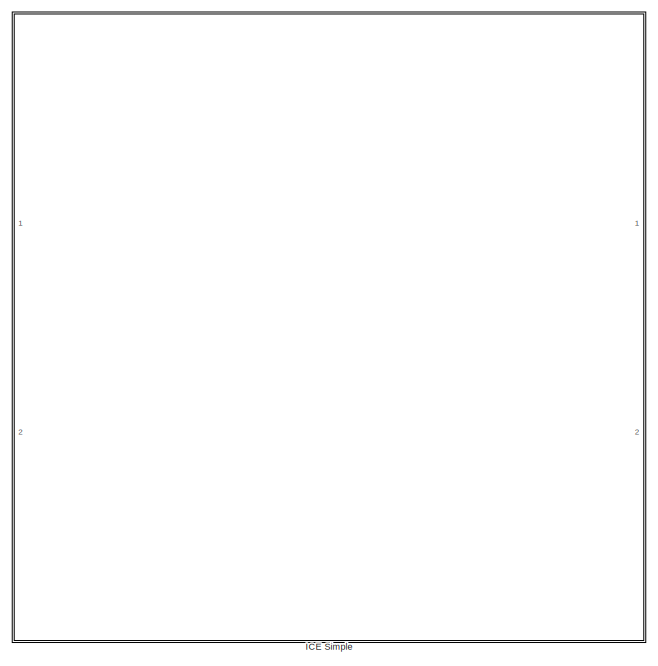
[diagram: root canvas - part 1/4, top right region]
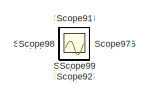
[diagram: root canvas - part 2/4, middle left region]
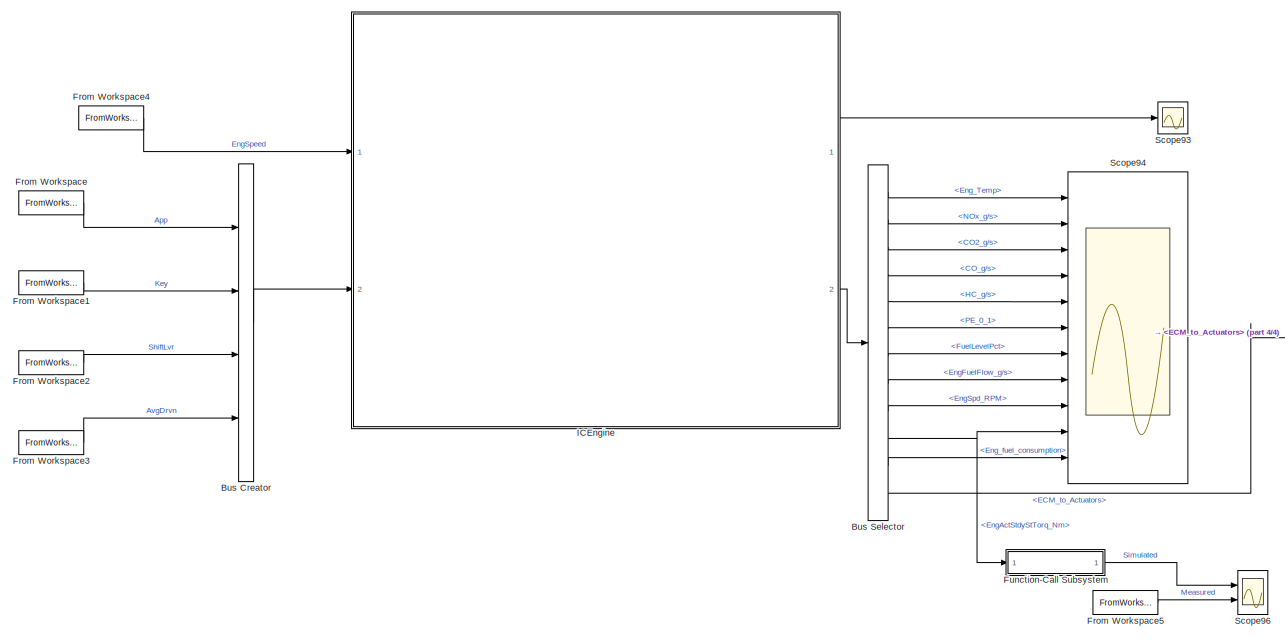
[diagram: root canvas - part 3/4, bottom center region]
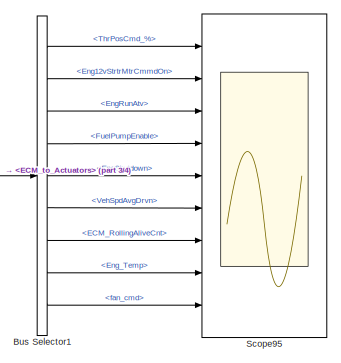
[diagram: root canvas - part 4/4, bottom right region]
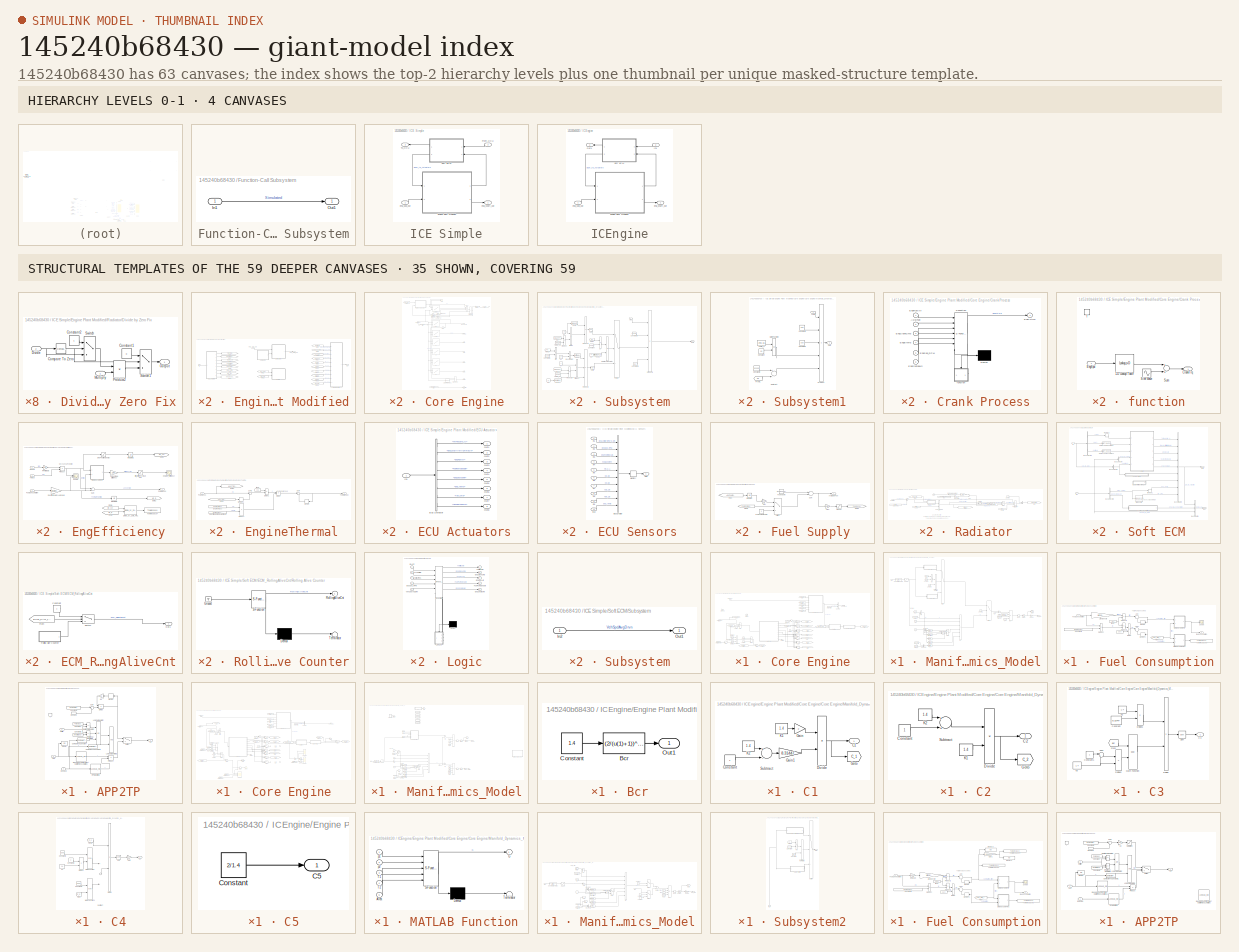
[diagram: thumbnail index - top-2 hierarchy levels (4 canvases) + 35 structural-template representatives of the remaining 59 canvases]
MODEL slx_145240b68430
KIND model
CONFIG AbsTol = auto
CONFIG EnableMultiTasking = on
CONFIG FixedStep = 0.001
CONFIG MaxStep = auto
CONFIG MinStep = auto
CONFIG PostLoadFcn = , if any(exist('dsrtsu_mdlpostloadfcn', 'file') == [2, 3, 6]), try dsrtsu_mdlpostloadfcn('Execute', bdroot); catch fprintf('Error in PostLoadFcn (dsrtsu_mdlpostloadfcn) for model "%s":\n %s\n', bdroot, lasterr); end, end, \n
CONFIG RelTol = 1e-3
CONFIG SampleTimeConstraint = Unconstrained
CONFIG Solver = ode1
CONFIG SolverName = ode1
CONFIG StartTime = 0.0
CONFIG StopTime = Cycle_End
BLOCK [BusCreator] Bus Creator
  DisplayOption = bar
  InheritFromInputs = on
  Inputs = 4
  Ports = [4, 1]
BLOCK [BusSelector] Bus Selector
  OutputAsBus = off
  OutputSignals = Sensors_to_ECM.Eng_Temp,Sensors_to_ECM.NOx_g/s,Sensors_to_ECM.CO2_g/s,Sensors_to_ECM.CO_g/s,Sensors_to_ECM.HC_g/s,Sensors_to_ECM.PE_0_1,Sensors_to_ECM.FuelLevelPct,Sensors_to_ECM.EngFuelFlow_g/s,Sensors_to_ECM.EngSpd_RPM,Sensors_to_ECM.EngActStdyStTorq_Nm,Eng_fuel_consumption,ECM_to_Actuators
  Ports = [1, 12]
BLOCK [BusSelector] Bus Selector1
  OutputAsBus = off
  OutputSignals = ThrPosCmd_%,Eng12vStrtrMtrCmmdOn,EngRunAtv,FuelPumpEnable,EngShutdown,VehSpdAvgDrvn,ECM_RollingAliveCnt,Eng_Temp,fan_cmd
  Ports = [1, 9]
BLOCK [FromWorkspace] From Workspace
  SampleTime = 0
  VariableName = APP
  ZeroCross = on
BLOCK [FromWorkspace] From Workspace1
  SampleTime = 0
  VariableName = KeyPos
  ZeroCross = on
BLOCK [FromWorkspace] From Workspace2
  SampleTime = 0
  VariableName = ShiftLvrPos
  ZeroCross = on
BLOCK [FromWorkspace] From Workspace3
  SampleTime = 0
  VariableName = VehAvgDrvn
  ZeroCross = on
BLOCK [FromWorkspace] From Workspace4
  SampleTime = 0
  VariableName = EngSpeedData
  ZeroCross = on
BLOCK [FromWorkspace] From Workspace5
  SampleTime = 0
  VariableName = EngineTorq
  ZeroCross = on
BLOCK [SubSystem] Function-Call Subsystem
  Ports = [1, 1]
  RequestExecContextInheritance = off
  TreatAsAtomicUnit = on
  Variant = off
BLOCK [Inport] Function-Call Subsystem/In1
  IconDisplay = Port number
BLOCK [Outport] Function-Call Subsystem/Out1
  IconDisplay = Port number
BLOCK [SubSystem] ICE Simple
  AncestorBlock = Engine_simple/ICE Simple
  Commented = on
  Ports = [2, 2]
  RequestExecContextInheritance = off
  Variant = off
BLOCK [SubSystem] ICE Simple/Engine Plant Modified
  Ports = [2, 2]
  RequestExecContextInheritance = off
  Variant = off
BLOCK [SubSystem] ICE Simple/Engine Plant Modified/Core Engine
  Ports = [2, 1]
  RequestExecContextInheritance = off
  Variant = off
BLOCK [Sum] ICE Simple/Engine Plant Modified/Core Engine/Add
  InputSameDT = off
  Inputs = +-
  OutDataTypeStr = Inherit: Inherit via internal rule
  Ports = [2, 1]
  SaturateOnIntegerOverflow = off
BLOCK [Inport] ICE Simple/Engine Plant Modified/Core Engine/Available Fuel
  IconDisplay = Port number
  Port = 2
BLOCK [BusCreator] ICE Simple/Engine Plant Modified/Core Engine/Bus Creator
  DisplayOption = bar
  InheritFromInputs = on
  Inputs = 2
  Ports = [2, 1]
BLOCK [Reference] ICE Simple/Engine Plant Modified/Core Engine/Compare To Constant  REF=simulink/Logic and Bit
Operations/Compare
To Constant
  Ports = [1, 1]
  SourceBlock = simulink/Logic and Bit\nOperations/Compare\nTo Constant
  SourceProductBaseCode = SL
  SourceProductName = Simulink
  SourceType = Compare To Constant
BLOCK [Reference] ICE Simple/Engine Plant Modified/Core Engine/Compare To Constant1  REF=simulink/Logic and Bit
Operations/Compare
To Constant
  Ports = [1, 1]
  SourceBlock = simulink/Logic and Bit\nOperations/Compare\nTo Constant
  SourceProductBaseCode = SL
  SourceProductName = Simulink
  SourceType = Compare To Constant
BLOCK [Reference] ICE Simple/Engine Plant Modified/Core Engine/Compare To Constant2  REF=simulink/Logic and Bit
Operations/Compare
To Constant
  Ports = [1, 1]
  SourceBlock = simulink/Logic and Bit\nOperations/Compare\nTo Constant
  SourceProductBaseCode = SL
  SourceProductName = Simulink
  SourceType = Compare To Constant
BLOCK [Constant] ICE Simple/Engine Plant Modified/Core Engine/Constant
  Value = 0
BLOCK [Constant] ICE Simple/Engine Plant Modified/Core Engine/Constant1
  Value = 6
BLOCK [Constant] ICE Simple/Engine Plant Modified/Core Engine/Constant2
  Value = 11.5
BLOCK [SubSystem] ICE Simple/Engine Plant Modified/Core Engine/Core Engine
  Ports = [1, 8]
  RequestExecContextInheritance = off
  Variant = off
BLOCK [Outport] ICE Simple/Engine Plant Modified/Core Engine/Core Engine/Brake Torque (Nm)
  IconDisplay = Port number
BLOCK [Lookup2D] ICE Simple/Engine Plant Modified/Core Engine/Core Engine/CO
  ColumnIndex = Engine.Engine.Emissions.TQ
  InputSameDT = off
  LookUpMeth = Interpolation-Use End Values
  RowIndex = Engine.Engine.Emissions.SPEED
  SaturateOnIntegerOverflow = off
  Table = Engine.Engine.Emissions.CO/1000
BLOCK [Outport] ICE Simple/Engine Plant Modified/Core Engine/Core Engine/CO (g//s)
  IconDisplay = Port number
  Port = 5
BLOCK [Lookup2D] ICE Simple/Engine Plant Modified/Core Engine/Core Engine/CO2
  ColumnIndex = Engine.Engine.Emissions.TQ
  InputSameDT = off
  LookUpMeth = Interpolation-Use End Values
  RowIndex = Engine.Engine.Emissions.SPEED
  SaturateOnIntegerOverflow = off
  Table = Engine.Engine.Emissions.CO2/1000
BLOCK [Outport] ICE Simple/Engine Plant Modified/Core Engine/Core Engine/CO2 (g//s)
  IconDisplay = Port number
  Port = 7
BLOCK [Inport] ICE Simple/Engine Plant Modified/Core Engine/Core Engine/Engine Speed (RPM)
  IconDisplay = Port number
BLOCK [From] ICE Simple/Engine Plant Modified/Core Engine/Core Engine/From
  GotoTag = INTAKEPORTFLOW
BLOCK [From] ICE Simple/Engine Plant Modified/Core Engine/Core Engine/From1
  GotoTag = INTAKEPORTFLOW
BLOCK [From] ICE Simple/Engine Plant Modified/Core Engine/Core Engine/From9
  GotoTag = ThrPosCmd_int
  TagVisibility = global
BLOCK [Lookup2D] ICE Simple/Engine Plant Modified/Core Engine/Core Engine/Fuel Flow
  ColumnIndex = Engine.Engine.FuelFlow.TQ
  InputSameDT = off
  LookUpMeth = Interpolation-Use End Values
  RowIndex = Engine.Engine.FuelFlow.SPEED
  SaturateOnIntegerOverflow = off
  Table = Engine.Engine.FuelFlow.FuelFlow
BLOCK [Outport] ICE Simple/Engine Plant Modified/Core Engine/Core Engine/Fuel Flow (g//s)
  IconDisplay = Port number
  Port = 2
BLOCK [Goto] ICE Simple/Engine Plant Modified/Core Engine/Core Engine/Goto1
  GotoTag = INTAKEPORTFLOW
BLOCK [Lookup2D] ICE Simple/Engine Plant Modified/Core Engine/Core Engine/HC
  ColumnIndex = Engine.Engine.Emissions.TQ
  InputSameDT = off
  LookUpMeth = Interpolation-Use End Values
  RowIndex = Engine.Engine.Emissions.SPEED
  SaturateOnIntegerOverflow = off
  Table = Engine.Engine.Emissions.HC/1000
BLOCK [Outport] ICE Simple/Engine Plant Modified/Core Engine/Core Engine/HC (g//s)
  IconDisplay = Port number
  Port = 4
BLOCK [Gain] ICE Simple/Engine Plant Modified/Core Engine/Core Engine/Half of Displacement
  Gain = Engine.DisplacedVolume/(2*1000)
  OutDataTypeStr = Inherit: Inherit via internal rule
  ParamDataTypeStr = Inherit: Inherit via internal rule
  SaturateOnIntegerOverflow = off
BLOCK [Gain] ICE Simple/Engine Plant Modified/Core Engine/Core Engine/Ideal Gas Constant R
  Gain = 0.287
  OutDataTypeStr = Inherit: Inherit via internal rule
  ParamDataTypeStr = Inherit: Inherit via internal rule
  SaturateOnIntegerOverflow = off
BLOCK [Outport] ICE Simple/Engine Plant Modified/Core Engine/Core Engine/Intake Port Airflow (g//s)
  IconDisplay = Port number
  Port = 8
BLOCK [Gain] ICE Simple/Engine Plant Modified/Core Engine/Core Engine/Kg//s to g//s
  Gain = 1000
  OutDataTypeStr = Inherit: Inherit via internal rule
  ParamDataTypeStr = Inherit: Inherit via internal rule
  SaturateOnIntegerOverflow = off
BLOCK [SubSystem] ICE Simple/Engine Plant Modified/Core Engine/Core Engine/Manifold_Dynamics_Model
  Ports = [2, 1]
  RequestExecContextInheritance = off
  Variant = off
BLOCK [Fcn] ICE Simple/Engine Plant Modified/Core Engine/Core Engine/Manifold_Dynamics_Model/(2//(k+1))^(k//(k-1))
  Expr = (2/(u(1)+1))^(u(1)/(u(1)-1))
BLOCK [BusCreator] ICE Simple/Engine Plant Modified/Core Engine/Core Engine/Manifold_Dynamics_Model/Bus Creator
  DisplayOption = bar
  InheritFromInputs = on
  Inputs = 2
  Ports = [2, 1]
BLOCK [BusCreator] ICE Simple/Engine Plant Modified/Core Engine/Core Engine/Manifold_Dynamics_Model/Bus Creator1
  DisplayOption = bar
  InheritFromInputs = on
  Inputs = 2
  Ports = [2, 1]
BLOCK [Lookup] ICE Simple/Engine Plant Modified/Core Engine/Core Engine/Manifold_Dynamics_Model/CA vs TP
  InputValues = Engine.Throttle.CA.TPP
  LookUpMeth = Interpolation-Use End Values
  SaturateOnIntegerOverflow = off
  Table = Engine.Throttle.CA.CA
BLOCK [Constant] ICE Simple/Engine Plant Modified/Core Engine/Core Engine/Manifold_Dynamics_Model/Cd
  Value = 0.82
BLOCK [Constant] ICE Simple/Engine Plant Modified/Core Engine/Core Engine/Manifold_Dynamics_Model/Constant
  Value = 8.31447
BLOCK [Constant] ICE Simple/Engine Plant Modified/Core Engine/Core Engine/Manifold_Dynamics_Model/Constant1
  Value = 0
BLOCK [Constant] ICE Simple/Engine Plant Modified/Core Engine/Core Engine/Manifold_Dynamics_Model/Constant4
  Value = 101325
BLOCK [Constant] ICE Simple/Engine Plant Modified/Core Engine/Core Engine/Manifold_Dynamics_Model/Constant5
  Value = 0.99
BLOCK [TransferFcn] ICE Simple/Engine Plant Modified/Core Engine/Core Engine/Manifold_Dynamics_Model/ETC Actuator Dynamics
  Denominator = [0.1 1]
BLOCK [Fcn] ICE Simple/Engine Plant Modified/Core Engine/Core Engine/Manifold_Dynamics_Model/Fcn1
  Expr = (u(2)^(2/u(1)))-(u(2)^((u(1)+1)/u(1)))
BLOCK [Fcn] ICE Simple/Engine Plant Modified/Core Engine/Core Engine/Manifold_Dynamics_Model/Fcn2
  Expr = (((u(1)-1)/(2*u(1)))*(2/(u(1)+1))^((u(1)+1)/(u(1)-1)))
BLOCK [Fcn] ICE Simple/Engine Plant Modified/Core Engine/Core Engine/Manifold_Dynamics_Model/Fcn3
  Expr = ((u(1))*(u(2)))^0.5
BLOCK [Fcn] ICE Simple/Engine Plant Modified/Core Engine/Core Engine/Manifold_Dynamics_Model/Fcn4
  Expr = sqrt(2*u(1)/(u(1)-1))
BLOCK [From] ICE Simple/Engine Plant Modified/Core Engine/Core Engine/Manifold_Dynamics_Model/From2
  GotoTag = P0
BLOCK [From] ICE Simple/Engine Plant Modified/Core Engine/Core Engine/Manifold_Dynamics_Model/From3
  GotoTag = P0
BLOCK [Goto] ICE Simple/Engine Plant Modified/Core Engine/Core Engine/Manifold_Dynamics_Model/Goto2
  GotoTag = P0
BLOCK [Inport] ICE Simple/Engine Plant Modified/Core Engine/Core Engine/Manifold_Dynamics_Model/In1
  IconDisplay = Port number
BLOCK [Inport] ICE Simple/Engine Plant Modified/Core Engine/Core Engine/Manifold_Dynamics_Model/In2
  IconDisplay = Port number
  Port = 2
BLOCK [Integrator] ICE Simple/Engine Plant Modified/Core Engine/Core Engine/Manifold_Dynamics_Model/Integrator
  InitialCondition = 101325
  Ports = [1, 1]
BLOCK [Constant] ICE Simple/Engine Plant Modified/Core Engine/Core Engine/Manifold_Dynamics_Model/K
  Value = 1.4
BLOCK [Product] ICE Simple/Engine Plant Modified/Core Engine/Core Engine/Manifold_Dynamics_Model/MAP'
  InputSameDT = off
  Inputs = ***/
  OutDataTypeStr = Inherit: Inherit via internal rule
  Ports = [4, 1]
  RndMeth = Floor
  SaturateOnIntegerOverflow = off
BLOCK [Outport] ICE Simple/Engine Plant Modified/Core Engine/Core Engine/Manifold_Dynamics_Model/MAP_kg//s
  IconDisplay = Port number
BLOCK [Product] ICE Simple/Engine Plant Modified/Core Engine/Core Engine/Manifold_Dynamics_Model/Mat
  InputSameDT = off
  Inputs = *****/
  OutDataTypeStr = Inherit: Inherit via internal rule
  Ports = [6, 1]
  RndMeth = Floor
  SaturateOnIntegerOverflow = off
BLOCK [Memory] ICE Simple/Engine Plant Modified/Core Engine/Core Engine/Manifold_Dynamics_Model/Memory
BLOCK [Constant] ICE Simple/Engine Plant Modified/Core Engine/Core Engine/Manifold_Dynamics_Model/Pamb
  Value = 101325
BLOCK [Product] ICE Simple/Engine Plant Modified/Core Engine/Core Engine/Manifold_Dynamics_Model/Pr
  InputSameDT = off
  Inputs = */
  OutDataTypeStr = Inherit: Inherit via internal rule
  Ports = [2, 1]
  RndMeth = Floor
  SaturateOnIntegerOverflow = off
BLOCK [Product] ICE Simple/Engine Plant Modified/Core Engine/Core Engine/Manifold_Dynamics_Model/Pr2
  InputSameDT = off
  Inputs = */
  OutDataTypeStr = Inherit: Inherit via internal rule
  Ports = [2, 1]
  RndMeth = Floor
  SaturateOnIntegerOverflow = off
BLOCK [Constant] ICE Simple/Engine Plant Modified/Core Engine/Core Engine/Manifold_Dynamics_Model/R
  Value = 8.31447
BLOCK [RelationalOperator] ICE Simple/Engine Plant Modified/Core Engine/Core Engine/Manifold_Dynamics_Model/Relational Operator
  InputSameDT = off
  OutDataTypeStr = boolean
  Ports = [2, 1]
  ZeroCross = off
BLOCK [RelationalOperator] ICE Simple/Engine Plant Modified/Core Engine/Core Engine/Manifold_Dynamics_Model/Relational Operator1
  InputSameDT = off
  OutDataTypeStr = boolean
  Ports = [2, 1]
  ZeroCross = off
BLOCK [SubSystem] ICE Simple/Engine Plant Modified/Core Engine/Core Engine/Manifold_Dynamics_Model/Subsystem
  Ports = [1, 1]
  RequestExecContextInheritance = off
  Variant = off
BLOCK [Inport] ICE Simple/Engine Plant Modified/Core Engine/Core Engine/Manifold_Dynamics_Model/Subsystem/Area
  IconDisplay = Port number
BLOCK [BusCreator] ICE Simple/Engine Plant Modified/Core Engine/Core Engine/Manifold_Dynamics_Model/Subsystem/Bus Creator
  DisplayOption = bar
  InheritFromInputs = on
  Inputs = 2
  Ports = [2, 1]
BLOCK [Constant] ICE Simple/Engine Plant Modified/Core Engine/Core Engine/Manifold_Dynamics_Model/Subsystem/Constant
  Value = 101325
BLOCK [Constant] ICE Simple/Engine Plant Modified/Core Engine/Core Engine/Manifold_Dynamics_Model/Subsystem/Constant1
  Value = 101325
BLOCK [Constant] ICE Simple/Engine Plant Modified/Core Engine/Core Engine/Manifold_Dynamics_Model/Subsystem/Constant2
  Value = 101325
BLOCK [Constant] ICE Simple/Engine Plant Modified/Core Engine/Core Engine/Manifold_Dynamics_Model/Subsystem/Constant3
  Value = 0.82
BLOCK [Product] ICE Simple/Engine Plant Modified/Core Engine/Core Engine/Manifold_Dynamics_Model/Subsystem/Divide
  InputSameDT = off
  Inputs = */
  OutDataTypeStr = Inherit: Inherit via internal rule
  Ports = [2, 1]
  RndMeth = Floor
  SaturateOnIntegerOverflow = off
BLOCK [Product] ICE Simple/Engine Plant Modified/Core Engine/Core Engine/Manifold_Dynamics_Model/Subsystem/Divide1
  InputSameDT = off
  Inputs = */
  OutDataTypeStr = Inherit: Inherit via internal rule
  Ports = [2, 1]
  RndMeth = Floor
  SaturateOnIntegerOverflow = off
BLOCK [Fcn] ICE Simple/Engine Plant Modified/Core Engine/Core Engine/Manifold_Dynamics_Model/Subsystem/Fcn1
  Expr = (2/(u(1)+1))^(u(1)/(u(1)-1))
BLOCK [Fcn] ICE Simple/Engine Plant Modified/Core Engine/Core Engine/Manifold_Dynamics_Model/Subsystem/Fcn2
  Expr = (u(2)^(2/u(1)))-(u(2)^((u(1)+1)/u(1)))
BLOCK [Fcn] ICE Simple/Engine Plant Modified/Core Engine/Core Engine/Manifold_Dynamics_Model/Subsystem/Fcn3
  Expr = (2/(u(1)+1))^((u(1)+1)/(u(1)-1))
BLOCK [Fcn] ICE Simple/Engine Plant Modified/Core Engine/Core Engine/Manifold_Dynamics_Model/Subsystem/Fcn4
  Expr = (2*u(1)/(u(1)-1))
BLOCK [From] ICE Simple/Engine Plant Modified/Core Engine/Core Engine/Manifold_Dynamics_Model/Subsystem/From1
  GotoTag = P0
BLOCK [From] ICE Simple/Engine Plant Modified/Core Engine/Core Engine/Manifold_Dynamics_Model/Subsystem/From2
  GotoTag = P0
BLOCK [Constant] ICE Simple/Engine Plant Modified/Core Engine/Core Engine/Manifold_Dynamics_Model/Subsystem/K1
  Value = 1.4
BLOCK [Constant] ICE Simple/Engine Plant Modified/Core Engine/Core Engine/Manifold_Dynamics_Model/Subsystem/K2
  Value = 1.4
BLOCK [Constant] ICE Simple/Engine Plant Modified/Core Engine/Core Engine/Manifold_Dynamics_Model/Subsystem/K3
  Value = 1.4
BLOCK [Constant] ICE Simple/Engine Plant Modified/Core Engine/Core Engine/Manifold_Dynamics_Model/Subsystem/K4
BLOCK [Constant] ICE Simple/Engine Plant Modified/Core Engine/Core Engine/Manifold_Dynamics_Model/Subsystem/K5
  Value = 1.4
BLOCK [Outport] ICE Simple/Engine Plant Modified/Core Engine/Core Engine/Manifold_Dynamics_Model/Subsystem/Out1
  IconDisplay = Port number
BLOCK [Product] ICE Simple/Engine Plant Modified/Core Engine/Core Engine/Manifold_Dynamics_Model/Subsystem/Pr
  InputSameDT = off
  Inputs = */
  OutDataTypeStr = Inherit: Inherit via internal rule
  Ports = [2, 1]
  RndMeth = Floor
  SaturateOnIntegerOverflow = off
BLOCK [Product] ICE Simple/Engine Plant Modified/Core Engine/Core Engine/Manifold_Dynamics_Model/Subsystem/Pr1
  InputSameDT = off
  Inputs = */
  OutDataTypeStr = Inherit: Inherit via internal rule
  Ports = [2, 1]
  RndMeth = Floor
  SaturateOnIntegerOverflow = off
BLOCK [Product] ICE Simple/Engine Plant Modified/Core Engine/Core Engine/Manifold_Dynamics_Model/Subsystem/Product
  InputSameDT = off
  OutDataTypeStr = Inherit: Inherit via internal rule
  Ports = [2, 1]
  RndMeth = Floor
  SaturateOnIntegerOverflow = off
BLOCK [Product] ICE Simple/Engine Plant Modified/Core Engine/Core Engine/Manifold_Dynamics_Model/Subsystem/Product1
  InputSameDT = off
  OutDataTypeStr = Inherit: Inherit via internal rule
  Ports = [2, 1]
  RndMeth = Floor
  SaturateOnIntegerOverflow = off
BLOCK [Product] ICE Simple/Engine Plant Modified/Core Engine/Core Engine/Manifold_Dynamics_Model/Subsystem/Product2
  InputSameDT = off
  OutDataTypeStr = Inherit: Inherit via internal rule
  Ports = [2, 1]
  RndMeth = Floor
  SaturateOnIntegerOverflow = off
BLOCK [Product] ICE Simple/Engine Plant Modified/Core Engine/Core Engine/Manifold_Dynamics_Model/Subsystem/Product3
  InputSameDT = off
  Inputs = 3
  OutDataTypeStr = Inherit: Inherit via internal rule
  Ports = [3, 1]
  RndMeth = Floor
  SaturateOnIntegerOverflow = off
BLOCK [Product] ICE Simple/Engine Plant Modified/Core Engine/Core Engine/Manifold_Dynamics_Model/Subsystem/Product4
  InputSameDT = off
  Inputs = 4
  OutDataTypeStr = Inherit: Inherit via internal rule
  Ports = [4, 1]
  RndMeth = Floor
  SaturateOnIntegerOverflow = off
BLOCK [Constant] ICE Simple/Engine Plant Modified/Core Engine/Core Engine/Manifold_Dynamics_Model/Subsystem/R1
  Value = 8.31447
BLOCK [Constant] ICE Simple/Engine Plant Modified/Core Engine/Core Engine/Manifold_Dynamics_Model/Subsystem/R2
  Value = 8.31447
BLOCK [RelationalOperator] ICE Simple/Engine Plant Modified/Core Engine/Core Engine/Manifold_Dynamics_Model/Subsystem/Relational Operator
  InputSameDT = off
  OutDataTypeStr = boolean
  Ports = [2, 1]
  ZeroCross = off
BLOCK [Sqrt] ICE Simple/Engine Plant Modified/Core Engine/Core Engine/Manifold_Dynamics_Model/Subsystem/Sqrt
BLOCK [Sqrt] ICE Simple/Engine Plant Modified/Core Engine/Core Engine/Manifold_Dynamics_Model/Subsystem/Sqrt1
BLOCK [Constant] ICE Simple/Engine Plant Modified/Core Engine/Core Engine/Manifold_Dynamics_Model/Subsystem/Tamb_K1
  Value = 293.15
BLOCK [Constant] ICE Simple/Engine Plant Modified/Core Engine/Core Engine/Manifold_Dynamics_Model/Subsystem/Tamb_K2
  Value = 293.15
BLOCK [Switch] ICE Simple/Engine Plant Modified/Core Engine/Core Engine/Manifold_Dynamics_Model/Subsystem/beta2
  Criteria = u2 > Threshold
  InputSameDT = off
  SaturateOnIntegerOverflow = off
BLOCK [SubSystem] ICE Simple/Engine Plant Modified/Core Engine/Core Engine/Manifold_Dynamics_Model/Subsystem1
  Ports = [1, 1]
  RequestExecContextInheritance = off
  Variant = off
BLOCK [Inport] ICE Simple/Engine Plant Modified/Core Engine/Core Engine/Manifold_Dynamics_Model/Subsystem1/Area
  IconDisplay = Port number
BLOCK [Constant] ICE Simple/Engine Plant Modified/Core Engine/Core Engine/Manifold_Dynamics_Model/Subsystem1/Constant
  Value = -0.5
BLOCK [Constant] ICE Simple/Engine Plant Modified/Core Engine/Core Engine/Manifold_Dynamics_Model/Subsystem1/Constant1
  Value = 0.99
BLOCK [Constant] ICE Simple/Engine Plant Modified/Core Engine/Core Engine/Manifold_Dynamics_Model/Subsystem1/Constant2
  Value = 101325
BLOCK [Constant] ICE Simple/Engine Plant Modified/Core Engine/Core Engine/Manifold_Dynamics_Model/Subsystem1/Constant3
  Value = 0.82
BLOCK [From] ICE Simple/Engine Plant Modified/Core Engine/Core Engine/Manifold_Dynamics_Model/Subsystem1/From1
  GotoTag = P0
BLOCK [Math] ICE Simple/Engine Plant Modified/Core Engine/Core Engine/Manifold_Dynamics_Model/Subsystem1/Math Function
  Operator = pow
  Ports = [2, 1]
BLOCK [Outport] ICE Simple/Engine Plant Modified/Core Engine/Core Engine/Manifold_Dynamics_Model/Subsystem1/Out1
  IconDisplay = Port number
BLOCK [Product] ICE Simple/Engine Plant Modified/Core Engine/Core Engine/Manifold_Dynamics_Model/Subsystem1/Product
  InputSameDT = off
  Inputs = 5
  OutDataTypeStr = Inherit: Inherit via internal rule
  Ports = [5, 1]
  RndMeth = Floor
  SaturateOnIntegerOverflow = off
BLOCK [Sum] ICE Simple/Engine Plant Modified/Core Engine/Core Engine/Manifold_Dynamics_Model/Subsystem1/Subtract
  InputSameDT = off
  Inputs = +-
  OutDataTypeStr = Inherit: Inherit via internal rule
  Ports = [2, 1]
  SaturateOnIntegerOverflow = off
BLOCK [Constant] ICE Simple/Engine Plant Modified/Core Engine/Core Engine/Manifold_Dynamics_Model/Subsystem1/Tamb_K
  Value = 293.15
BLOCK [Switch] ICE Simple/Engine Plant Modified/Core Engine/Core Engine/Manifold_Dynamics_Model/Switch
  Criteria = u2 > Threshold
  InputSameDT = off
  SaturateOnIntegerOverflow = off
BLOCK [Switch] ICE Simple/Engine Plant Modified/Core Engine/Core Engine/Manifold_Dynamics_Model/Switch1
  Criteria = u2 > Threshold
  InputSameDT = off
  SaturateOnIntegerOverflow = off
BLOCK [Constant] ICE Simple/Engine Plant Modified/Core Engine/Core Engine/Manifold_Dynamics_Model/Tamb_K
  Value = 293.15
BLOCK [Constant] ICE Simple/Engine Plant Modified/Core Engine/Core Engine/Manifold_Dynamics_Model/Tamb_K1
  Value = 293.15
BLOCK [Constant] ICE Simple/Engine Plant Modified/Core Engine/Core Engine/Manifold_Dynamics_Model/Vi_m3
  Value = 0.001
BLOCK [Switch] ICE Simple/Engine Plant Modified/Core Engine/Core Engine/Manifold_Dynamics_Model/beta2
  Criteria = u2 > Threshold
  InputSameDT = off
  SaturateOnIntegerOverflow = off
BLOCK [Gain] ICE Simple/Engine Plant Modified/Core Engine/Core Engine/Manifold_Dynamics_Model/g//s to kg//s
  Gain = 1/1000
  OutDataTypeStr = Inherit: Inherit via internal rule
  ParamDataTypeStr = Inherit: Inherit via internal rule
  SaturateOnIntegerOverflow = off
BLOCK [Sum] ICE Simple/Engine Plant Modified/Core Engine/Core Engine/Manifold_Dynamics_Model/mat-map
  InputSameDT = off
  Inputs = +-
  OutDataTypeStr = Inherit: Inherit via internal rule
  Ports = [2, 1]
  SaturateOnIntegerOverflow = off
BLOCK [Memory] ICE Simple/Engine Plant Modified/Core Engine/Core Engine/Memory
BLOCK [Lookup2D] ICE Simple/Engine Plant Modified/Core Engine/Core Engine/NOx
  ColumnIndex = Engine.Engine.Emissions.TQ
  InputSameDT = off
  LookUpMeth = Interpolation-Use End Values
  RowIndex = Engine.Engine.Emissions.SPEED
  SaturateOnIntegerOverflow = off
  Table = Engine.Engine.Emissions.NOx/1000
BLOCK [Outport] ICE Simple/Engine Plant Modified/Core Engine/Core Engine/NOx (g//s)
  IconDisplay = Port number
  Port = 6
BLOCK [Outport] ICE Simple/Engine Plant Modified/Core Engine/Core Engine/PE Status
  IconDisplay = Port number
  Port = 3
BLOCK [Lookup_n-D] ICE Simple/Engine Plant Modified/Core Engine/Core Engine/Power Enrichment Torque Boundary vs Speed
  BreakpointsForDimension1 = Engine.Engine.PEBound.SPEED
  ExtrapMethod = Clip
  InternalRulePriority = Speed
  NumberOfTableDimensions = 1
  Ports = [1, 1]
  RndMeth = Simplest
  Table = Engine.Engine.PEBound.PEBound
BLOCK [Product] ICE Simple/Engine Plant Modified/Core Engine/Core Engine/Product
  InputSameDT = off
  Inputs = ***
  OutDataTypeStr = Inherit: Inherit via internal rule
  Ports = [3, 1]
  RndMeth = Floor
  SaturateOnIntegerOverflow = off
BLOCK [Gain] ICE Simple/Engine Plant Modified/Core Engine/Core Engine/RPM to RPS
  Gain = 1/60
  OutDataTypeStr = Inherit: Inherit via internal rule
  ParamDataTypeStr = Inherit: Inherit via internal rule
  SaturateOnIntegerOverflow = off
BLOCK [RelationalOperator] ICE Simple/Engine Plant Modified/Core Engine/Core Engine/Relational Operator
  InputSameDT = off
  Operator = >
  OutDataTypeStr = boolean
  Ports = [2, 1]
  ZeroCross = off
BLOCK [Scope] ICE Simple/Engine Plant Modified/Core Engine/Core Engine/Scope
  NumInputPorts = 2
  Ports = [2]
  ScopeSpecificationString = Simulink.scopes.TimeScopeBlockCfg('CurrentConfiguration', extmgr.ConfigurationSet(extmgr.Configuration('Core','General UI',true),extmgr.Configuration('Core','Source UI',true),extmgr.Configuration('Sources','WiredSimulink',true,'DataLoggingVariableName','ScopeData1'),extmgr.Configuration('Visuals','Time Domain',true,'SerializedDisplays',{struct('MinYLimReal','-8561250.01399','MaxYLimReal','77051250...<+1485ch>
BLOCK [Product] ICE Simple/Engine Plant Modified/Core Engine/Core Engine/Speed-Density Mass Flow
  InputSameDT = off
  Inputs = */
  OutDataTypeStr = Inherit: Inherit via internal rule
  Ports = [2, 1]
  RndMeth = Floor
  SaturateOnIntegerOverflow = off
BLOCK [Constant] ICE Simple/Engine Plant Modified/Core Engine/Core Engine/Tamb_K
  Value = 293.15
BLOCK [Lookup2D] ICE Simple/Engine Plant Modified/Core Engine/Core Engine/Torque
  ColumnIndex = Engine.Engine.TQ.MAF
  InputSameDT = off
  LookUpMeth = Interpolation-Use End Values
  RowIndex = Engine.Engine.TQ.SPEED
  SaturateOnIntegerOverflow = off
  Table = Engine.Engine.TQ.TQ
BLOCK [Lookup2D] ICE Simple/Engine Plant Modified/Core Engine/Core Engine/Volumetric Efficiency
  ColumnIndex = Engine.Engine.VE.SPEED
  InputSameDT = off
  LookUpMeth = Interpolation-Use End Values
  RowIndex = Engine.Engine.VE.MAP
  SaturateOnIntegerOverflow = off
  Table = Engine.Engine.VE.VE
BLOCK [SubSystem] ICE Simple/Engine Plant Modified/Core Engine/Crank Process
  ErrorFcn = Stateflow.Translate.translate
  PermitHierarchicalResolution = ExplicitOnly
  Ports = [6, 1]
  RequestExecContextInheritance = off
  SFBlockType = Chart
  TreatAsAtomicUnit = on
  Variant = off
BLOCK [Demux] ICE Simple/Engine Plant Modified/Core Engine/Crank Process/ Demux 
  Outputs = 1
  Ports = [1, 1]
BLOCK [S-Function] ICE Simple/Engine Plant Modified/Core Engine/Crank Process/ SFunction 
  EnableBusSupport = on
  FunctionName = sf_sfun
  PortCounts = [7 3]
  Ports = [7, 3]
  SFcnIsStateOwnerBlock = off
  SFunctionDeploymentMode = off
  Tag = Stateflow S-Function Engine_TestBench1 9
BLOCK [Inport] ICE Simple/Engine Plant Modified/Core Engine/Crank Process/AvlblFuel
  IconDisplay = Port number
  Port = 2
BLOCK [Outport] ICE Simple/Engine Plant Modified/Core Engine/Crank Process/EngActTrq
  IconDisplay = Port number
BLOCK [Inport] ICE Simple/Engine Plant Modified/Core Engine/Crank Process/EngBrkTrq
  IconDisplay = Port number
  Port = 4
BLOCK [Inport] ICE Simple/Engine Plant Modified/Core Engine/Crank Process/EngCrankCmd
  IconDisplay = Port number
  Port = 3
BLOCK [Inport] ICE Simple/Engine Plant Modified/Core Engine/Crank Process/EngRunAtv
  IconDisplay = Port number
BLOCK [Inport] ICE Simple/Engine Plant Modified/Core Engine/Crank Process/EngShutdown
  IconDisplay = Port number
  Port = 6
BLOCK [Inport] ICE Simple/Engine Plant Modified/Core Engine/Crank Process/EngSpd_RPM
  IconDisplay = Port number
  Port = 5
BLOCK [SubSystem] ICE Simple/Engine Plant Modified/Core Engine/Crank Process/function
  Ports = [1, 1, 0, 1]
  PreDeleteFcn = Stateflow.SLINSF.SimulinkMan.removePreDeleteFcn
  RequestExecContextInheritance = off
  UndoDeleteFcn = Stateflow.SLINSF.SimulinkMan.restorePreDeleteFcn
  Variant = off
BLOCK [Lookup_n-D] ICE Simple/Engine Plant Modified/Core Engine/Crank Process/function/1-D Lookup Table
  BreakpointsForDimension1 = [0 50 120 210 300 320 340 350 400]
  InternalRulePriority = Speed
  NumberOfTableDimensions = 1
  Ports = [1, 1]
  RndMeth = Simplest
  Table = [90 90 90 90 90 90 90 90 90]
BLOCK [Outport] ICE Simple/Engine Plant Modified/Core Engine/Crank Process/function/CrankTrq
  IconDisplay = Port number
BLOCK [Inport] ICE Simple/Engine Plant Modified/Core Engine/Crank Process/function/EngSpd
  IconDisplay = Port number
BLOCK [Sin] ICE Simple/Engine Plant Modified/Core Engine/Crank Process/function/Sine Wave
  Amplitude = 20
  Frequency = 41.88
  Ports = [0, 1]
BLOCK [Sum] ICE Simple/Engine Plant Modified/Core Engine/Crank Process/function/Sum
  InputSameDT = off
  OutDataTypeStr = Inherit: Inherit via internal rule
  Ports = [2, 1]
  SaturateOnIntegerOverflow = off
BLOCK [TriggerPort] ICE Simple/Engine Plant Modified/Core Engine/Crank Process/function/f
  CopyFcn = Stateflow.SLINSF.SimulinkMan.removeBlockPreDeleteFcn
  Ports = []
  PreDeleteFcn = Stateflow.SLINSF.SimulinkMan.unsafePredeleteFcn
  StatesWhenEnabling = held
  TriggerType = function-call
  VariantControl = Variant
BLOCK [SubSystem] ICE Simple/Engine Plant Modified/Core Engine/EngEfficiency
  Ports = [3, 1]
  RequestExecContextInheritance = off
  Variant = off
BLOCK [SubSystem] ICE Simple/Engine Plant Modified/Core Engine/EngEfficiency/Divide by Zero Fix
  Ports = [2, 1]
  RequestExecContextInheritance = off
  Variant = off
BLOCK [Reference] ICE Simple/Engine Plant Modified/Core Engine/EngEfficiency/Divide by Zero Fix/Compare To Zero  REF=simulink/Logic and Bit
Operations/Compare
To Zero
  Ports = [1, 1]
  SourceBlock = simulink/Logic and Bit\nOperations/Compare\nTo Zero
  SourceProductBaseCode = SL
  SourceProductName = Simulink
  SourceType = Compare To Zero
BLOCK [Constant] ICE Simple/Engine Plant Modified/Core Engine/EngEfficiency/Divide by Zero Fix/Constant1
  Value = 0
BLOCK [Constant] ICE Simple/Engine Plant Modified/Core Engine/EngEfficiency/Divide by Zero Fix/Constant2
BLOCK [Inport] ICE Simple/Engine Plant Modified/Core Engine/EngEfficiency/Divide by Zero Fix/Divide
  IconDisplay = Port number
  Port = 2
BLOCK [Inport] ICE Simple/Engine Plant Modified/Core Engine/EngEfficiency/Divide by Zero Fix/Multiply
  IconDisplay = Port number
BLOCK [Outport] ICE Simple/Engine Plant Modified/Core Engine/EngEfficiency/Divide by Zero Fix/Output
  IconDisplay = Port number
BLOCK [Product] ICE Simple/Engine Plant Modified/Core Engine/EngEfficiency/Divide by Zero Fix/Product2
  Inputs = /*
  Ports = [2, 1]
  RndMeth = Floor
BLOCK [Switch] ICE Simple/Engine Plant Modified/Core Engine/EngEfficiency/Divide by Zero Fix/Switch
  InputSameDT = off
  SaturateOnIntegerOverflow = off
  Threshold = 1
BLOCK [Switch] ICE Simple/Engine Plant Modified/Core Engine/EngEfficiency/Divide by Zero Fix/Switch1
  InputSameDT = off
  SaturateOnIntegerOverflow = off
  Threshold = 1
BLOCK [Reference] ICE Simple/Engine Plant Modified/Core Engine/EngEfficiency/Divide_by_Zero_Fix1  REF=EC2_libraries/Divide_by_Zero_Fix
  Commented = on
  Ports = [2, 1]
  SourceBlock = EC2_libraries/Divide_by_Zero_Fix
  SourceType = SubSystem
BLOCK [From] ICE Simple/Engine Plant Modified/Core Engine/EngEfficiency/From1
  Commented = on
  GotoTag = Wh_out
BLOCK [From] ICE Simple/Engine Plant Modified/Core Engine/EngEfficiency/From2
  Commented = on
  GotoTag = Wh_in
BLOCK [Inport] ICE Simple/Engine Plant Modified/Core Engine/EngEfficiency/Fuel Consumption
  IconDisplay = Port number
  Port = 3
BLOCK [Goto] ICE Simple/Engine Plant Modified/Core Engine/EngEfficiency/Goto1
  Commented = on
  GotoTag = Wh_out
BLOCK [Goto] ICE Simple/Engine Plant Modified/Core Engine/EngEfficiency/Goto2
  Commented = on
  GotoTag = Wh_in
BLOCK [Integrator] ICE Simple/Engine Plant Modified/Core Engine/EngEfficiency/Integrator1
  Commented = on
  LimitOutput = on
  LowerSaturationLimit = 0
  Ports = [1, 1]
BLOCK [Integrator] ICE Simple/Engine Plant Modified/Core Engine/EngEfficiency/Integrator2
  Commented = on
  LimitOutput = on
  LowerSaturationLimit = 0
  Ports = [1, 1]
BLOCK [Saturate] ICE Simple/Engine Plant Modified/Core Engine/EngEfficiency/OnlyPositiveEnergy
  Commented = on
  InputPortMap = u0
  LowerLimit = 0
  Ports = [1, 1]
  UpperLimit = inf
BLOCK [Gain] ICE Simple/Engine Plant Modified/Core Engine/EngEfficiency/Percentage Efficiency
  Gain = 100
  OutDataTypeStr = Inherit: Inherit via internal rule
  ParamDataTypeStr = Inherit: Inherit via internal rule
  SaturateOnIntegerOverflow = off
BLOCK [Outport] ICE Simple/Engine Plant Modified/Core Engine/EngEfficiency/PowerLoss
  IconDisplay = Port number
BLOCK [Product] ICE Simple/Engine Plant Modified/Core Engine/EngEfficiency/Product
  InputSameDT = off
  OutDataTypeStr = Inherit: Inherit via internal rule
  Ports = [2, 1]
  SaturateOnIntegerOverflow = off
BLOCK [Gain] ICE Simple/Engine Plant Modified/Core Engine/EngEfficiency/RPM to rad//s 
  Gain = pi/30
  OutDataTypeStr = Inherit: Inherit via internal rule
  ParamDataTypeStr = Inherit: Inherit via internal rule
  SaturateOnIntegerOverflow = off
BLOCK [Scope] ICE Simple/Engine Plant Modified/Core Engine/EngEfficiency/Scope
  NumInputPorts = 2
  Ports = [2]
  ScopeSpecificationString = Simulink.scopes.TimeScopeBlockCfg('CurrentConfiguration', extmgr.ConfigurationSet(extmgr.Configuration('Core','General UI',true),extmgr.Configuration('Core','Source UI',true),extmgr.Configuration('Sources','WiredSimulink',true,'DataLoggingLimitDataPoints',true,'DataLoggingSaveFormat','Array','DataLoggingDecimation','1','DataLoggingDecimateData',true),extmgr.Configuration('Visuals','Time Domain',tr...<+2273ch>
BLOCK [Gain] ICE Simple/Engine Plant Modified/Core Engine/EngEfficiency/Specific Energy LHV in J//kg
  Gain = Engine.Fuel.Lower_Heating_Value/1000
  OutDataTypeStr = Inherit: Inherit via internal rule
  ParamDataTypeStr = Inherit: Inherit via internal rule
  SaturateOnIntegerOverflow = off
BLOCK [Inport] ICE Simple/Engine Plant Modified/Core Engine/EngEfficiency/Speed
  IconDisplay = Port number
  Port = 2
BLOCK [Sum] ICE Simple/Engine Plant Modified/Core Engine/EngEfficiency/Sum
  InputSameDT = off
  Inputs = -+
  OutDataTypeStr = Inherit: Inherit via internal rule
  Ports = [2, 1]
  SaturateOnIntegerOverflow = off
BLOCK [ToWorkspace] ICE Simple/Engine Plant Modified/Core Engine/EngEfficiency/To Workspace7
  Commented = on
  Decimation = WORKSPACE_DECIMATION
  MaxDataPoints = inf
  Ports = [1]
  SampleTime = -1
  VariableName = eng_Wh_pos_eff_hist
BLOCK [Inport] ICE Simple/Engine Plant Modified/Core Engine/EngEfficiency/Torque
  IconDisplay = Port number
BLOCK [Scope] ICE Simple/Engine Plant Modified/Core Engine/EngEfficiency/engine_efficiency
  NumInputPorts = 1
  Ports = [1]
  ScopeSpecificationString = Simulink.scopes.TimeScopeBlockCfg('CurrentConfiguration', extmgr.ConfigurationSet(extmgr.Configuration('Core','General UI',true),extmgr.Configuration('Core','Source UI',true),extmgr.Configuration('Sources','WiredSimulink',true,'DataLoggingLimitDataPoints',true,'DataLoggingSaveFormat','Array','DataLoggingDecimation','1','DataLoggingDecimateData',true),extmgr.Configuration('Visuals','Time Domain',tr...<+860ch>
BLOCK [Saturate] ICE Simple/Engine Plant Modified/Core Engine/EngEfficiency/limit_efficiency[0-100%]
  InputPortMap = u0
  LowerLimit = 0
  Ports = [1, 1]
  UpperLimit = 100
  ZeroCross = off
BLOCK [Constant] ICE Simple/Engine Plant Modified/Core Engine/Engine Inertia
  Value = Engine.Inertia
BLOCK [Constant] ICE Simple/Engine Plant Modified/Core Engine/Engine Off  
  Value = 0
BLOCK [Inport] ICE Simple/Engine Plant Modified/Core Engine/Engine Speed (rad//s)
  IconDisplay = Port number
BLOCK [SubSystem] ICE Simple/Engine Plant Modified/Core Engine/EngineThermal
  Ports = [1, 1]
  RequestExecContextInheritance = off
  Variant = off
BLOCK [Product] ICE Simple/Engine Plant Modified/Core Engine/EngineThermal/Divide
  InputSameDT = off
  Inputs = */
  OutDataTypeStr = Inherit: Inherit via internal rule
  Ports = [2, 1]
  RndMeth = Floor
  SaturateOnIntegerOverflow = off
BLOCK [Product] ICE Simple/Engine Plant Modified/Core Engine/EngineThermal/Divide1
  InputSameDT = off
  Inputs = **
  OutDataTypeStr = Inherit: Inherit via internal rule
  Ports = [2, 1]
  RndMeth = Floor
  SaturateOnIntegerOverflow = off
BLOCK [Constant] ICE Simple/Engine Plant Modified/Core Engine/EngineThermal/Engine Mass
  Value = Engine.Mass
BLOCK [From] ICE Simple/Engine Plant Modified/Core Engine/EngineThermal/From1
  GotoTag = Heat_Reject_Eng
BLOCK [Goto] ICE Simple/Engine Plant Modified/Core Engine/EngineThermal/Goto2
  GotoTag = Heat_Transfer_Eng_1
  TagVisibility = global
BLOCK [Memory] ICE Simple/Engine Plant Modified/Core Engine/EngineThermal/Memory
  X0 = Engine.Init_T_amb
BLOCK [Memory] ICE Simple/Engine Plant Modified/Core Engine/EngineThermal/Memory1
BLOCK [Inport] ICE Simple/Engine Plant Modified/Core Engine/EngineThermal/PowerLoss
  IconDisplay = Port number
BLOCK [Product] ICE Simple/Engine Plant Modified/Core Engine/EngineThermal/Product
  InputSameDT = off
  OutDataTypeStr = Inherit: Inherit via internal rule
  Ports = [2, 1]
  SaturateOnIntegerOverflow = off
BLOCK [Constant] ICE Simple/Engine Plant Modified/Core Engine/EngineThermal/Specific Heat Cap Aluminum
  Value = Engine.Specific_Heat
BLOCK [Sum] ICE Simple/Engine Plant Modified/Core Engine/EngineThermal/Sum
  IconShape = round
  InputSameDT = off
  Inputs = |++
  OutDataTypeStr = Inherit: Inherit via internal rule
  Ports = [2, 1]
  SaturateOnIntegerOverflow = off
BLOCK [Sum] ICE Simple/Engine Plant Modified/Core Engine/EngineThermal/Sum1
  IconShape = round
  InputSameDT = off
  Inputs = |+-
  OutDataTypeStr = Inherit: Inherit via internal rule
  Ports = [2, 1]
  SaturateOnIntegerOverflow = off
BLOCK [Outport] ICE Simple/Engine Plant Modified/Core Engine/EngineThermal/Temp[degC]
  IconDisplay = Port number
BLOCK [Constant] ICE Simple/Engine Plant Modified/Core Engine/EngineThermal/tloop
  Value = 0.01
BLOCK [From] ICE Simple/Engine Plant Modified/Core Engine/From
  GotoTag = EngSpd_RPM
  TagVisibility = global
BLOCK [FromWorkspace] ICE Simple/Engine Plant Modified/Core Engine/From Workspace
  SampleTime = 0
  VariableName = Gear
  ZeroCross = on
BLOCK [From] ICE Simple/Engine Plant Modified/Core Engine/From1
  GotoTag = EngCrankCmd
  TagVisibility = global
BLOCK [From] ICE Simple/Engine Plant Modified/Core Engine/From2
  GotoTag = EngBrkTrq
  TagVisibility = global
BLOCK [From] ICE Simple/Engine Plant Modified/Core Engine/From3
  GotoTag = EngRunAtv
  TagVisibility = global
BLOCK [From] ICE Simple/Engine Plant Modified/Core Engine/From4
  GotoTag = EngRunAtv
  TagVisibility = global
BLOCK [From] ICE Simple/Engine Plant Modified/Core Engine/From5
  GotoTag = EngSpd_RPM
  TagVisibility = global
BLOCK [From] ICE Simple/Engine Plant Modified/Core Engine/From6
  GotoTag = EngRunAtv
  TagVisibility = global
BLOCK [From] ICE Simple/Engine Plant Modified/Core Engine/From7
  GotoTag = EngShutdown
  TagVisibility = global
BLOCK [From] ICE Simple/Engine Plant Modified/Core Engine/From8
  GotoTag = ThrPstCmd_pct
  TagVisibility = global
BLOCK [Lookup] ICE Simple/Engine Plant Modified/Core Engine/Gear
  InputValues = gb.plant.init.gear.idx1_shifter
  LookUpMeth = Interpolation-Use End Values
  OutDataTypeStr = double
  Table = gb.plant.init.gear.idx2_gear
BLOCK [Goto] ICE Simple/Engine Plant Modified/Core Engine/Goto
  GotoTag = EngTemp
  TagVisibility = global
BLOCK [Goto] ICE Simple/Engine Plant Modified/Core Engine/Goto1
  GotoTag = EngBrkTrq
  TagVisibility = global
BLOCK [Goto] ICE Simple/Engine Plant Modified/Core Engine/Goto2
  GotoTag = EngSpd_RPM
  TagVisibility = global
BLOCK [Goto] ICE Simple/Engine Plant Modified/Core Engine/Goto3
  GotoTag = EmsHC
  TagVisibility = global
BLOCK [Goto] ICE Simple/Engine Plant Modified/Core Engine/Goto4
  GotoTag = EmsCO
  TagVisibility = global
BLOCK [Goto] ICE Simple/Engine Plant Modified/Core Engine/Goto5
  GotoTag = EmsNOx
  TagVisibility = global
BLOCK [Goto] ICE Simple/Engine Plant Modified/Core Engine/Goto6
  GotoTag = EmsCO2
  TagVisibility = global
BLOCK [Goto] ICE Simple/Engine Plant Modified/Core Engine/Goto7
  GotoTag = EngPe
  TagVisibility = global
BLOCK [Goto] ICE Simple/Engine Plant Modified/Core Engine/Goto8
  GotoTag = AdvFuelFlowEst
  TagVisibility = global
BLOCK [Goto] ICE Simple/Engine Plant Modified/Core Engine/Goto9
  GotoTag = ThrPosCmd_int
  TagVisibility = global
BLOCK [Logic] ICE Simple/Engine Plant Modified/Core Engine/Logical Operator
  AllPortsSameDT = off
  Inputs = 3
  OutDataTypeStr = boolean
  Ports = [3, 1]
BLOCK [MinMax] ICE Simple/Engine Plant Modified/Core Engine/MinMax
  Function = max
  InputSameDT = off
  Inputs = 2
  Ports = [2, 1]
  SaturateOnIntegerOverflow = off
BLOCK [Constant] ICE Simple/Engine Plant Modified/Core Engine/ParasiticLoss
  Value = 10
BLOCK [Saturate] ICE Simple/Engine Plant Modified/Core Engine/Saturation
  Commented = on
  InputPortMap = u0
  LowerLimit = 0
  Ports = [1, 1]
  UpperLimit = max(Engine.Engine.TQ.SPEED)
BLOCK [Switch] ICE Simple/Engine Plant Modified/Core Engine/Switch
  InputSameDT = off
  SaturateOnIntegerOverflow = off
  Threshold = 1
BLOCK [Switch] ICE Simple/Engine Plant Modified/Core Engine/Switch2
  InputSameDT = off
  SaturateOnIntegerOverflow = off
  Threshold = 1
BLOCK [Switch] ICE Simple/Engine Plant Modified/Core Engine/Switch3
  InputSameDT = off
  SaturateOnIntegerOverflow = off
  Threshold = 1
BLOCK [Switch] ICE Simple/Engine Plant Modified/Core Engine/Switch4
  InputSameDT = off
  SaturateOnIntegerOverflow = off
  Threshold = 1
BLOCK [Switch] ICE Simple/Engine Plant Modified/Core Engine/Switch5
  InputSameDT = off
  SaturateOnIntegerOverflow = off
  Threshold = 1
BLOCK [Switch] ICE Simple/Engine Plant Modified/Core Engine/Switch6
  InputSameDT = off
  SaturateOnIntegerOverflow = off
  Threshold = 1
BLOCK [Switch] ICE Simple/Engine Plant Modified/Core Engine/Switch7
  InputSameDT = off
  SaturateOnIntegerOverflow = off
  Threshold = 1
BLOCK [Switch] ICE Simple/Engine Plant Modified/Core Engine/Switch8
  Commented = on
  InputSameDT = off
  SaturateOnIntegerOverflow = off
  Threshold = 1
BLOCK [Switch] ICE Simple/Engine Plant Modified/Core Engine/Switch9
  InputSameDT = off
  SaturateOnIntegerOverflow = off
  Threshold = 1
BLOCK [Terminator] ICE Simple/Engine Plant Modified/Core Engine/Terminator
BLOCK [Outport] ICE Simple/Engine Plant Modified/Core Engine/eng_shaft_out
  IconDisplay = Port number
BLOCK [Gain] ICE Simple/Engine Plant Modified/Core Engine/rad//s to RPM
  Commented = on
  Gain = 30/pi
  OutDataTypeStr = Inherit: Inherit via internal rule
  ParamDataTypeStr = Inherit: Inherit via internal rule
  SaturateOnIntegerOverflow = off
BLOCK [SubSystem] ICE Simple/Engine Plant Modified/ECU Actuators
  Ports = [1, 8]
  RequestExecContextInheritance = off
  Variant = off
BLOCK [BusSelector] ICE Simple/Engine Plant Modified/ECU Actuators/Bus Selector
  OutputAsBus = off
  OutputSignals = ThrPosCmd_%,Eng12vStrtrMtrCmmdOn,EngRunAtv,FuelPumpEnable,EngShutdown,Eng_Temp,fan_cmd,VehSpdAvgDrvn
  Ports = [1, 8]
BLOCK [Inport] ICE Simple/Engine Plant Modified/ECU Actuators/In1
  IconDisplay = Port number
BLOCK [Outport] ICE Simple/Engine Plant Modified/ECU Actuators/Out1
  IconDisplay = Port number
BLOCK [Outport] ICE Simple/Engine Plant Modified/ECU Actuators/Out2
  IconDisplay = Port number
  Port = 2
BLOCK [Outport] ICE Simple/Engine Plant Modified/ECU Actuators/Out3
  IconDisplay = Port number
  Port = 3
BLOCK [Outport] ICE Simple/Engine Plant Modified/ECU Actuators/Out4
  IconDisplay = Port number
  Port = 4
BLOCK [Outport] ICE Simple/Engine Plant Modified/ECU Actuators/Out5
  IconDisplay = Port number
  Port = 5
BLOCK [Outport] ICE Simple/Engine Plant Modified/ECU Actuators/Out6
  IconDisplay = Port number
  Port = 6
BLOCK [Outport] ICE Simple/Engine Plant Modified/ECU Actuators/Out7
  IconDisplay = Port number
  Port = 7
BLOCK [Outport] ICE Simple/Engine Plant Modified/ECU Actuators/Out8
  IconDisplay = Port number
  Port = 8
BLOCK [SubSystem] ICE Simple/Engine Plant Modified/ECU Sensors
  Ports = [10, 1]
  RequestExecContextInheritance = off
  Variant = off
BLOCK [BusCreator] ICE Simple/Engine Plant Modified/ECU Sensors/Bus Creator
  DisplayOption = bar
  InheritFromInputs = on
  Inputs = 10
  Ports = [10, 1]
BLOCK [Inport] ICE Simple/Engine Plant Modified/ECU Sensors/In1
  IconDisplay = Port number
BLOCK [Inport] ICE Simple/Engine Plant Modified/ECU Sensors/In10
  IconDisplay = Port number
  Port = 10
BLOCK [Inport] ICE Simple/Engine Plant Modified/ECU Sensors/In2
  IconDisplay = Port number
  Port = 2
BLOCK [Inport] ICE Simple/Engine Plant Modified/ECU Sensors/In3
  IconDisplay = Port number
  Port = 3
BLOCK [Inport] ICE Simple/Engine Plant Modified/ECU Sensors/In4
  IconDisplay = Port number
  Port = 4
BLOCK [Inport] ICE Simple/Engine Plant Modified/ECU Sensors/In5
  IconDisplay = Port number
  Port = 5
BLOCK [Inport] ICE Simple/Engine Plant Modified/ECU Sensors/In6
  IconDisplay = Port number
  Port = 6
BLOCK [Inport] ICE Simple/Engine Plant Modified/ECU Sensors/In7
  IconDisplay = Port number
  Port = 7
BLOCK [Inport] ICE Simple/Engine Plant Modified/ECU Sensors/In8
  IconDisplay = Port number
  Port = 8
BLOCK [Inport] ICE Simple/Engine Plant Modified/ECU Sensors/In9
  IconDisplay = Port number
  Port = 9
BLOCK [Memory] ICE Simple/Engine Plant Modified/ECU Sensors/Memory
BLOCK [Outport] ICE Simple/Engine Plant Modified/ECU Sensors/Out1
  IconDisplay = Port number
BLOCK [From] ICE Simple/Engine Plant Modified/From1
  GotoTag = EngSpd_RPM
  TagVisibility = global
BLOCK [From] ICE Simple/Engine Plant Modified/From10
  GotoTag = EmsHC
  TagVisibility = global
BLOCK [From] ICE Simple/Engine Plant Modified/From11
  GotoTag = EmsCO
  TagVisibility = global
BLOCK [From] ICE Simple/Engine Plant Modified/From12
  GotoTag = EmsCO2
  TagVisibility = global
BLOCK [From] ICE Simple/Engine Plant Modified/From13
  GotoTag = EmsNOx
  TagVisibility = global
BLOCK [From] ICE Simple/Engine Plant Modified/From14
  GotoTag = FuelLevelPct
  TagVisibility = global
BLOCK [From] ICE Simple/Engine Plant Modified/From15
  GotoTag = EngTemp
  TagVisibility = global
BLOCK [From] ICE Simple/Engine Plant Modified/From16
  GotoTag = Eng_Fan
  TagVisibility = global
BLOCK [From] ICE Simple/Engine Plant Modified/From17
  GotoTag = Eng_Temp
  TagVisibility = global
BLOCK [From] ICE Simple/Engine Plant Modified/From7
  GotoTag = EngBrkTrq
  TagVisibility = global
BLOCK [From] ICE Simple/Engine Plant Modified/From8
  GotoTag = AdvFuelFlowEst
  TagVisibility = global
BLOCK [From] ICE Simple/Engine Plant Modified/From9
  GotoTag = EngPe
  TagVisibility = global
BLOCK [SubSystem] ICE Simple/Engine Plant Modified/Fuel Supply
  Ports = [0, 1]
  RequestExecContextInheritance = off
  Variant = off
BLOCK [Saturate] ICE Simple/Engine Plant Modified/Fuel Supply/0 to 100
  InputPortMap = u0
  Ports = [1, 1]
BLOCK [Outport] ICE Simple/Engine Plant Modified/Fuel Supply/Available Fuel
  IconDisplay = Port number
BLOCK [From] ICE Simple/Engine Plant Modified/Fuel Supply/From
  GotoTag = AdvFuelFlowEst
  TagVisibility = global
BLOCK [From] ICE Simple/Engine Plant Modified/Fuel Supply/From1
  GotoTag = FuelPumpEnable
  TagVisibility = global
BLOCK [Constant] ICE Simple/Engine Plant Modified/Fuel Supply/Fuel Pump Disable
  Value = 0
BLOCK [Constant] ICE Simple/Engine Plant Modified/Fuel Supply/Fuel Volumn
  Value = Engine.Fuel.Initial_Volumn
BLOCK [Goto] ICE Simple/Engine Plant Modified/Fuel Supply/Goto3
  GotoTag = FuelLevelPct
  TagVisibility = global
BLOCK [Integrator] ICE Simple/Engine Plant Modified/Fuel Supply/Integrator
  LimitOutput = on
  LowerSaturationLimit = 0
  Ports = [1, 1]
  UpperSaturationLimit = Engine.FuelTank.Volume
BLOCK [Gain] ICE Simple/Engine Plant Modified/Fuel Supply/L to %
  Gain = 100/Engine.FuelTank.Volume
  OutDataTypeStr = Inherit: Inherit via internal rule
  ParamDataTypeStr = Inherit: Inherit via internal rule
  SaturateOnIntegerOverflow = off
BLOCK [Sum] ICE Simple/Engine Plant Modified/Fuel Supply/Sum
  InputSameDT = off
  Inputs = +-
  OutDataTypeStr = Inherit: Inherit via internal rule
  Ports = [2, 1]
  SaturateOnIntegerOverflow = off
BLOCK [Switch] ICE Simple/Engine Plant Modified/Fuel Supply/Switch
  InputSameDT = off
  SaturateOnIntegerOverflow = off
  Threshold = 1
BLOCK [Gain] ICE Simple/Engine Plant Modified/Fuel Supply/g to L
  Gain = 1/Engine.Fuel.Density/1000
  OutDataTypeStr = Inherit: Inherit via internal rule
  ParamDataTypeStr = Inherit: Inherit via internal rule
  SaturateOnIntegerOverflow = off
BLOCK [Goto] ICE Simple/Engine Plant Modified/Goto
  GotoTag = Eng_Temp
  TagVisibility = global
BLOCK [Goto] ICE Simple/Engine Plant Modified/Goto1
  GotoTag = ThrPstCmd_pct
  TagVisibility = global
BLOCK [Goto] ICE Simple/Engine Plant Modified/Goto2
  GotoTag = EngCrankCmd
  TagVisibility = global
BLOCK [Goto] ICE Simple/Engine Plant Modified/Goto3
  GotoTag = EngRunAtv
  TagVisibility = global
BLOCK [Goto] ICE Simple/Engine Plant Modified/Goto5
  GotoTag = FuelPumpEnable
  TagVisibility = global
BLOCK [Goto] ICE Simple/Engine Plant Modified/Goto6
  GotoTag = EngShutdown
  TagVisibility = global
BLOCK [Goto] ICE Simple/Engine Plant Modified/Goto7
  GotoTag = Eng_Fan
  TagVisibility = global
BLOCK [Goto] ICE Simple/Engine Plant Modified/Goto8
  GotoTag = VehSpdAvgDrvn_Eng
  TagVisibility = global
BLOCK [Inport] ICE Simple/Engine Plant Modified/In 
  IconDisplay = Port number
BLOCK [Outport] ICE Simple/Engine Plant Modified/Out
  IconDisplay = Port number
BLOCK [SubSystem] ICE Simple/Engine Plant Modified/Radiator
  AncestorBlock = lib_Vehicle/Vehicle_Plant_Model/Radiator
  Commented = on
  Ports = [2]
  RequestExecContextInheritance = off
  Variant = off
BLOCK [Gain] ICE Simple/Engine Plant Modified/Radiator/ 
  Gain = 0.05
  OutDataTypeStr = Inherit: Inherit via internal rule
  ParamDataTypeStr = Inherit: Inherit via internal rule
  SaturateOnIntegerOverflow = off
BLOCK [Constant] ICE Simple/Engine Plant Modified/Radiator/Ambient Temp
  Value = env.init.T_ambiant
BLOCK [Reference] ICE Simple/Engine Plant Modified/Radiator/Compare To Zero  REF=simulink/Logic and Bit
Operations/Compare
To Zero
  Ports = [1, 1]
  SourceBlock = simulink/Logic and Bit\nOperations/Compare\nTo Zero
  SourceProductBaseCode = SL
  SourceProductName = Simulink
  SourceType = Compare To Zero
BLOCK [Constant] ICE Simple/Engine Plant Modified/Radiator/Constant
BLOCK [Constant] ICE Simple/Engine Plant Modified/Radiator/Cp of Air
  Value = air.init.specific_heat
BLOCK [Constant] ICE Simple/Engine Plant Modified/Radiator/Cp of Air1
  Value = air.init.specific_heat
BLOCK [DataTypeConversion] ICE Simple/Engine Plant Modified/Radiator/Data Type Conversion1
  RndMeth = Floor
  SaturateOnIntegerOverflow = off
BLOCK [SubSystem] ICE Simple/Engine Plant Modified/Radiator/Divide by Zero Fix
  Ports = [2, 1]
  RequestExecContextInheritance = off
  Variant = off
BLOCK [Reference] ICE Simple/Engine Plant Modified/Radiator/Divide by Zero Fix/Compare To Zero  REF=simulink/Logic and Bit
Operations/Compare
To Zero
  Ports = [1, 1]
  SourceBlock = simulink/Logic and Bit\nOperations/Compare\nTo Zero
  SourceProductBaseCode = SL
  SourceProductName = Simulink
  SourceType = Compare To Zero
BLOCK [Constant] ICE Simple/Engine Plant Modified/Radiator/Divide by Zero Fix/Constant1
  Value = 0
BLOCK [Constant] ICE Simple/Engine Plant Modified/Radiator/Divide by Zero Fix/Constant2
BLOCK [Inport] ICE Simple/Engine Plant Modified/Radiator/Divide by Zero Fix/Divide
  IconDisplay = Port number
  Port = 2
BLOCK [Inport] ICE Simple/Engine Plant Modified/Radiator/Divide by Zero Fix/Multiply
  IconDisplay = Port number
BLOCK [Outport] ICE Simple/Engine Plant Modified/Radiator/Divide by Zero Fix/Output
  IconDisplay = Port number
BLOCK [Product] ICE Simple/Engine Plant Modified/Radiator/Divide by Zero Fix/Product2
  Inputs = /*
  Ports = [2, 1]
  RndMeth = Floor
BLOCK [Switch] ICE Simple/Engine Plant Modified/Radiator/Divide by Zero Fix/Switch
  InputSameDT = off
  SaturateOnIntegerOverflow = off
  Threshold = 1
BLOCK [Switch] ICE Simple/Engine Plant Modified/Radiator/Divide by Zero Fix/Switch1
  InputSameDT = off
  SaturateOnIntegerOverflow = off
  Threshold = 1
BLOCK [Product] ICE Simple/Engine Plant Modified/Radiator/Eng Mc=Q//(Cp*delta T) 
  InputSameDT = off
  Inputs = */
  OutDataTypeStr = Inherit: Inherit via internal rule
  Ports = [2, 1]
  RndMeth = Floor
  SaturateOnIntegerOverflow = off
BLOCK [Inport] ICE Simple/Engine Plant Modified/Radiator/EngCltTmp
  IconDisplay = Port number
BLOCK [Inport] ICE Simple/Engine Plant Modified/Radiator/Fans
  IconDisplay = Port number
  Port = 2
BLOCK [From] ICE Simple/Engine Plant Modified/Radiator/From
  GotoTag = VehSpdAvgDrvn_Eng
  TagVisibility = global
BLOCK [From] ICE Simple/Engine Plant Modified/Radiator/From3
  GotoTag = Heat_Transfer_Eng_1
  TagVisibility = global
BLOCK [Goto] ICE Simple/Engine Plant Modified/Radiator/Goto
  GotoTag = Heat_Reject_Eng
  TagVisibility = global
BLOCK [Goto] ICE Simple/Engine Plant Modified/Radiator/Goto2
  GotoTag = AirFlowRequest
  TagVisibility = global
BLOCK [Product] ICE Simple/Engine Plant Modified/Radiator/Q=Mc_air*Cp_air*delta T
  InputSameDT = off
  Inputs = ***
  OutDataTypeStr = Inherit: Inherit via internal rule
  Ports = [3, 1]
  RndMeth = Floor
  SaturateOnIntegerOverflow = off
BLOCK [Saturate] ICE Simple/Engine Plant Modified/Radiator/Saturation
  InputPortMap = u0
  LowerLimit = -1
  Ports = [1, 1]
  UpperLimit = max_vehicle_rad_air_flow
BLOCK [Sum] ICE Simple/Engine Plant Modified/Radiator/Sum3
  IconShape = round
  InputSameDT = off
  Inputs = |-+
  OutDataTypeStr = Inherit: Inherit via internal rule
  Ports = [2, 1]
  SaturateOnIntegerOverflow = off
BLOCK [Sum] ICE Simple/Engine Plant Modified/Radiator/Sum4
  InputSameDT = off
  OutDataTypeStr = Inherit: Inherit via internal rule
  Ports = [2, 1]
  SaturateOnIntegerOverflow = off
BLOCK [Sum] ICE Simple/Engine Plant Modified/Radiator/Sum5
  IconShape = round
  InputSameDT = off
  Inputs = |+-
  OutDataTypeStr = Inherit: Inherit via internal rule
  Ports = [2, 1]
  SaturateOnIntegerOverflow = off
BLOCK [Switch] ICE Simple/Engine Plant Modified/Radiator/Switch
  InputSameDT = off
  SaturateOnIntegerOverflow = off
  Threshold = 1
BLOCK [Gain] ICE Simple/Engine Plant Modified/Radiator/vehspdflow
  Gain = 0.01
  OutDataTypeStr = Inherit: Inherit via internal rule
  ParamDataTypeStr = Inherit: Inherit via internal rule
  SaturateOnIntegerOverflow = off
BLOCK [Outport] ICE Simple/Engine Plant Modified/eng_shaft_out
  IconDisplay = Port number
  Port = 2
BLOCK [Inport] ICE Simple/Engine Plant Modified/eng_spd_out
  IconDisplay = Port number
  Port = 2
BLOCK [Inport] ICE Simple/From_HCU
  IconDisplay = Port number
  Port = 2
BLOCK [SubSystem] ICE Simple/Soft ECM
  Ports = [2, 2]
  RequestExecContextInheritance = off
  Variant = off
BLOCK [BusCreator] ICE Simple/Soft ECM/Bus Creator1
  DisplayOption = bar
  InheritFromInputs = on
  Inputs = 3
  Ports = [3, 1]
BLOCK [BusCreator] ICE Simple/Soft ECM/Bus Creator2
  DisplayOption = bar
  InheritFromInputs = on
  Inputs = 9
  Ports = [9, 1]
BLOCK [BusSelector] ICE Simple/Soft ECM/Bus Selector
  OutputAsBus = off
  OutputSignals = EngSpd_RPM
  Ports = [1, 1]
BLOCK [BusSelector] ICE Simple/Soft ECM/Bus Selector1
  OutputAsBus = off
  OutputSignals = App,Key,ShiftLvr
  Ports = [1, 3]
BLOCK [BusSelector] ICE Simple/Soft ECM/Bus Selector2
  OutputAsBus = off
  OutputSignals = Eng_Temp,EngFuelFlow_g/s
  Ports = [1, 2]
BLOCK [BusSelector] ICE Simple/Soft ECM/Bus Selector3
  OutputAsBus = off
  OutputSignals = AvgDrvn
  Ports = [1, 1]
BLOCK [DataTypeConversion] ICE Simple/Soft ECM/Data Type Conversion
  OutDataTypeStr = int8
  RndMeth = Floor
  SaturateOnIntegerOverflow = off
BLOCK [DataTypeConversion] ICE Simple/Soft ECM/Data Type Conversion1
  OutDataTypeStr = int8
  RndMeth = Floor
  SaturateOnIntegerOverflow = off
BLOCK [SubSystem] ICE Simple/Soft ECM/ECM_RollingAliveCnt
  Ports = [0, 1]
  RequestExecContextInheritance = off
  Variant = off
BLOCK [Constant] ICE Simple/Soft ECM/ECM_RollingAliveCnt/Constant
BLOCK [From] ICE Simple/Soft ECM/ECM_RollingAliveCnt/From
  GotoTag = ECM_CAN_fault
BLOCK [Outport] ICE Simple/Soft ECM/ECM_RollingAliveCnt/Out1
  IconDisplay = Port number
BLOCK [SubSystem] ICE Simple/Soft ECM/ECM_RollingAliveCnt/Rolling Alive Counter
  ErrorFcn = Stateflow.Translate.translate
  PermitHierarchicalResolution = ExplicitOnly
  Ports = [0, 1]
  RequestExecContextInheritance = off
  SFBlockType = Chart
  TreatAsAtomicUnit = on
  Variant = off
BLOCK [Demux] ICE Simple/Soft ECM/ECM_RollingAliveCnt/Rolling Alive Counter/ Demux 
  Outputs = 1
  Ports = [1, 1]
BLOCK [Ground] ICE Simple/Soft ECM/ECM_RollingAliveCnt/Rolling Alive Counter/ Ground 
BLOCK [S-Function] ICE Simple/Soft ECM/ECM_RollingAliveCnt/Rolling Alive Counter/ SFunction 
  EnableBusSupport = on
  FunctionName = sf_sfun
  PortCounts = [1 2]
  Ports = [1, 2]
  SFcnIsStateOwnerBlock = off
  SFunctionDeploymentMode = off
  Tag = Stateflow S-Function Engine_TestBench1 13
BLOCK [Terminator] ICE Simple/Soft ECM/ECM_RollingAliveCnt/Rolling Alive Counter/ Terminator 
BLOCK [Outport] ICE Simple/Soft ECM/ECM_RollingAliveCnt/Rolling Alive Counter/RollingAliveCnt
  IconDisplay = Port number
BLOCK [Switch] ICE Simple/Soft ECM/ECM_RollingAliveCnt/Switch
  Criteria = u2 > Threshold
  InputSameDT = off
  SaturateOnIntegerOverflow = off
BLOCK [SubSystem] ICE Simple/Soft ECM/Fuel Consumption
  Ports = [1, 1]
  RequestExecContextInheritance = off
  Variant = off
BLOCK [Constant] ICE Simple/Soft ECM/Fuel Consumption/ 
  Value = 3600
BLOCK [Constant] ICE Simple/Soft ECM/Fuel Consumption/ tloop
  Value = 0.01
BLOCK [Gain] ICE Simple/Soft ECM/Fuel Consumption/1//fuel density
  Gain = 1/(Engine.Fuel.Density*1000)
  OutDataTypeStr = Inherit: Inherit via internal rule
  ParamDataTypeStr = Inherit: Inherit via internal rule
  SaturateOnIntegerOverflow = off
BLOCK [Sum] ICE Simple/Soft ECM/Fuel Consumption/Add
  IconShape = round
  InputSameDT = off
  Inputs = |++
  OutDataTypeStr = Inherit: Inherit via internal rule
  Ports = [2, 1]
  SaturateOnIntegerOverflow = off
BLOCK [Sum] ICE Simple/Soft ECM/Fuel Consumption/Add1
  IconShape = round
  InputSameDT = off
  Inputs = |++
  OutDataTypeStr = Inherit: Inherit via internal rule
  Ports = [2, 1]
  SaturateOnIntegerOverflow = off
BLOCK [Constant] ICE Simple/Soft ECM/Fuel Consumption/Constant3
  Value = Engine.Fuel.Lower_Heating_Value/1000
BLOCK [Product] ICE Simple/Soft ECM/Fuel Consumption/Divide
  InputSameDT = off
  Inputs = */
  OutDataTypeStr = Inherit: Inherit via internal rule
  Ports = [2, 1]
  RndMeth = Floor
  SaturateOnIntegerOverflow = off
BLOCK [SubSystem] ICE Simple/Soft ECM/Fuel Consumption/Divide by Zero Fix
  Ports = [2, 1]
  RequestExecContextInheritance = off
  Variant = off
BLOCK [Reference] ICE Simple/Soft ECM/Fuel Consumption/Divide by Zero Fix/Compare To Zero  REF=simulink/Logic and Bit
Operations/Compare
To Zero
  Ports = [1, 1]
  SourceBlock = simulink/Logic and Bit\nOperations/Compare\nTo Zero
  SourceProductBaseCode = SL
  SourceProductName = Simulink
  SourceType = Compare To Zero
BLOCK [Constant] ICE Simple/Soft ECM/Fuel Consumption/Divide by Zero Fix/Constant1
  Value = 0
BLOCK [Constant] ICE Simple/Soft ECM/Fuel Consumption/Divide by Zero Fix/Constant2
BLOCK [Inport] ICE Simple/Soft ECM/Fuel Consumption/Divide by Zero Fix/Divide
  IconDisplay = Port number
BLOCK [Inport] ICE Simple/Soft ECM/Fuel Consumption/Divide by Zero Fix/Multiply
  IconDisplay = Port number
  Port = 2
BLOCK [Outport] ICE Simple/Soft ECM/Fuel Consumption/Divide by Zero Fix/Output
  IconDisplay = Port number
BLOCK [Product] ICE Simple/Soft ECM/Fuel Consumption/Divide by Zero Fix/Product2
  Inputs = /*
  Ports = [2, 1]
  RndMeth = Floor
BLOCK [Switch] ICE Simple/Soft ECM/Fuel Consumption/Divide by Zero Fix/Switch
  InputSameDT = off
  SaturateOnIntegerOverflow = off
  Threshold = 1
BLOCK [Switch] ICE Simple/Soft ECM/Fuel Consumption/Divide by Zero Fix/Switch1
  InputSameDT = off
  SaturateOnIntegerOverflow = off
  Threshold = 1
BLOCK [SubSystem] ICE Simple/Soft ECM/Fuel Consumption/Divide by Zero Fix1
  Ports = [2, 1]
  RequestExecContextInheritance = off
  Variant = off
BLOCK [Reference] ICE Simple/Soft ECM/Fuel Consumption/Divide by Zero Fix1/Compare To Zero  REF=simulink/Logic and Bit
Operations/Compare
To Zero
  Ports = [1, 1]
  SourceBlock = simulink/Logic and Bit\nOperations/Compare\nTo Zero
  SourceProductBaseCode = SL
  SourceProductName = Simulink
  SourceType = Compare To Zero
BLOCK [Constant] ICE Simple/Soft ECM/Fuel Consumption/Divide by Zero Fix1/Constant1
  Value = 0
BLOCK [Constant] ICE Simple/Soft ECM/Fuel Consumption/Divide by Zero Fix1/Constant2
BLOCK [Inport] ICE Simple/Soft ECM/Fuel Consumption/Divide by Zero Fix1/Divide
  IconDisplay = Port number
BLOCK [Inport] ICE Simple/Soft ECM/Fuel Consumption/Divide by Zero Fix1/Multiply
  IconDisplay = Port number
  Port = 2
BLOCK [Outport] ICE Simple/Soft ECM/Fuel Consumption/Divide by Zero Fix1/Output
  IconDisplay = Port number
BLOCK [Product] ICE Simple/Soft ECM/Fuel Consumption/Divide by Zero Fix1/Product2
  Inputs = /*
  Ports = [2, 1]
  RndMeth = Floor
BLOCK [Switch] ICE Simple/Soft ECM/Fuel Consumption/Divide by Zero Fix1/Switch
  InputSameDT = off
  SaturateOnIntegerOverflow = off
  Threshold = 1
BLOCK [Switch] ICE Simple/Soft ECM/Fuel Consumption/Divide by Zero Fix1/Switch1
  InputSameDT = off
  SaturateOnIntegerOverflow = off
  Threshold = 1
BLOCK [From] ICE Simple/Soft ECM/Fuel Consumption/From
  GotoTag = veh_dist_miles
BLOCK [Inport] ICE Simple/Soft ECM/Fuel Consumption/Fuel Consumption
  IconDisplay = Port number
BLOCK [Memory] ICE Simple/Soft ECM/Fuel Consumption/Memory
BLOCK [Memory] ICE Simple/Soft ECM/Fuel Consumption/Memory1
BLOCK [Product] ICE Simple/Soft ECM/Fuel Consumption/Product
  InputSameDT = off
  OutDataTypeStr = Inherit: Inherit via internal rule
  Ports = [2, 1]
  SaturateOnIntegerOverflow = off
BLOCK [Product] ICE Simple/Soft ECM/Fuel Consumption/Product1
  InputSameDT = off
  OutDataTypeStr = Inherit: Inherit via internal rule
  Ports = [2, 1]
  SaturateOnIntegerOverflow = off
BLOCK [Product] ICE Simple/Soft ECM/Fuel Consumption/Product3
  InputSameDT = off
  OutDataTypeStr = Inherit: Inherit via internal rule
  Ports = [2, 1]
  SaturateOnIntegerOverflow = off
BLOCK [Scope] ICE Simple/Soft ECM/Fuel Consumption/Scope
  NumInputPorts = 1
  Ports = [1]
  ScopeSpecificationString = Simulink.scopes.TimeScopeBlockCfg('CurrentConfiguration', extmgr.ConfigurationSet(extmgr.Configuration('Core','General UI',true),extmgr.Configuration('Core','Source UI',true),extmgr.Configuration('Sources','WiredSimulink',true,'DataLoggingVariableName','ScopeData2','DataLoggingSaveFormat','StructureWithTime','DataLoggingDecimation','1','DataLoggingDecimateData',true),extmgr.Configuration('Visuals'...<+1618ch>
BLOCK [ToWorkspace] ICE Simple/Soft ECM/Fuel Consumption/To Workspace5
  Commented = on
  Decimation = WORKSPACE_DECIMATION
  MaxDataPoints = inf
  Ports = [1]
  SampleTime = -1
  VariableName = eng_wh_per_mile_hist
BLOCK [Outport] ICE Simple/Soft ECM/Fuel Consumption/fuel consumption
  IconDisplay = Port number
BLOCK [Inport] ICE Simple/Soft ECM/In
  IconDisplay = Port number
BLOCK [Inport] ICE Simple/Soft ECM/In1
  IconDisplay = Port number
  Port = 2
BLOCK [SubSystem] ICE Simple/Soft ECM/Logic
  ErrorFcn = Stateflow.Translate.translate
  PermitHierarchicalResolution = ExplicitOnly
  Ports = [5, 5]
  RequestExecContextInheritance = off
  SFBlockType = Chart
  TreatAsAtomicUnit = on
  Variant = off
BLOCK [Demux] ICE Simple/Soft ECM/Logic/ Demux 
  Outputs = 1
  Ports = [1, 1]
BLOCK [S-Function] ICE Simple/Soft ECM/Logic/ SFunction 
  EnableBusSupport = on
  FunctionName = sf_sfun
  PortCounts = [6 9]
  Ports = [6, 9]
  SFcnIsStateOwnerBlock = off
  SFunctionDeploymentMode = off
  Tag = Stateflow S-Function Engine_TestBench1 14
BLOCK [SubSystem] ICE Simple/Soft ECM/Logic/APP2TP
  Ports = [3, 1, 0, 1]
  PreDeleteFcn = Stateflow.SLINSF.SimulinkMan.removePreDeleteFcn
  RequestExecContextInheritance = off
  UndoDeleteFcn = Stateflow.SLINSF.SimulinkMan.restorePreDeleteFcn
  Variant = off
BLOCK [Inport] ICE Simple/Soft ECM/Logic/APP2TP/APP
  IconDisplay = Port number
  Port = 2
BLOCK [Lookup_n-D] ICE Simple/Soft ECM/Logic/APP2TP/Based on APP to TP test data from 2013 Malibu
  BreakpointsForDimension1 = [0,1,2,3,4,5,6,7,8,9,10,11,12,13,14,15,16,17,18,19,20,21,22,23,24,25,26,27,28,29,30,31,32,33,34,35,36,37,38,39,40,41,42,43,44,45,46,48,51,55,60,66,100]
  ExtrapMethod = Clip
  InternalRulePriority = Speed
  NumberOfTableDimensions = 1
  Ports = [1, 1]
  RndMeth = Simplest
  Table = [0,6.3,12.7686537241448,12.6326703204763,12.8888951657611,13.4307541011932,14.1739282202018,15.0532596030224,16.0198646102832,17.0384547356068,18.0848650172271,19.1437900086214,20.206727308158,21.2701286477589,22.3337585405773,23.3992604876916,24.4689307438132,25.5446996420107,26.6273204774486,27.7157659501418,28.8068321667249,29.8949502012373,30.9722052149229,32.0285631350456,33.0523048927199,34....<+404ch>
  UseLastTableValue = on
BLOCK [Reference] ICE Simple/Soft ECM/Logic/APP2TP/Compare To Constant  REF=simulink/Logic and Bit
Operations/Compare
To Constant
  Ports = [1, 1]
  SourceBlock = simulink/Logic and Bit\nOperations/Compare\nTo Constant
  SourceProductBaseCode = SL
  SourceProductName = Simulink
  SourceType = Compare To Constant
BLOCK [Reference] ICE Simple/Soft ECM/Logic/APP2TP/Compare To Constant1  REF=simulink/Logic and Bit
Operations/Compare
To Constant
  Ports = [1, 1]
  SourceBlock = simulink/Logic and Bit\nOperations/Compare\nTo Constant
  SourceProductBaseCode = SL
  SourceProductName = Simulink
  SourceType = Compare To Constant
BLOCK [Constant] ICE Simple/Soft ECM/Logic/APP2TP/Constant
  Value = ParkGear
BLOCK [Constant] ICE Simple/Soft ECM/Logic/APP2TP/Constant1
  Value = NeutralGear
BLOCK [Constant] ICE Simple/Soft ECM/Logic/APP2TP/Constant2
  Value = Engine.IdleSpeed
BLOCK [Display] ICE Simple/Soft ECM/Logic/APP2TP/Display
  Decimation = 1
  Ports = [1]
BLOCK [Product] ICE Simple/Soft ECM/Logic/APP2TP/Divide
  InputSameDT = off
  Inputs = **
  OutDataTypeStr = Inherit: Inherit via internal rule
  Ports = [2, 1]
  RndMeth = Floor
  SaturateOnIntegerOverflow = off
BLOCK [Inport] ICE Simple/Soft ECM/Logic/APP2TP/EngSpd
  IconDisplay = Port number
BLOCK [InportShadow] ICE Simple/Soft ECM/Logic/APP2TP/EngSpd 
  IconDisplay = Port number
BLOCK [Gain] ICE Simple/Soft ECM/Logic/APP2TP/Kp
  Gain = 0.5
  OutDataTypeStr = Inherit: Inherit via internal rule
  ParamDataTypeStr = Inherit: Inherit via internal rule
  SaturateOnIntegerOverflow = off
BLOCK [Logic] ICE Simple/Soft ECM/Logic/APP2TP/Logical Operator
  AllPortsSameDT = off
  Inputs = 3
  Operator = OR
  OutDataTypeStr = boolean
  Ports = [3, 1]
BLOCK [Logic] ICE Simple/Soft ECM/Logic/APP2TP/Logical Operator1
  AllPortsSameDT = off
  OutDataTypeStr = boolean
  Ports = [2, 1]
BLOCK [Memory] ICE Simple/Soft ECM/Logic/APP2TP/Memory
  InheritSampleTime = on
BLOCK [Product] ICE Simple/Soft ECM/Logic/APP2TP/Product
  InputSameDT = off
  OutDataTypeStr = Inherit: Inherit via internal rule
  Ports = [2, 1]
  RndMeth = Floor
  SaturateOnIntegerOverflow = off
BLOCK [Lookup_n-D] ICE Simple/Soft ECM/Logic/APP2TP/RPM Derating
  BreakpointsForDimension1 = [0 1000 2000 3000 4000 5000 6000 7000]
  ExtrapMethod = Clip
  InternalRulePriority = Speed
  NumberOfTableDimensions = 1
  Ports = [1, 1]
  RndMeth = Simplest
  Table = [1 1 1 1 1 1 1 0]
  UseLastTableValue = on
BLOCK [RelationalOperator] ICE Simple/Soft ECM/Logic/APP2TP/Relational Operator
  InputSameDT = off
  Operator = ==
  OutDataTypeStr = boolean
  Ports = [2, 1]
BLOCK [RelationalOperator] ICE Simple/Soft ECM/Logic/APP2TP/Relational Operator1
  InputSameDT = off
  Operator = ==
  OutDataTypeStr = boolean
  Ports = [2, 1]
BLOCK [Inport] ICE Simple/Soft ECM/Logic/APP2TP/Shifter
  IconDisplay = Port number
  Port = 3
BLOCK [Sum] ICE Simple/Soft ECM/Logic/APP2TP/Sum
  IconShape = round
  InputSameDT = off
  Inputs = |+-
  OutDataTypeStr = Inherit: Inherit via internal rule
  Ports = [2, 1]
  SaturateOnIntegerOverflow = off
BLOCK [Switch] ICE Simple/Soft ECM/Logic/APP2TP/Switch
  InputSameDT = off
  SaturateOnIntegerOverflow = off
  Threshold = 1
BLOCK [Outport] ICE Simple/Soft ECM/Logic/APP2TP/TP
  IconDisplay = Port number
BLOCK [TriggerPort] ICE Simple/Soft ECM/Logic/APP2TP/f
  CopyFcn = Stateflow.SLINSF.SimulinkMan.removeBlockPreDeleteFcn
  Ports = []
  PreDeleteFcn = Stateflow.SLINSF.SimulinkMan.unsafePredeleteFcn
  StatesWhenEnabling = held
  TriggerType = function-call
  VariantControl = Variant
BLOCK [Outport] ICE Simple/Soft ECM/Logic/EngCrankCmd
  IconDisplay = Port number
  Port = 2
BLOCK [Outport] ICE Simple/Soft ECM/Logic/EngRunAtv
  IconDisplay = Port number
  Port = 3
BLOCK [Outport] ICE Simple/Soft ECM/Logic/EngShutdown
  IconDisplay = Port number
  Port = 5
BLOCK [Inport] ICE Simple/Soft ECM/Logic/EngSpd_RPM
  IconDisplay = Port number
  Port = 4
BLOCK [Outport] ICE Simple/Soft ECM/Logic/FuelPumpEnable
  IconDisplay = Port number
  Port = 4
BLOCK [Inport] ICE Simple/Soft ECM/Logic/ShftLvrPos
  IconDisplay = Port number
  Port = 3
BLOCK [Inport] ICE Simple/Soft ECM/Logic/SysPwrMd
  IconDisplay = Port number
  Port = 2
BLOCK [Outport] ICE Simple/Soft ECM/Logic/ThrottleCmd
  IconDisplay = Port number
BLOCK [Inport] ICE Simple/Soft ECM/Logic/VehSpdAvgDrvn
  IconDisplay = Port number
  Port = 5
BLOCK [Inport] ICE Simple/Soft ECM/Logic/drvAPP
  IconDisplay = Port number
BLOCK [Memory] ICE Simple/Soft ECM/Memory1
  X0 = Engine.Init_T_amb
BLOCK [Memory] ICE Simple/Soft ECM/Memory2
  InheritSampleTime = on
BLOCK [Outport] ICE Simple/Soft ECM/Out
  IconDisplay = Port number
BLOCK [Outport] ICE Simple/Soft ECM/Out1
  IconDisplay = Port number
  Port = 2
BLOCK [SubSystem] ICE Simple/Soft ECM/Subsystem
  Ports = [1, 1]
  RequestExecContextInheritance = off
  Variant = off
BLOCK [Inport] ICE Simple/Soft ECM/Subsystem/In2
  IconDisplay = Port number
BLOCK [Outport] ICE Simple/Soft ECM/Subsystem/Out1
  IconDisplay = Port number
BLOCK [Lookup_n-D] ICE Simple/Soft ECM/temp vs fan
  BreakpointsForDimension1 = [0:1:100]
  InternalRulePriority = Speed
  NumberOfTableDimensions = 1
  Ports = [1, 1]
  RndMeth = Simplest
  Table = [0:0.01:1]
BLOCK [Outport] ICE Simple/To_HCU
  IconDisplay = Port number
  Port = 2
BLOCK [Outport] ICE Simple/eng_shaft_out
  IconDisplay = Port number
BLOCK [Inport] ICE Simple/eng_spd_out
  IconDisplay = Port number
BLOCK [SubSystem] ICEngine
  AncestorBlock = Engine_simple/ICE Simple
  Ports = [2, 2]
  RequestExecContextInheritance = off
  Variant = off
BLOCK [SubSystem] ICEngine/Engine Plant Modified
  Ports = [2, 2]
  RequestExecContextInheritance = off
  Variant = off
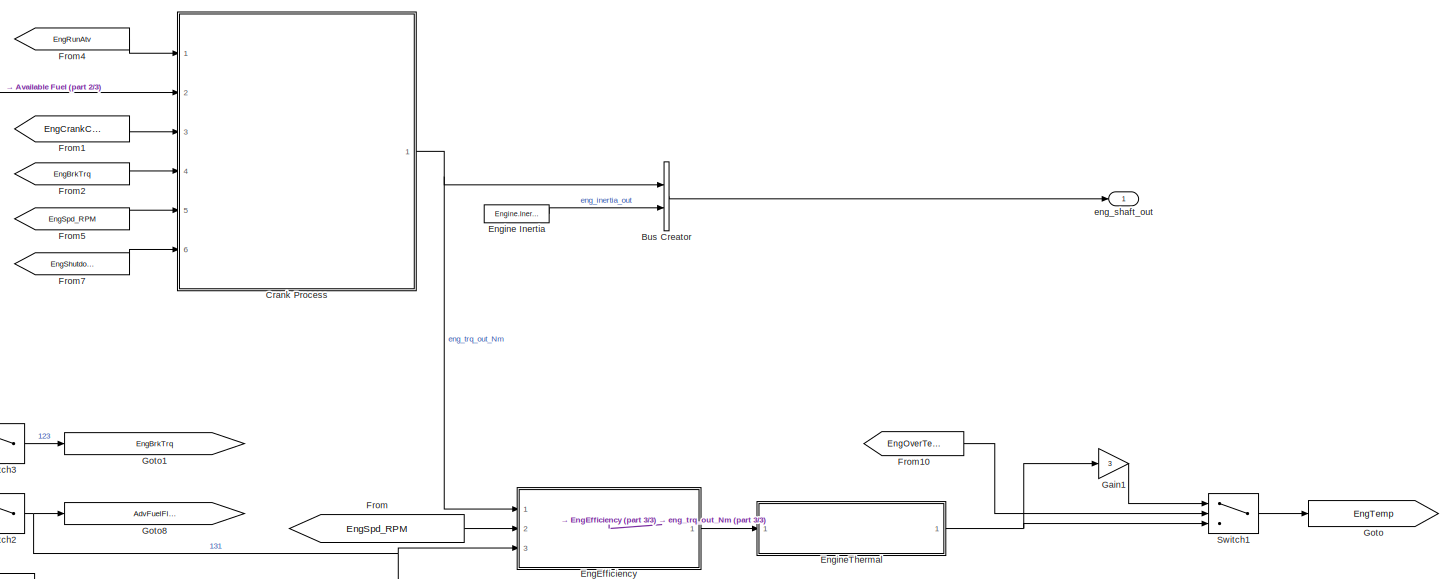
[diagram: ICEngine/Engine Plant Modified/Core Engine - part 1/3, top right region]
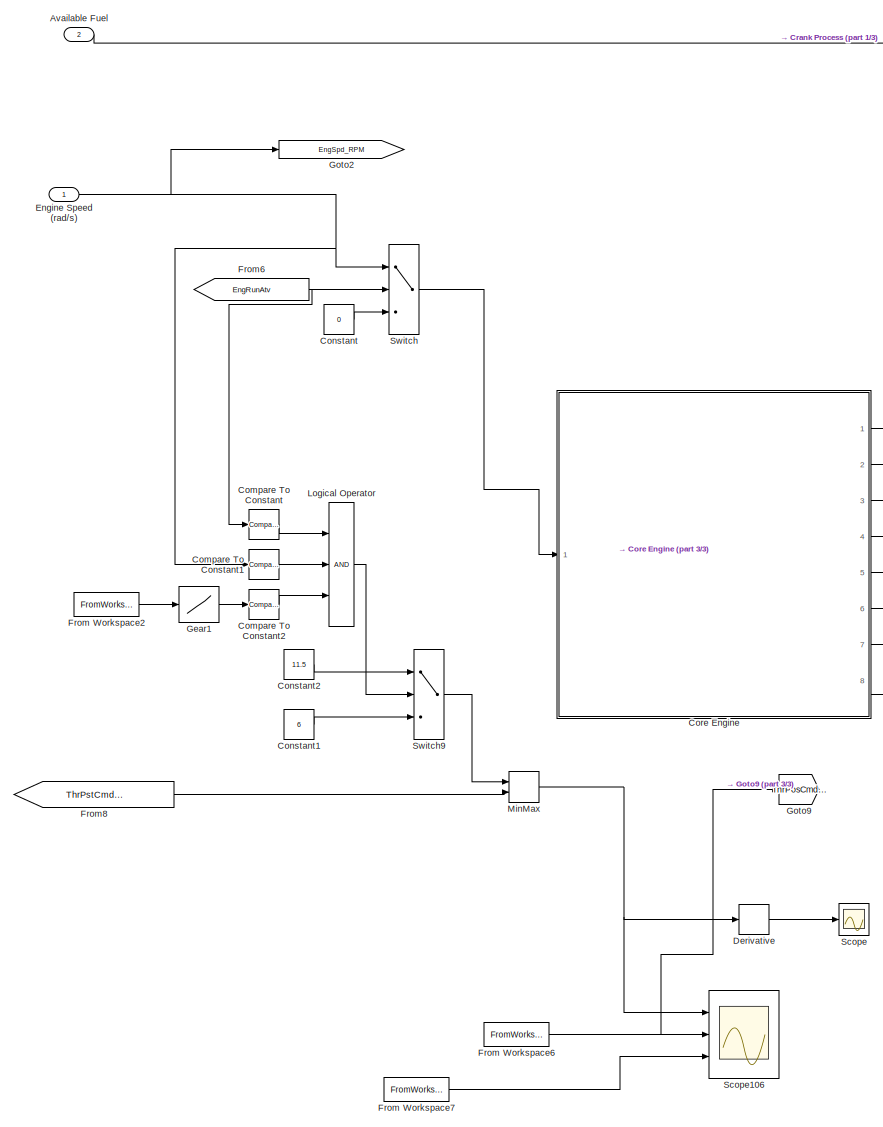
[diagram: ICEngine/Engine Plant Modified/Core Engine - part 2/3, left side, full height]
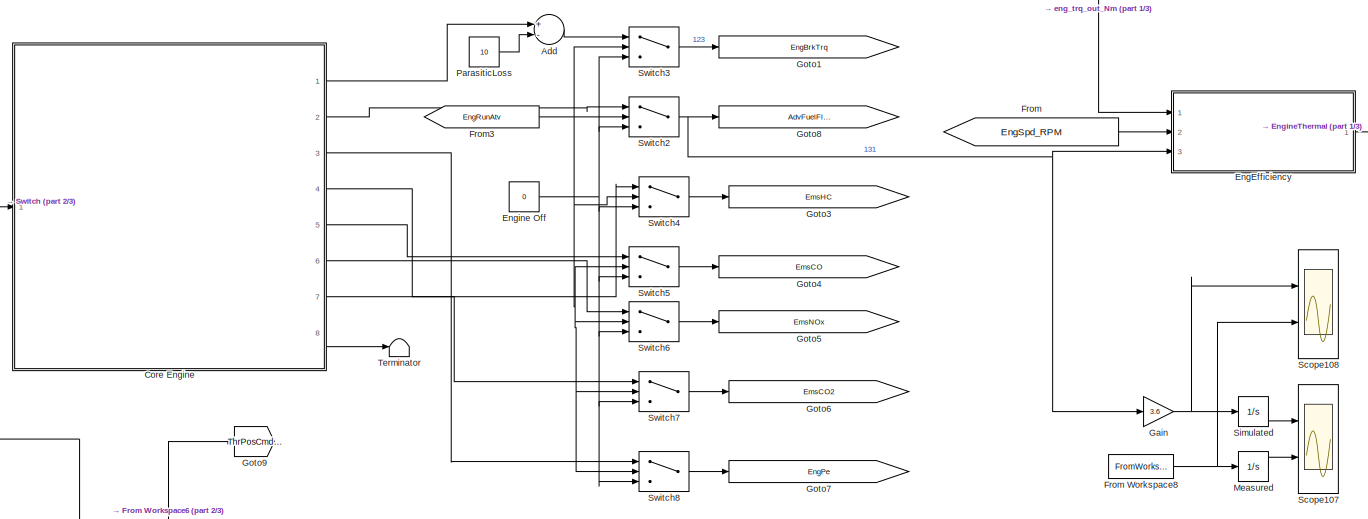
[diagram: ICEngine/Engine Plant Modified/Core Engine - part 3/3, central region]
BLOCK [SubSystem] ICEngine/Engine Plant Modified/Core Engine
  Ports = [2, 1]
  RequestExecContextInheritance = off
  Variant = off
BLOCK [Sum] ICEngine/Engine Plant Modified/Core Engine/Add
  InputSameDT = off
  Inputs = +-
  OutDataTypeStr = Inherit: Inherit via internal rule
  Ports = [2, 1]
  SaturateOnIntegerOverflow = off
BLOCK [Inport] ICEngine/Engine Plant Modified/Core Engine/Available Fuel
  IconDisplay = Port number
  Port = 2
BLOCK [BusCreator] ICEngine/Engine Plant Modified/Core Engine/Bus Creator
  DisplayOption = bar
  InheritFromInputs = on
  Inputs = 2
  Ports = [2, 1]
BLOCK [Reference] ICEngine/Engine Plant Modified/Core Engine/Compare To Constant  REF=simulink/Logic and Bit
Operations/Compare
To Constant
  Ports = [1, 1]
  SourceBlock = simulink/Logic and Bit\nOperations/Compare\nTo Constant
  SourceProductBaseCode = SL
  SourceProductName = Simulink
  SourceType = Compare To Constant
BLOCK [Reference] ICEngine/Engine Plant Modified/Core Engine/Compare To Constant1  REF=simulink/Logic and Bit
Operations/Compare
To Constant
  Ports = [1, 1]
  SourceBlock = simulink/Logic and Bit\nOperations/Compare\nTo Constant
  SourceProductBaseCode = SL
  SourceProductName = Simulink
  SourceType = Compare To Constant
BLOCK [Reference] ICEngine/Engine Plant Modified/Core Engine/Compare To Constant2  REF=simulink/Logic and Bit
Operations/Compare
To Constant
  Ports = [1, 1]
  SourceBlock = simulink/Logic and Bit\nOperations/Compare\nTo Constant
  SourceProductBaseCode = SL
  SourceProductName = Simulink
  SourceType = Compare To Constant
BLOCK [Constant] ICEngine/Engine Plant Modified/Core Engine/Constant
  Value = 0
BLOCK [Constant] ICEngine/Engine Plant Modified/Core Engine/Constant1
  Value = 6
BLOCK [Constant] ICEngine/Engine Plant Modified/Core Engine/Constant2
  Value = 11.5
BLOCK [SubSystem] ICEngine/Engine Plant Modified/Core Engine/Core Engine
  Ports = [1, 8]
  RequestExecContextInheritance = off
  Variant = off
BLOCK [Outport] ICEngine/Engine Plant Modified/Core Engine/Core Engine/Brake Torque (Nm)
  IconDisplay = Port number
BLOCK [Lookup2D] ICEngine/Engine Plant Modified/Core Engine/Core Engine/CO
  ColumnIndex = Engine.Engine.Emissions.TQ
  InputSameDT = off
  LookUpMeth = Interpolation-Use End Values
  RowIndex = Engine.Engine.Emissions.SPEED
  SaturateOnIntegerOverflow = off
  Table = Engine.Engine.Emissions.CO/1000
BLOCK [Outport] ICEngine/Engine Plant Modified/Core Engine/Core Engine/CO (g//s)
  IconDisplay = Port number
  Port = 5
BLOCK [Lookup2D] ICEngine/Engine Plant Modified/Core Engine/Core Engine/CO2
  ColumnIndex = Engine.Engine.Emissions.TQ
  InputSameDT = off
  LookUpMeth = Interpolation-Use End Values
  RowIndex = Engine.Engine.Emissions.SPEED
  SaturateOnIntegerOverflow = off
  Table = Engine.Engine.Emissions.CO2/1000
BLOCK [Outport] ICEngine/Engine Plant Modified/Core Engine/Core Engine/CO2 (g//s)
  IconDisplay = Port number
  Port = 7
BLOCK [Inport] ICEngine/Engine Plant Modified/Core Engine/Core Engine/Engine Speed (RPM)
  IconDisplay = Port number
BLOCK [From] ICEngine/Engine Plant Modified/Core Engine/Core Engine/From
  GotoTag = INTAKEPORTFLOW
BLOCK [From] ICEngine/Engine Plant Modified/Core Engine/Core Engine/From1
  GotoTag = INTAKEPORTFLOW
BLOCK [From] ICEngine/Engine Plant Modified/Core Engine/Core Engine/From9
  GotoTag = ThrPosCmd_int
  TagVisibility = global
BLOCK [Lookup2D] ICEngine/Engine Plant Modified/Core Engine/Core Engine/Fuel Flow
  ColumnIndex = Engine.Engine.FuelFlow.TQ
  InputSameDT = off
  LookUpMeth = Interpolation-Use End Values
  RowIndex = Engine.Engine.FuelFlow.SPEED
  SaturateOnIntegerOverflow = off
  Table = Engine.Engine.FuelFlow.FuelFlow
BLOCK [Outport] ICEngine/Engine Plant Modified/Core Engine/Core Engine/Fuel Flow (g//s)
  IconDisplay = Port number
  Port = 2
BLOCK [Goto] ICEngine/Engine Plant Modified/Core Engine/Core Engine/Goto1
  GotoTag = INTAKEPORTFLOW
BLOCK [Lookup2D] ICEngine/Engine Plant Modified/Core Engine/Core Engine/HC
  ColumnIndex = Engine.Engine.Emissions.TQ
  InputSameDT = off
  LookUpMeth = Interpolation-Use End Values
  RowIndex = Engine.Engine.Emissions.SPEED
  SaturateOnIntegerOverflow = off
  Table = Engine.Engine.Emissions.HC/1000
BLOCK [Outport] ICEngine/Engine Plant Modified/Core Engine/Core Engine/HC (g//s)
  IconDisplay = Port number
  Port = 4
BLOCK [Gain] ICEngine/Engine Plant Modified/Core Engine/Core Engine/Half of Displacement
  Gain = 2.4/(2*1000)
  OutDataTypeStr = Inherit: Inherit via internal rule
  ParamDataTypeStr = Inherit: Inherit via internal rule
  SaturateOnIntegerOverflow = off
BLOCK [Gain] ICEngine/Engine Plant Modified/Core Engine/Core Engine/Ideal Gas Constant R
  Gain = 0.287
  OutDataTypeStr = Inherit: Inherit via internal rule
  ParamDataTypeStr = Inherit: Inherit via internal rule
  SaturateOnIntegerOverflow = off
BLOCK [Outport] ICEngine/Engine Plant Modified/Core Engine/Core Engine/Intake Port Airflow (g//s)
  IconDisplay = Port number
  Port = 8
BLOCK [Gain] ICEngine/Engine Plant Modified/Core Engine/Core Engine/Kg//s to g//s
  Gain = 1000
  OutDataTypeStr = Inherit: Inherit via internal rule
  ParamDataTypeStr = Inherit: Inherit via internal rule
  SaturateOnIntegerOverflow = off
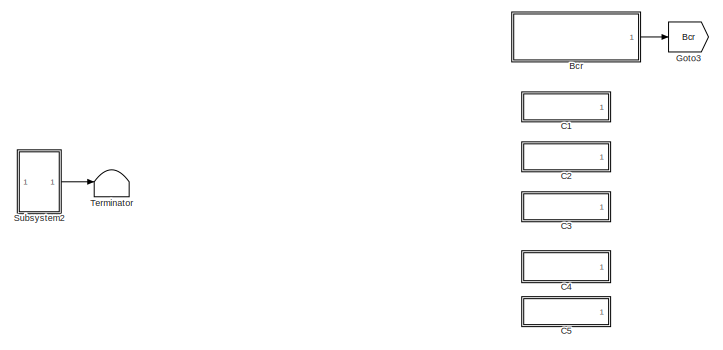
[diagram: ICEngine/Engine Plant Modified/Core Engine/Core Engine/Manifold_Dynamics_Model - part 1/4, top left region]
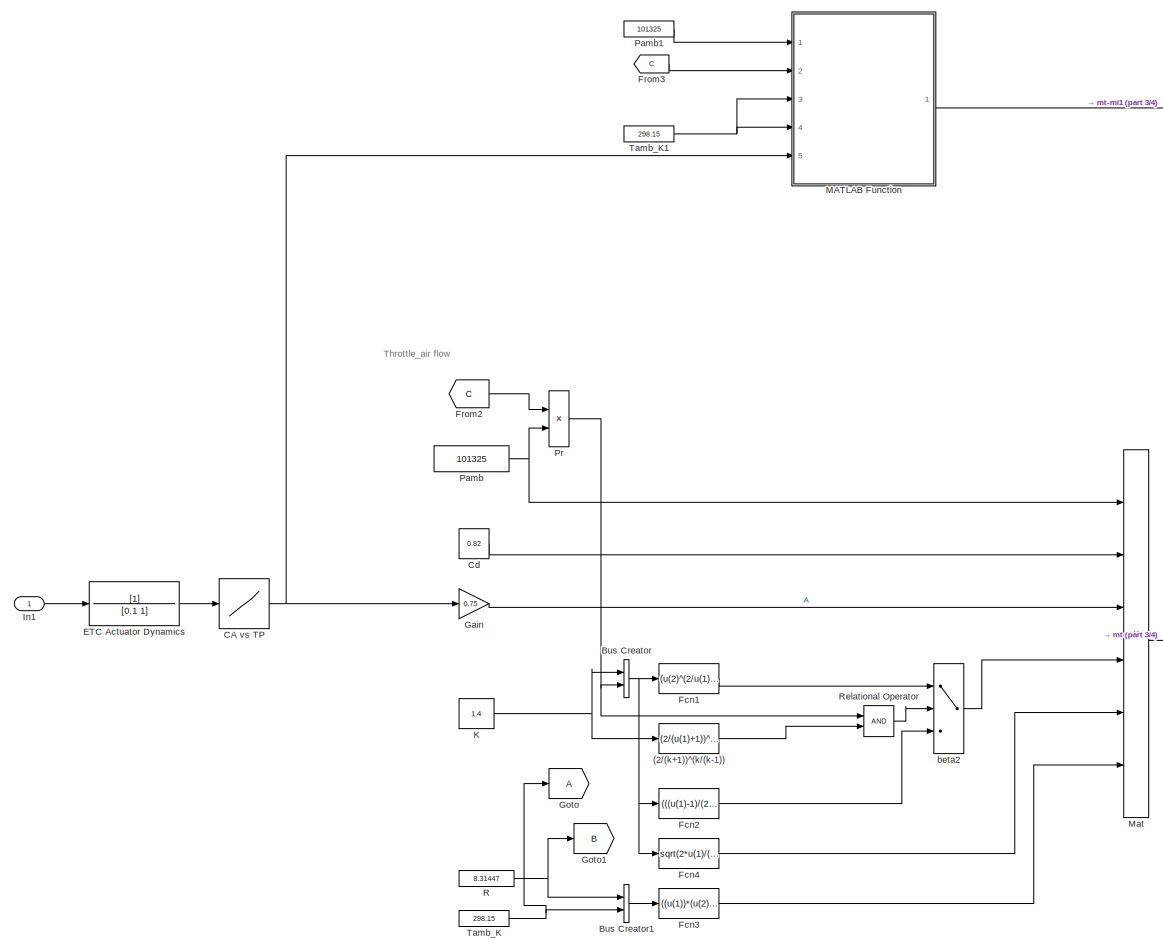
[diagram: ICEngine/Engine Plant Modified/Core Engine/Core Engine/Manifold_Dynamics_Model - part 2/4, middle left region]
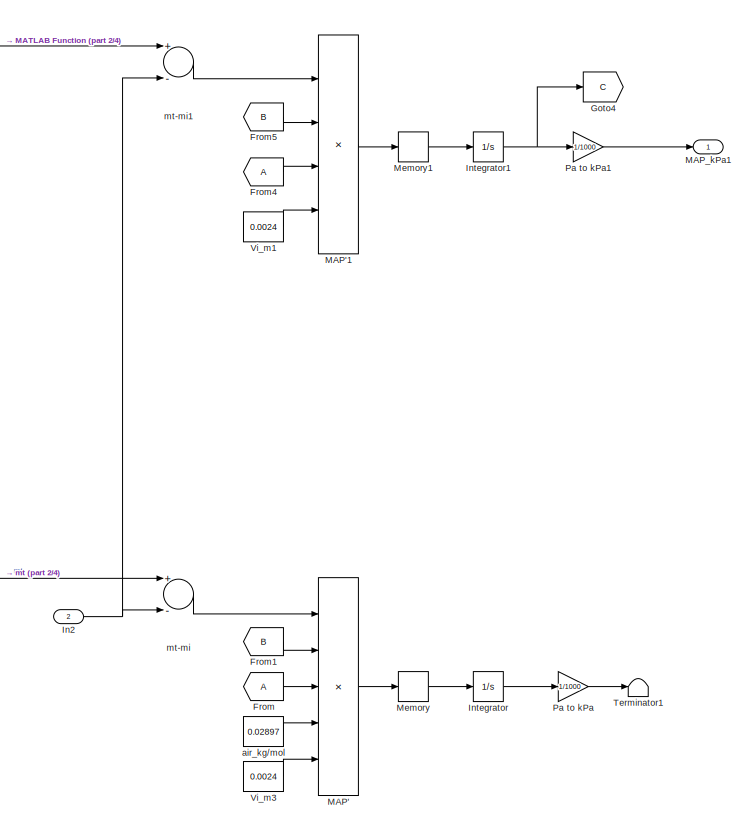
[diagram: ICEngine/Engine Plant Modified/Core Engine/Core Engine/Manifold_Dynamics_Model - part 3/4, central region]
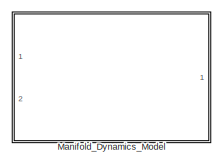
[diagram: ICEngine/Engine Plant Modified/Core Engine/Core Engine/Manifold_Dynamics_Model - part 4/4, middle right region]
BLOCK [SubSystem] ICEngine/Engine Plant Modified/Core Engine/Core Engine/Manifold_Dynamics_Model
  Ports = [2, 1]
  RequestExecContextInheritance = off
  Variant = off
BLOCK [Fcn] ICEngine/Engine Plant Modified/Core Engine/Core Engine/Manifold_Dynamics_Model/(2//(k+1))^(k//(k-1))
  Expr = (2/(u(1)+1))^(u(1)/(u(1)-1))
BLOCK [SubSystem] ICEngine/Engine Plant Modified/Core Engine/Core Engine/Manifold_Dynamics_Model/Bcr
  Commented = on
  Ports = [0, 1]
  RequestExecContextInheritance = off
  Variant = off
BLOCK [Fcn] ICEngine/Engine Plant Modified/Core Engine/Core Engine/Manifold_Dynamics_Model/Bcr/Bcr
  Expr = (2/(u(1)+1))^(u(1)/(u(1)-1))
BLOCK [Constant] ICEngine/Engine Plant Modified/Core Engine/Core Engine/Manifold_Dynamics_Model/Bcr/Constant
  Value = 1.4
BLOCK [Outport] ICEngine/Engine Plant Modified/Core Engine/Core Engine/Manifold_Dynamics_Model/Bcr/Out1
  IconDisplay = Port number
BLOCK [BusCreator] ICEngine/Engine Plant Modified/Core Engine/Core Engine/Manifold_Dynamics_Model/Bus Creator
  DisplayOption = bar
  InheritFromInputs = on
  Inputs = 2
  Ports = [2, 1]
BLOCK [BusCreator] ICEngine/Engine Plant Modified/Core Engine/Core Engine/Manifold_Dynamics_Model/Bus Creator1
  DisplayOption = bar
  InheritFromInputs = on
  Inputs = 2
  Ports = [2, 1]
BLOCK [SubSystem] ICEngine/Engine Plant Modified/Core Engine/Core Engine/Manifold_Dynamics_Model/C1
  Commented = on
  Ports = [0, 1]
  RequestExecContextInheritance = off
  Variant = off
BLOCK [Outport] ICEngine/Engine Plant Modified/Core Engine/Core Engine/Manifold_Dynamics_Model/C1/C1
  IconDisplay = Port number
BLOCK [Constant] ICEngine/Engine Plant Modified/Core Engine/Core Engine/Manifold_Dynamics_Model/C1/Constant
BLOCK [Product] ICEngine/Engine Plant Modified/Core Engine/Core Engine/Manifold_Dynamics_Model/C1/Divide
  InputSameDT = off
  Inputs = */
  OutDataTypeStr = Inherit: Inherit via internal rule
  Ports = [2, 1]
  RndMeth = Floor
  SaturateOnIntegerOverflow = off
BLOCK [Gain] ICEngine/Engine Plant Modified/Core Engine/Core Engine/Manifold_Dynamics_Model/C1/Gain
  Gain = 2
  OutDataTypeStr = Inherit: Inherit via internal rule
  ParamDataTypeStr = Inherit: Inherit via internal rule
  SaturateOnIntegerOverflow = off
BLOCK [Gain] ICEngine/Engine Plant Modified/Core Engine/Core Engine/Manifold_Dynamics_Model/C1/Gain1
  Gain = 8.31447
  OutDataTypeStr = Inherit: Inherit via internal rule
  ParamDataTypeStr = Inherit: Inherit via internal rule
  SaturateOnIntegerOverflow = off
BLOCK [Goto] ICEngine/Engine Plant Modified/Core Engine/Core Engine/Manifold_Dynamics_Model/C1/Goto
  GotoTag = C_1
  TagVisibility = global
BLOCK [Constant] ICEngine/Engine Plant Modified/Core Engine/Core Engine/Manifold_Dynamics_Model/C1/K1
  Value = 1.4
BLOCK [Constant] ICEngine/Engine Plant Modified/Core Engine/Core Engine/Manifold_Dynamics_Model/C1/K2
  Value = 1.4
BLOCK [Sum] ICEngine/Engine Plant Modified/Core Engine/Core Engine/Manifold_Dynamics_Model/C1/Subtract
  InputSameDT = off
  Inputs = +-
  OutDataTypeStr = Inherit: Inherit via internal rule
  Ports = [2, 1]
  SaturateOnIntegerOverflow = off
BLOCK [SubSystem] ICEngine/Engine Plant Modified/Core Engine/Core Engine/Manifold_Dynamics_Model/C2
  Commented = on
  Ports = [0, 1]
  RequestExecContextInheritance = off
  Variant = off
BLOCK [Outport] ICEngine/Engine Plant Modified/Core Engine/Core Engine/Manifold_Dynamics_Model/C2/C2 
  IconDisplay = Port number
BLOCK [Constant] ICEngine/Engine Plant Modified/Core Engine/Core Engine/Manifold_Dynamics_Model/C2/Constant
BLOCK [Product] ICEngine/Engine Plant Modified/Core Engine/Core Engine/Manifold_Dynamics_Model/C2/Divide
  InputSameDT = off
  Inputs = */
  OutDataTypeStr = Inherit: Inherit via internal rule
  Ports = [2, 1]
  RndMeth = Floor
  SaturateOnIntegerOverflow = off
BLOCK [Goto] ICEngine/Engine Plant Modified/Core Engine/Core Engine/Manifold_Dynamics_Model/C2/Goto
  GotoTag = C_2
  TagVisibility = global
BLOCK [Constant] ICEngine/Engine Plant Modified/Core Engine/Core Engine/Manifold_Dynamics_Model/C2/K1
  Value = 1.4
BLOCK [Constant] ICEngine/Engine Plant Modified/Core Engine/Core Engine/Manifold_Dynamics_Model/C2/K2
  Value = 1.4
BLOCK [Sum] ICEngine/Engine Plant Modified/Core Engine/Core Engine/Manifold_Dynamics_Model/C2/Subtract
  InputSameDT = off
  OutDataTypeStr = Inherit: Inherit via internal rule
  Ports = [2, 1]
  SaturateOnIntegerOverflow = off
BLOCK [SubSystem] ICEngine/Engine Plant Modified/Core Engine/Core Engine/Manifold_Dynamics_Model/C3
  Commented = on
  Ports = [0, 1]
  RequestExecContextInheritance = off
  Variant = off
BLOCK [Outport] ICEngine/Engine Plant Modified/Core Engine/Core Engine/Manifold_Dynamics_Model/C3/C3 
  IconDisplay = Port number
BLOCK [Constant] ICEngine/Engine Plant Modified/Core Engine/Core Engine/Manifold_Dynamics_Model/C3/Constant
  Value = 8.31447
BLOCK [Constant] ICEngine/Engine Plant Modified/Core Engine/Core Engine/Manifold_Dynamics_Model/C3/Constant1
BLOCK [Product] ICEngine/Engine Plant Modified/Core Engine/Core Engine/Manifold_Dynamics_Model/C3/Divide
  InputSameDT = off
  Inputs = **
  OutDataTypeStr = Inherit: Inherit via internal rule
  Ports = [2, 1]
  RndMeth = Floor
  SaturateOnIntegerOverflow = off
BLOCK [Product] ICEngine/Engine Plant Modified/Core Engine/Core Engine/Manifold_Dynamics_Model/C3/Divide1
  InputSameDT = off
  Inputs = */
  OutDataTypeStr = Inherit: Inherit via internal rule
  Ports = [2, 1]
  RndMeth = Floor
  SaturateOnIntegerOverflow = off
BLOCK [Product] ICEngine/Engine Plant Modified/Core Engine/Core Engine/Manifold_Dynamics_Model/C3/Divide2
  InputSameDT = off
  Inputs = */
  OutDataTypeStr = Inherit: Inherit via internal rule
  Ports = [2, 1]
  RndMeth = Floor
  SaturateOnIntegerOverflow = off
BLOCK [From] ICEngine/Engine Plant Modified/Core Engine/Core Engine/Manifold_Dynamics_Model/C3/From
  GotoTag = Bcr
BLOCK [Constant] ICEngine/Engine Plant Modified/Core Engine/Core Engine/Manifold_Dynamics_Model/C3/K2
  Value = 1.4
BLOCK [Constant] ICEngine/Engine Plant Modified/Core Engine/Core Engine/Manifold_Dynamics_Model/C3/K3
  Value = 1.4
BLOCK [Math] ICEngine/Engine Plant Modified/Core Engine/Core Engine/Manifold_Dynamics_Model/C3/Math Function
  Operator = pow
  Ports = [2, 1]
BLOCK [Sqrt] ICEngine/Engine Plant Modified/Core Engine/Core Engine/Manifold_Dynamics_Model/C3/Sqrt
BLOCK [Sum] ICEngine/Engine Plant Modified/Core Engine/Core Engine/Manifold_Dynamics_Model/C3/Sum
  IconShape = round
  InputSameDT = off
  Inputs = |++
  OutDataTypeStr = Inherit: Inherit via internal rule
  Ports = [2, 1]
  SaturateOnIntegerOverflow = off
BLOCK [SubSystem] ICEngine/Engine Plant Modified/Core Engine/Core Engine/Manifold_Dynamics_Model/C4
  Commented = on
  Ports = [0, 1]
  RequestExecContextInheritance = off
  Variant = off
BLOCK [Outport] ICEngine/Engine Plant Modified/Core Engine/Core Engine/Manifold_Dynamics_Model/C4/C4 
  IconDisplay = Port number
BLOCK [Constant] ICEngine/Engine Plant Modified/Core Engine/Core Engine/Manifold_Dynamics_Model/C4/Constant1
  Value = 2
BLOCK [Constant] ICEngine/Engine Plant Modified/Core Engine/Core Engine/Manifold_Dynamics_Model/C4/Constant2
  Value = 0.999
BLOCK [Constant] ICEngine/Engine Plant Modified/Core Engine/Core Engine/Manifold_Dynamics_Model/C4/Constant4
  Value = 0.999
BLOCK [Product] ICEngine/Engine Plant Modified/Core Engine/Core Engine/Manifold_Dynamics_Model/C4/Divide
  InputSameDT = off
  Inputs = **
  OutDataTypeStr = Inherit: Inherit via internal rule
  Ports = [2, 1]
  RndMeth = Floor
  SaturateOnIntegerOverflow = off
BLOCK [Product] ICEngine/Engine Plant Modified/Core Engine/Core Engine/Manifold_Dynamics_Model/C4/Divide2
  InputSameDT = off
  Inputs = */
  OutDataTypeStr = Inherit: Inherit via internal rule
  Ports = [2, 1]
  RndMeth = Floor
  SaturateOnIntegerOverflow = off
BLOCK [From] ICEngine/Engine Plant Modified/Core Engine/Core Engine/Manifold_Dynamics_Model/C4/From
  GotoTag = C_2
BLOCK [From] ICEngine/Engine Plant Modified/Core Engine/Core Engine/Manifold_Dynamics_Model/C4/From1
  GotoTag = C_1
BLOCK [Gain] ICEngine/Engine Plant Modified/Core Engine/Core Engine/Manifold_Dynamics_Model/C4/Gain
  Gain = 1-0.999
  OutDataTypeStr = Inherit: Inherit via internal rule
  ParamDataTypeStr = Inherit: Inherit via internal rule
  SaturateOnIntegerOverflow = off
BLOCK [Constant] ICEngine/Engine Plant Modified/Core Engine/Core Engine/Manifold_Dynamics_Model/C4/K3
  Value = 1.4
BLOCK [Math] ICEngine/Engine Plant Modified/Core Engine/Core Engine/Manifold_Dynamics_Model/C4/Math Function
  Operator = pow
  Ports = [2, 1]
BLOCK [Math] ICEngine/Engine Plant Modified/Core Engine/Core Engine/Manifold_Dynamics_Model/C4/Math Function1
  Operator = pow
  Ports = [2, 1]
BLOCK [Sqrt] ICEngine/Engine Plant Modified/Core Engine/Core Engine/Manifold_Dynamics_Model/C4/Sqrt
BLOCK [Sum] ICEngine/Engine Plant Modified/Core Engine/Core Engine/Manifold_Dynamics_Model/C4/Subtract
  InputSameDT = off
  Inputs = +-
  OutDataTypeStr = Inherit: Inherit via internal rule
  Ports = [2, 1]
  SaturateOnIntegerOverflow = off
BLOCK [SubSystem] ICEngine/Engine Plant Modified/Core Engine/Core Engine/Manifold_Dynamics_Model/C5
  Commented = on
  Ports = [0, 1]
  RequestExecContextInheritance = off
  Variant = off
BLOCK [Outport] ICEngine/Engine Plant Modified/Core Engine/Core Engine/Manifold_Dynamics_Model/C5/C5 
  IconDisplay = Port number
BLOCK [Constant] ICEngine/Engine Plant Modified/Core Engine/Core Engine/Manifold_Dynamics_Model/C5/Constant
  Value = 2/1.4
BLOCK [Lookup] ICEngine/Engine Plant Modified/Core Engine/Core Engine/Manifold_Dynamics_Model/CA vs TP
  InputValues = Engine.Throttle.CA.TPP
  LookUpMeth = Interpolation-Use End Values
  SaturateOnIntegerOverflow = off
  Table = Engine.Throttle.CA.CA
BLOCK [Constant] ICEngine/Engine Plant Modified/Core Engine/Core Engine/Manifold_Dynamics_Model/Cd
  Value = 0.82
BLOCK [TransferFcn] ICEngine/Engine Plant Modified/Core Engine/Core Engine/Manifold_Dynamics_Model/ETC Actuator Dynamics
  Denominator = [0.1 1]
BLOCK [Fcn] ICEngine/Engine Plant Modified/Core Engine/Core Engine/Manifold_Dynamics_Model/Fcn1
  Expr = (u(2)^(2/u(1)))-(u(2)^((u(1)+1)/u(1)))
BLOCK [Fcn] ICEngine/Engine Plant Modified/Core Engine/Core Engine/Manifold_Dynamics_Model/Fcn2
  Expr = (((u(1)-1)/(2*u(1)))*(2/(u(1)+1))^((u(1)+1)/(u(1)-1)))
BLOCK [Fcn] ICEngine/Engine Plant Modified/Core Engine/Core Engine/Manifold_Dynamics_Model/Fcn3
  Expr = ((u(1))*(u(2)))^0.5
BLOCK [Fcn] ICEngine/Engine Plant Modified/Core Engine/Core Engine/Manifold_Dynamics_Model/Fcn4
  Expr = sqrt(2*u(1)/(u(1)-1))
BLOCK [From] ICEngine/Engine Plant Modified/Core Engine/Core Engine/Manifold_Dynamics_Model/From
BLOCK [From] ICEngine/Engine Plant Modified/Core Engine/Core Engine/Manifold_Dynamics_Model/From1
  GotoTag = B
BLOCK [From] ICEngine/Engine Plant Modified/Core Engine/Core Engine/Manifold_Dynamics_Model/From2
  GotoTag = C
BLOCK [From] ICEngine/Engine Plant Modified/Core Engine/Core Engine/Manifold_Dynamics_Model/From3
  GotoTag = C
BLOCK [From] ICEngine/Engine Plant Modified/Core Engine/Core Engine/Manifold_Dynamics_Model/From4
BLOCK [From] ICEngine/Engine Plant Modified/Core Engine/Core Engine/Manifold_Dynamics_Model/From5
  GotoTag = B
BLOCK [Gain] ICEngine/Engine Plant Modified/Core Engine/Core Engine/Manifold_Dynamics_Model/Gain
  Gain = 0.75
  OutDataTypeStr = Inherit: Inherit via internal rule
  ParamDataTypeStr = Inherit: Inherit via internal rule
  SaturateOnIntegerOverflow = off
BLOCK [Goto] ICEngine/Engine Plant Modified/Core Engine/Core Engine/Manifold_Dynamics_Model/Goto
BLOCK [Goto] ICEngine/Engine Plant Modified/Core Engine/Core Engine/Manifold_Dynamics_Model/Goto1
  GotoTag = B
BLOCK [Goto] ICEngine/Engine Plant Modified/Core Engine/Core Engine/Manifold_Dynamics_Model/Goto3
  Commented = on
  GotoTag = Bcr
  TagVisibility = global
BLOCK [Goto] ICEngine/Engine Plant Modified/Core Engine/Core Engine/Manifold_Dynamics_Model/Goto4
  GotoTag = C
BLOCK [Inport] ICEngine/Engine Plant Modified/Core Engine/Core Engine/Manifold_Dynamics_Model/In1
  IconDisplay = Port number
BLOCK [Inport] ICEngine/Engine Plant Modified/Core Engine/Core Engine/Manifold_Dynamics_Model/In2
  IconDisplay = Port number
  Port = 2
BLOCK [Integrator] ICEngine/Engine Plant Modified/Core Engine/Core Engine/Manifold_Dynamics_Model/Integrator
  InitialCondition = 101325
  Ports = [1, 1]
BLOCK [Integrator] ICEngine/Engine Plant Modified/Core Engine/Core Engine/Manifold_Dynamics_Model/Integrator1
  InitialCondition = 101325
  Ports = [1, 1]
BLOCK [Constant] ICEngine/Engine Plant Modified/Core Engine/Core Engine/Manifold_Dynamics_Model/K
  Value = 1.4
BLOCK [Product] ICEngine/Engine Plant Modified/Core Engine/Core Engine/Manifold_Dynamics_Model/MAP'
  InputSameDT = off
  Inputs = ***//
  OutDataTypeStr = Inherit: Inherit via internal rule
  Ports = [5, 1]
  RndMeth = Floor
  SaturateOnIntegerOverflow = off
BLOCK [Product] ICEngine/Engine Plant Modified/Core Engine/Core Engine/Manifold_Dynamics_Model/MAP'1
  InputSameDT = off
  Inputs = ***/
  OutDataTypeStr = Inherit: Inherit via internal rule
  Ports = [4, 1]
  RndMeth = Floor
  SaturateOnIntegerOverflow = off
BLOCK [Outport] ICEngine/Engine Plant Modified/Core Engine/Core Engine/Manifold_Dynamics_Model/MAP_kPa1
  IconDisplay = Port number
BLOCK [SubSystem] ICEngine/Engine Plant Modified/Core Engine/Core Engine/Manifold_Dynamics_Model/MATLAB Function
  ErrorFcn = Stateflow.Translate.translate
  PermitHierarchicalResolution = ExplicitOnly
  Ports = [5, 1]
  RequestExecContextInheritance = off
  SFBlockType = MATLAB Function
  TreatAsAtomicUnit = on
  Variant = off
BLOCK [Demux] ICEngine/Engine Plant Modified/Core Engine/Core Engine/Manifold_Dynamics_Model/MATLAB Function/ Demux 
  Outputs = 1
  Ports = [1, 1]
BLOCK [S-Function] ICEngine/Engine Plant Modified/Core Engine/Core Engine/Manifold_Dynamics_Model/MATLAB Function/ SFunction 
  EnableBusSupport = on
  FunctionName = sf_sfun
  PortCounts = [5 2]
  Ports = [5, 2]
  SFcnIsStateOwnerBlock = off
  SFunctionDeploymentMode = off
  Tag = Stateflow S-Function Engine_TestBench1 2
BLOCK [Terminator] ICEngine/Engine Plant Modified/Core Engine/Core Engine/Manifold_Dynamics_Model/MATLAB Function/ Terminator 
BLOCK [Inport] ICEngine/Engine Plant Modified/Core Engine/Core Engine/Manifold_Dynamics_Model/MATLAB Function/Area
  IconDisplay = Port number
  Port = 5
BLOCK [Outport] ICEngine/Engine Plant Modified/Core Engine/Core Engine/Manifold_Dynamics_Model/MATLAB Function/G
  IconDisplay = Port number
BLOCK [Inport] ICEngine/Engine Plant Modified/Core Engine/Core Engine/Manifold_Dynamics_Model/MATLAB Function/T1
  IconDisplay = Port number
  Port = 3
BLOCK [Inport] ICEngine/Engine Plant Modified/Core Engine/Core Engine/Manifold_Dynamics_Model/MATLAB Function/T2
  IconDisplay = Port number
  Port = 4
BLOCK [Inport] ICEngine/Engine Plant Modified/Core Engine/Core Engine/Manifold_Dynamics_Model/MATLAB Function/p1
  IconDisplay = Port number
BLOCK [Inport] ICEngine/Engine Plant Modified/Core Engine/Core Engine/Manifold_Dynamics_Model/MATLAB Function/p2
  IconDisplay = Port number
  Port = 2
BLOCK [SubSystem] ICEngine/Engine Plant Modified/Core Engine/Core Engine/Manifold_Dynamics_Model/Manifold_Dynamics_Model
  Commented = on
  Ports = [2, 1]
  RequestExecContextInheritance = off
  Variant = off
BLOCK [Fcn] ICEngine/Engine Plant Modified/Core Engine/Core Engine/Manifold_Dynamics_Model/Manifold_Dynamics_Model/(2//(k+1))^(k//(k-1))
  Expr = (2/(u(1)+1))^(u(1)/(u(1)-1))
BLOCK [BusCreator] ICEngine/Engine Plant Modified/Core Engine/Core Engine/Manifold_Dynamics_Model/Manifold_Dynamics_Model/Bus Creator
  DisplayOption = bar
  InheritFromInputs = on
  Inputs = 2
  Ports = [2, 1]
BLOCK [BusCreator] ICEngine/Engine Plant Modified/Core Engine/Core Engine/Manifold_Dynamics_Model/Manifold_Dynamics_Model/Bus Creator1
  DisplayOption = bar
  InheritFromInputs = on
  Inputs = 2
  Ports = [2, 1]
BLOCK [Lookup] ICEngine/Engine Plant Modified/Core Engine/Core Engine/Manifold_Dynamics_Model/Manifold_Dynamics_Model/CA vs TP
  InputValues = Engine.Throttle.CA.TPP
  LookUpMeth = Interpolation-Use End Values
  SaturateOnIntegerOverflow = off
  Table = Engine.Throttle.CA.CA
BLOCK [Constant] ICEngine/Engine Plant Modified/Core Engine/Core Engine/Manifold_Dynamics_Model/Manifold_Dynamics_Model/Cd
  Value = 0.82
BLOCK [Constant] ICEngine/Engine Plant Modified/Core Engine/Core Engine/Manifold_Dynamics_Model/Manifold_Dynamics_Model/Constant
  Value = 0
BLOCK [Constant] ICEngine/Engine Plant Modified/Core Engine/Core Engine/Manifold_Dynamics_Model/Manifold_Dynamics_Model/Constant1
BLOCK [Constant] ICEngine/Engine Plant Modified/Core Engine/Core Engine/Manifold_Dynamics_Model/Manifold_Dynamics_Model/Constant2
  Value = 0
BLOCK [TransferFcn] ICEngine/Engine Plant Modified/Core Engine/Core Engine/Manifold_Dynamics_Model/Manifold_Dynamics_Model/ETC Actuator Dynamics
  Denominator = [0.1 1]
BLOCK [Fcn] ICEngine/Engine Plant Modified/Core Engine/Core Engine/Manifold_Dynamics_Model/Manifold_Dynamics_Model/Fcn1
  Expr = (u(2)^(2/u(1)))-(u(2)^((u(1)+1)/u(1)))
BLOCK [Fcn] ICEngine/Engine Plant Modified/Core Engine/Core Engine/Manifold_Dynamics_Model/Manifold_Dynamics_Model/Fcn2
  Expr = (((u(1)-1)/(2*u(1)))*(2/(u(1)+1))^((u(1)+1)/(u(1)-1)))
BLOCK [Fcn] ICEngine/Engine Plant Modified/Core Engine/Core Engine/Manifold_Dynamics_Model/Manifold_Dynamics_Model/Fcn3
  Expr = ((u(1))*(u(2)))^0.5
BLOCK [Fcn] ICEngine/Engine Plant Modified/Core Engine/Core Engine/Manifold_Dynamics_Model/Manifold_Dynamics_Model/Fcn4
  Expr = sqrt(2*u(1)/(u(1)-1))
BLOCK [From] ICEngine/Engine Plant Modified/Core Engine/Core Engine/Manifold_Dynamics_Model/Manifold_Dynamics_Model/From
BLOCK [From] ICEngine/Engine Plant Modified/Core Engine/Core Engine/Manifold_Dynamics_Model/Manifold_Dynamics_Model/From1
  GotoTag = B
BLOCK [From] ICEngine/Engine Plant Modified/Core Engine/Core Engine/Manifold_Dynamics_Model/Manifold_Dynamics_Model/From2
  GotoTag = P0
  TagVisibility = global
BLOCK [Gain] ICEngine/Engine Plant Modified/Core Engine/Core Engine/Manifold_Dynamics_Model/Manifold_Dynamics_Model/Gain
  Gain = 0.75
  OutDataTypeStr = Inherit: Inherit via internal rule
  ParamDataTypeStr = Inherit: Inherit via internal rule
  SaturateOnIntegerOverflow = off
BLOCK [Goto] ICEngine/Engine Plant Modified/Core Engine/Core Engine/Manifold_Dynamics_Model/Manifold_Dynamics_Model/Goto
BLOCK [Goto] ICEngine/Engine Plant Modified/Core Engine/Core Engine/Manifold_Dynamics_Model/Manifold_Dynamics_Model/Goto1
  GotoTag = B
BLOCK [Goto] ICEngine/Engine Plant Modified/Core Engine/Core Engine/Manifold_Dynamics_Model/Manifold_Dynamics_Model/Goto2
  GotoTag = P0
  TagVisibility = global
BLOCK [Inport] ICEngine/Engine Plant Modified/Core Engine/Core Engine/Manifold_Dynamics_Model/Manifold_Dynamics_Model/In1
  IconDisplay = Port number
BLOCK [Inport] ICEngine/Engine Plant Modified/Core Engine/Core Engine/Manifold_Dynamics_Model/Manifold_Dynamics_Model/In2
  IconDisplay = Port number
  Port = 2
BLOCK [Integrator] ICEngine/Engine Plant Modified/Core Engine/Core Engine/Manifold_Dynamics_Model/Manifold_Dynamics_Model/Integrator
  InitialCondition = 101.325
  Ports = [1, 1]
BLOCK [Constant] ICEngine/Engine Plant Modified/Core Engine/Core Engine/Manifold_Dynamics_Model/Manifold_Dynamics_Model/K
  Value = 1.4
BLOCK [Gain] ICEngine/Engine Plant Modified/Core Engine/Core Engine/Manifold_Dynamics_Model/Manifold_Dynamics_Model/Kg//s to g//s
  Gain = 1/1000
  OutDataTypeStr = Inherit: Inherit via internal rule
  ParamDataTypeStr = Inherit: Inherit via internal rule
  SaturateOnIntegerOverflow = off
BLOCK [Product] ICEngine/Engine Plant Modified/Core Engine/Core Engine/Manifold_Dynamics_Model/Manifold_Dynamics_Model/MAP'
  InputSameDT = off
  Inputs = ***/
  OutDataTypeStr = Inherit: Inherit via internal rule
  Ports = [4, 1]
  RndMeth = Floor
  SaturateOnIntegerOverflow = off
BLOCK [Outport] ICEngine/Engine Plant Modified/Core Engine/Core Engine/Manifold_Dynamics_Model/Manifold_Dynamics_Model/MAP_kg//s
  IconDisplay = Port number
BLOCK [Product] ICEngine/Engine Plant Modified/Core Engine/Core Engine/Manifold_Dynamics_Model/Manifold_Dynamics_Model/Mat
  InputSameDT = off
  Inputs = *****/
  OutDataTypeStr = Inherit: Inherit via internal rule
  Ports = [6, 1]
  RndMeth = Floor
  SaturateOnIntegerOverflow = off
BLOCK [Memory] ICEngine/Engine Plant Modified/Core Engine/Core Engine/Manifold_Dynamics_Model/Manifold_Dynamics_Model/Memory
BLOCK [Constant] ICEngine/Engine Plant Modified/Core Engine/Core Engine/Manifold_Dynamics_Model/Manifold_Dynamics_Model/Pamb
  Value = 101325
BLOCK [Product] ICEngine/Engine Plant Modified/Core Engine/Core Engine/Manifold_Dynamics_Model/Manifold_Dynamics_Model/Pr
  InputSameDT = off
  Inputs = */
  OutDataTypeStr = Inherit: Inherit via internal rule
  Ports = [2, 1]
  RndMeth = Floor
  SaturateOnIntegerOverflow = off
BLOCK [Constant] ICEngine/Engine Plant Modified/Core Engine/Core Engine/Manifold_Dynamics_Model/Manifold_Dynamics_Model/R
  Value = 8.31447
BLOCK [RelationalOperator] ICEngine/Engine Plant Modified/Core Engine/Core Engine/Manifold_Dynamics_Model/Manifold_Dynamics_Model/Relational Operator
  InputSameDT = off
  OutDataTypeStr = boolean
  Ports = [2, 1]
  ZeroCross = off
BLOCK [Switch] ICEngine/Engine Plant Modified/Core Engine/Core Engine/Manifold_Dynamics_Model/Manifold_Dynamics_Model/Switch1
  Criteria = u2 > Threshold
  InputSameDT = off
  SaturateOnIntegerOverflow = off
BLOCK [Switch] ICEngine/Engine Plant Modified/Core Engine/Core Engine/Manifold_Dynamics_Model/Manifold_Dynamics_Model/Switch2
  Criteria = u2 > Threshold
  InputSameDT = off
  SaturateOnIntegerOverflow = off
BLOCK [Constant] ICEngine/Engine Plant Modified/Core Engine/Core Engine/Manifold_Dynamics_Model/Manifold_Dynamics_Model/Tamb_K
  Value = 293.15
BLOCK [Constant] ICEngine/Engine Plant Modified/Core Engine/Core Engine/Manifold_Dynamics_Model/Manifold_Dynamics_Model/Vi_m3
  Value = 0.0034
BLOCK [Switch] ICEngine/Engine Plant Modified/Core Engine/Core Engine/Manifold_Dynamics_Model/Manifold_Dynamics_Model/beta2
  Criteria = u2 > Threshold
  InputSameDT = off
  SaturateOnIntegerOverflow = off
BLOCK [Sum] ICEngine/Engine Plant Modified/Core Engine/Core Engine/Manifold_Dynamics_Model/Manifold_Dynamics_Model/mat-map
  InputSameDT = off
  Inputs = +-
  OutDataTypeStr = Inherit: Inherit via internal rule
  Ports = [2, 1]
  SaturateOnIntegerOverflow = off
BLOCK [Product] ICEngine/Engine Plant Modified/Core Engine/Core Engine/Manifold_Dynamics_Model/Mat
  InputSameDT = off
  Inputs = *****/
  OutDataTypeStr = Inherit: Inherit via internal rule
  Ports = [6, 1]
  RndMeth = Floor
  SaturateOnIntegerOverflow = off
BLOCK [Memory] ICEngine/Engine Plant Modified/Core Engine/Core Engine/Manifold_Dynamics_Model/Memory
BLOCK [Memory] ICEngine/Engine Plant Modified/Core Engine/Core Engine/Manifold_Dynamics_Model/Memory1
BLOCK [Gain] ICEngine/Engine Plant Modified/Core Engine/Core Engine/Manifold_Dynamics_Model/Pa to kPa
  Gain = 1/1000
  OutDataTypeStr = Inherit: Inherit via internal rule
  ParamDataTypeStr = Inherit: Inherit via internal rule
  SaturateOnIntegerOverflow = off
BLOCK [Gain] ICEngine/Engine Plant Modified/Core Engine/Core Engine/Manifold_Dynamics_Model/Pa to kPa1
  Gain = 1/1000
  OutDataTypeStr = Inherit: Inherit via internal rule
  ParamDataTypeStr = Inherit: Inherit via internal rule
  SaturateOnIntegerOverflow = off
BLOCK [Constant] ICEngine/Engine Plant Modified/Core Engine/Core Engine/Manifold_Dynamics_Model/Pamb
  Value = 101325
BLOCK [Constant] ICEngine/Engine Plant Modified/Core Engine/Core Engine/Manifold_Dynamics_Model/Pamb1
  Value = 101325
BLOCK [Product] ICEngine/Engine Plant Modified/Core Engine/Core Engine/Manifold_Dynamics_Model/Pr
  InputSameDT = off
  Inputs = */
  OutDataTypeStr = Inherit: Inherit via internal rule
  Ports = [2, 1]
  RndMeth = Floor
  SaturateOnIntegerOverflow = off
BLOCK [Constant] ICEngine/Engine Plant Modified/Core Engine/Core Engine/Manifold_Dynamics_Model/R
  Value = 8.31447
BLOCK [RelationalOperator] ICEngine/Engine Plant Modified/Core Engine/Core Engine/Manifold_Dynamics_Model/Relational Operator
  InputSameDT = off
  OutDataTypeStr = boolean
  Ports = [2, 1]
BLOCK [SubSystem] ICEngine/Engine Plant Modified/Core Engine/Core Engine/Manifold_Dynamics_Model/Subsystem2
  Commented = on
  Ports = [1, 1]
  RequestExecContextInheritance = off
  Variant = off
BLOCK [Constant] ICEngine/Engine Plant Modified/Core Engine/Core Engine/Manifold_Dynamics_Model/Subsystem2/Constant4
  Value = 101325
BLOCK [Constant] ICEngine/Engine Plant Modified/Core Engine/Core Engine/Manifold_Dynamics_Model/Subsystem2/Constant5
  Value = 0.99
BLOCK [From] ICEngine/Engine Plant Modified/Core Engine/Core Engine/Manifold_Dynamics_Model/Subsystem2/From3
  GotoTag = C
  TagVisibility = global
BLOCK [Inport] ICEngine/Engine Plant Modified/Core Engine/Core Engine/Manifold_Dynamics_Model/Subsystem2/In1
  IconDisplay = Port number
BLOCK [Outport] ICEngine/Engine Plant Modified/Core Engine/Core Engine/Manifold_Dynamics_Model/Subsystem2/Out1
  IconDisplay = Port number
BLOCK [Product] ICEngine/Engine Plant Modified/Core Engine/Core Engine/Manifold_Dynamics_Model/Subsystem2/Pr2
  InputSameDT = off
  Inputs = */
  OutDataTypeStr = Inherit: Inherit via internal rule
  Ports = [2, 1]
  RndMeth = Floor
  SaturateOnIntegerOverflow = off
BLOCK [RelationalOperator] ICEngine/Engine Plant Modified/Core Engine/Core Engine/Manifold_Dynamics_Model/Subsystem2/Relational Operator1
  InputSameDT = off
  Operator = >
  OutDataTypeStr = boolean
  Ports = [2, 1]
  ZeroCross = off
BLOCK [SubSystem] ICEngine/Engine Plant Modified/Core Engine/Core Engine/Manifold_Dynamics_Model/Subsystem2/Subsystem
  Ports = [1, 1]
  RequestExecContextInheritance = off
  Variant = off
BLOCK [Inport] ICEngine/Engine Plant Modified/Core Engine/Core Engine/Manifold_Dynamics_Model/Subsystem2/Subsystem/Area
  IconDisplay = Port number
BLOCK [BusCreator] ICEngine/Engine Plant Modified/Core Engine/Core Engine/Manifold_Dynamics_Model/Subsystem2/Subsystem/Bus Creator
  DisplayOption = bar
  InheritFromInputs = on
  Inputs = 2
  Ports = [2, 1]
BLOCK [Constant] ICEngine/Engine Plant Modified/Core Engine/Core Engine/Manifold_Dynamics_Model/Subsystem2/Subsystem/Constant
  Value = 101.325
BLOCK [Constant] ICEngine/Engine Plant Modified/Core Engine/Core Engine/Manifold_Dynamics_Model/Subsystem2/Subsystem/Constant1
  Value = 101.325
BLOCK [Constant] ICEngine/Engine Plant Modified/Core Engine/Core Engine/Manifold_Dynamics_Model/Subsystem2/Subsystem/Constant2
  Value = 101.325
BLOCK [Constant] ICEngine/Engine Plant Modified/Core Engine/Core Engine/Manifold_Dynamics_Model/Subsystem2/Subsystem/Constant3
  Value = 0.82
BLOCK [Product] ICEngine/Engine Plant Modified/Core Engine/Core Engine/Manifold_Dynamics_Model/Subsystem2/Subsystem/Divide
  InputSameDT = off
  Inputs = */
  OutDataTypeStr = Inherit: Inherit via internal rule
  Ports = [2, 1]
  RndMeth = Floor
  SaturateOnIntegerOverflow = off
BLOCK [Product] ICEngine/Engine Plant Modified/Core Engine/Core Engine/Manifold_Dynamics_Model/Subsystem2/Subsystem/Divide1
  InputSameDT = off
  Inputs = */
  OutDataTypeStr = Inherit: Inherit via internal rule
  Ports = [2, 1]
  RndMeth = Floor
  SaturateOnIntegerOverflow = off
BLOCK [Fcn] ICEngine/Engine Plant Modified/Core Engine/Core Engine/Manifold_Dynamics_Model/Subsystem2/Subsystem/Fcn1
  Expr = (2/(u(1)+1))^(u(1)/(u(1)-1))
BLOCK [Fcn] ICEngine/Engine Plant Modified/Core Engine/Core Engine/Manifold_Dynamics_Model/Subsystem2/Subsystem/Fcn2
  Expr = (u(2)^(2/u(1)))-(u(2)^((u(1)+1)/u(1)))
BLOCK [Fcn] ICEngine/Engine Plant Modified/Core Engine/Core Engine/Manifold_Dynamics_Model/Subsystem2/Subsystem/Fcn3
  Expr = (2/(u(1)+1))^((u(1)+1)/(u(1)-1))
BLOCK [Fcn] ICEngine/Engine Plant Modified/Core Engine/Core Engine/Manifold_Dynamics_Model/Subsystem2/Subsystem/Fcn4
  Expr = (2*u(1)/(u(1)-1))
BLOCK [From] ICEngine/Engine Plant Modified/Core Engine/Core Engine/Manifold_Dynamics_Model/Subsystem2/Subsystem/From1
  GotoTag = P0
  TagVisibility = global
BLOCK [From] ICEngine/Engine Plant Modified/Core Engine/Core Engine/Manifold_Dynamics_Model/Subsystem2/Subsystem/From2
  GotoTag = P0
  TagVisibility = global
BLOCK [Constant] ICEngine/Engine Plant Modified/Core Engine/Core Engine/Manifold_Dynamics_Model/Subsystem2/Subsystem/K1
  Value = 1.4
BLOCK [Constant] ICEngine/Engine Plant Modified/Core Engine/Core Engine/Manifold_Dynamics_Model/Subsystem2/Subsystem/K2
  Value = 1.4
BLOCK [Constant] ICEngine/Engine Plant Modified/Core Engine/Core Engine/Manifold_Dynamics_Model/Subsystem2/Subsystem/K3
  Value = 1.4
BLOCK [Constant] ICEngine/Engine Plant Modified/Core Engine/Core Engine/Manifold_Dynamics_Model/Subsystem2/Subsystem/K4
BLOCK [Constant] ICEngine/Engine Plant Modified/Core Engine/Core Engine/Manifold_Dynamics_Model/Subsystem2/Subsystem/K5
  Value = 1.4
BLOCK [Outport] ICEngine/Engine Plant Modified/Core Engine/Core Engine/Manifold_Dynamics_Model/Subsystem2/Subsystem/Out1
  IconDisplay = Port number
BLOCK [Product] ICEngine/Engine Plant Modified/Core Engine/Core Engine/Manifold_Dynamics_Model/Subsystem2/Subsystem/Pr
  InputSameDT = off
  Inputs = */
  OutDataTypeStr = Inherit: Inherit via internal rule
  Ports = [2, 1]
  RndMeth = Floor
  SaturateOnIntegerOverflow = off
BLOCK [Product] ICEngine/Engine Plant Modified/Core Engine/Core Engine/Manifold_Dynamics_Model/Subsystem2/Subsystem/Pr1
  InputSameDT = off
  Inputs = */
  OutDataTypeStr = Inherit: Inherit via internal rule
  Ports = [2, 1]
  RndMeth = Floor
  SaturateOnIntegerOverflow = off
BLOCK [Product] ICEngine/Engine Plant Modified/Core Engine/Core Engine/Manifold_Dynamics_Model/Subsystem2/Subsystem/Product
  InputSameDT = off
  OutDataTypeStr = Inherit: Inherit via internal rule
  Ports = [2, 1]
  RndMeth = Floor
  SaturateOnIntegerOverflow = off
BLOCK [Product] ICEngine/Engine Plant Modified/Core Engine/Core Engine/Manifold_Dynamics_Model/Subsystem2/Subsystem/Product1
  InputSameDT = off
  OutDataTypeStr = Inherit: Inherit via internal rule
  Ports = [2, 1]
  RndMeth = Floor
  SaturateOnIntegerOverflow = off
BLOCK [Product] ICEngine/Engine Plant Modified/Core Engine/Core Engine/Manifold_Dynamics_Model/Subsystem2/Subsystem/Product2
  InputSameDT = off
  OutDataTypeStr = Inherit: Inherit via internal rule
  Ports = [2, 1]
  RndMeth = Floor
  SaturateOnIntegerOverflow = off
BLOCK [Product] ICEngine/Engine Plant Modified/Core Engine/Core Engine/Manifold_Dynamics_Model/Subsystem2/Subsystem/Product3
  InputSameDT = off
  Inputs = 3
  OutDataTypeStr = Inherit: Inherit via internal rule
  Ports = [3, 1]
  RndMeth = Floor
  SaturateOnIntegerOverflow = off
BLOCK [Product] ICEngine/Engine Plant Modified/Core Engine/Core Engine/Manifold_Dynamics_Model/Subsystem2/Subsystem/Product4
  InputSameDT = off
  Inputs = 4
  OutDataTypeStr = Inherit: Inherit via internal rule
  Ports = [4, 1]
  RndMeth = Floor
  SaturateOnIntegerOverflow = off
BLOCK [Constant] ICEngine/Engine Plant Modified/Core Engine/Core Engine/Manifold_Dynamics_Model/Subsystem2/Subsystem/R1
  Value = 8.31447
BLOCK [Constant] ICEngine/Engine Plant Modified/Core Engine/Core Engine/Manifold_Dynamics_Model/Subsystem2/Subsystem/R2
  Value = 8.31447
BLOCK [RelationalOperator] ICEngine/Engine Plant Modified/Core Engine/Core Engine/Manifold_Dynamics_Model/Subsystem2/Subsystem/Relational Operator
  InputSameDT = off
  OutDataTypeStr = boolean
  Ports = [2, 1]
  ZeroCross = off
BLOCK [Sqrt] ICEngine/Engine Plant Modified/Core Engine/Core Engine/Manifold_Dynamics_Model/Subsystem2/Subsystem/Sqrt
BLOCK [Sqrt] ICEngine/Engine Plant Modified/Core Engine/Core Engine/Manifold_Dynamics_Model/Subsystem2/Subsystem/Sqrt1
BLOCK [Constant] ICEngine/Engine Plant Modified/Core Engine/Core Engine/Manifold_Dynamics_Model/Subsystem2/Subsystem/Tamb_K1
  Value = 293.15
BLOCK [Constant] ICEngine/Engine Plant Modified/Core Engine/Core Engine/Manifold_Dynamics_Model/Subsystem2/Subsystem/Tamb_K2
  Value = 293.15
BLOCK [Switch] ICEngine/Engine Plant Modified/Core Engine/Core Engine/Manifold_Dynamics_Model/Subsystem2/Subsystem/beta2
  Criteria = u2 > Threshold
  InputSameDT = off
  SaturateOnIntegerOverflow = off
BLOCK [SubSystem] ICEngine/Engine Plant Modified/Core Engine/Core Engine/Manifold_Dynamics_Model/Subsystem2/Subsystem1
  Ports = [1, 1]
  RequestExecContextInheritance = off
  Variant = off
BLOCK [Inport] ICEngine/Engine Plant Modified/Core Engine/Core Engine/Manifold_Dynamics_Model/Subsystem2/Subsystem1/Area
  IconDisplay = Port number
BLOCK [Constant] ICEngine/Engine Plant Modified/Core Engine/Core Engine/Manifold_Dynamics_Model/Subsystem2/Subsystem1/Constant
  Value = -0.5
BLOCK [Constant] ICEngine/Engine Plant Modified/Core Engine/Core Engine/Manifold_Dynamics_Model/Subsystem2/Subsystem1/Constant1
  Value = 0.99
BLOCK [Constant] ICEngine/Engine Plant Modified/Core Engine/Core Engine/Manifold_Dynamics_Model/Subsystem2/Subsystem1/Constant2
  Value = 101325
BLOCK [Constant] ICEngine/Engine Plant Modified/Core Engine/Core Engine/Manifold_Dynamics_Model/Subsystem2/Subsystem1/Constant3
  Value = 0.82
BLOCK [From] ICEngine/Engine Plant Modified/Core Engine/Core Engine/Manifold_Dynamics_Model/Subsystem2/Subsystem1/From1
  GotoTag = P0
  TagVisibility = global
BLOCK [Math] ICEngine/Engine Plant Modified/Core Engine/Core Engine/Manifold_Dynamics_Model/Subsystem2/Subsystem1/Math Function
  Operator = pow
  Ports = [2, 1]
BLOCK [Outport] ICEngine/Engine Plant Modified/Core Engine/Core Engine/Manifold_Dynamics_Model/Subsystem2/Subsystem1/Out1
  IconDisplay = Port number
BLOCK [Product] ICEngine/Engine Plant Modified/Core Engine/Core Engine/Manifold_Dynamics_Model/Subsystem2/Subsystem1/Product
  InputSameDT = off
  Inputs = 5
  OutDataTypeStr = Inherit: Inherit via internal rule
  Ports = [5, 1]
  RndMeth = Floor
  SaturateOnIntegerOverflow = off
BLOCK [Sum] ICEngine/Engine Plant Modified/Core Engine/Core Engine/Manifold_Dynamics_Model/Subsystem2/Subsystem1/Subtract
  InputSameDT = off
  Inputs = +-
  OutDataTypeStr = Inherit: Inherit via internal rule
  Ports = [2, 1]
  SaturateOnIntegerOverflow = off
BLOCK [Constant] ICEngine/Engine Plant Modified/Core Engine/Core Engine/Manifold_Dynamics_Model/Subsystem2/Subsystem1/Tamb_K
  Value = 293.15
BLOCK [Switch] ICEngine/Engine Plant Modified/Core Engine/Core Engine/Manifold_Dynamics_Model/Subsystem2/Switch
  Criteria = u2 > Threshold
  InputSameDT = off
  SaturateOnIntegerOverflow = off
BLOCK [Constant] ICEngine/Engine Plant Modified/Core Engine/Core Engine/Manifold_Dynamics_Model/Tamb_K
  Value = 298.15
BLOCK [Constant] ICEngine/Engine Plant Modified/Core Engine/Core Engine/Manifold_Dynamics_Model/Tamb_K1
  Value = 298.15
BLOCK [Terminator] ICEngine/Engine Plant Modified/Core Engine/Core Engine/Manifold_Dynamics_Model/Terminator
  Commented = on
BLOCK [Terminator] ICEngine/Engine Plant Modified/Core Engine/Core Engine/Manifold_Dynamics_Model/Terminator1
BLOCK [Constant] ICEngine/Engine Plant Modified/Core Engine/Core Engine/Manifold_Dynamics_Model/Vi_m1
  Value = 0.0024
BLOCK [Constant] ICEngine/Engine Plant Modified/Core Engine/Core Engine/Manifold_Dynamics_Model/Vi_m3
  Value = 0.0024
BLOCK [Constant] ICEngine/Engine Plant Modified/Core Engine/Core Engine/Manifold_Dynamics_Model/air_kg//mol
  Value = 0.02897
BLOCK [Switch] ICEngine/Engine Plant Modified/Core Engine/Core Engine/Manifold_Dynamics_Model/beta2
  Criteria = u2 > Threshold
  InputSameDT = off
  SaturateOnIntegerOverflow = off
BLOCK [Sum] ICEngine/Engine Plant Modified/Core Engine/Core Engine/Manifold_Dynamics_Model/mt-mi
  InputSameDT = off
  Inputs = +-
  OutDataTypeStr = Inherit: Inherit via internal rule
  Ports = [2, 1]
  SaturateOnIntegerOverflow = off
BLOCK [Sum] ICEngine/Engine Plant Modified/Core Engine/Core Engine/Manifold_Dynamics_Model/mt-mi1
  InputSameDT = off
  Inputs = +-
  OutDataTypeStr = Inherit: Inherit via internal rule
  Ports = [2, 1]
  SaturateOnIntegerOverflow = off
BLOCK [Memory] ICEngine/Engine Plant Modified/Core Engine/Core Engine/Memory
BLOCK [Lookup2D] ICEngine/Engine Plant Modified/Core Engine/Core Engine/NOx
  ColumnIndex = Engine.Engine.Emissions.TQ
  InputSameDT = off
  LookUpMeth = Interpolation-Use End Values
  RowIndex = Engine.Engine.Emissions.SPEED
  SaturateOnIntegerOverflow = off
  Table = Engine.Engine.Emissions.NOx/1000
BLOCK [Outport] ICEngine/Engine Plant Modified/Core Engine/Core Engine/NOx (g//s)
  IconDisplay = Port number
  Port = 6
BLOCK [Outport] ICEngine/Engine Plant Modified/Core Engine/Core Engine/PE Status
  IconDisplay = Port number
  Port = 3
BLOCK [Lookup_n-D] ICEngine/Engine Plant Modified/Core Engine/Core Engine/Power Enrichment Torque Boundary vs Speed
  BreakpointsForDimension1 = Engine.Engine.PEBound.SPEED
  ExtrapMethod = Clip
  InternalRulePriority = Speed
  NumberOfTableDimensions = 1
  Ports = [1, 1]
  RndMeth = Simplest
  Table = Engine.Engine.PEBound.PEBound
BLOCK [Product] ICEngine/Engine Plant Modified/Core Engine/Core Engine/Product
  InputSameDT = off
  Inputs = ***
  OutDataTypeStr = Inherit: Inherit via internal rule
  Ports = [3, 1]
  RndMeth = Floor
  SaturateOnIntegerOverflow = off
BLOCK [Gain] ICEngine/Engine Plant Modified/Core Engine/Core Engine/RPM to RPS
  Gain = 1/60
  OutDataTypeStr = Inherit: Inherit via internal rule
  ParamDataTypeStr = Inherit: Inherit via internal rule
  SaturateOnIntegerOverflow = off
BLOCK [RelationalOperator] ICEngine/Engine Plant Modified/Core Engine/Core Engine/Relational Operator
  InputSameDT = off
  Operator = >
  OutDataTypeStr = boolean
  Ports = [2, 1]
BLOCK [Scope] ICEngine/Engine Plant Modified/Core Engine/Core Engine/Scope
  NumInputPorts = 1
  Ports = [1]
  ScopeSpecificationString = Simulink.scopes.TimeScopeBlockCfg('CurrentConfiguration', extmgr.ConfigurationSet(extmgr.Configuration('Core','General UI',true),extmgr.Configuration('Core','Source UI',true),extmgr.Configuration('Sources','WiredSimulink',true,'DataLoggingVariableName','ScopeData4'),extmgr.Configuration('Visuals','Time Domain',true,'SerializedDisplays',{struct('MinYLimReal','0.92811','MaxYLimReal','112.48021','YLa...<+1395ch>
BLOCK [Product] ICEngine/Engine Plant Modified/Core Engine/Core Engine/Speed-Density Mass Flow
  InputSameDT = off
  Inputs = */
  OutDataTypeStr = Inherit: Inherit via internal rule
  Ports = [2, 1]
  RndMeth = Floor
  SaturateOnIntegerOverflow = off
BLOCK [Constant] ICEngine/Engine Plant Modified/Core Engine/Core Engine/Tamb_K
  Value = 298.15
BLOCK [Lookup2D] ICEngine/Engine Plant Modified/Core Engine/Core Engine/Torque
  ColumnIndex = Engine.Engine.TQ.MAF
  InputSameDT = off
  LookUpMeth = Interpolation-Use End Values
  RowIndex = Engine.Engine.TQ.SPEED
  SaturateOnIntegerOverflow = off
  Table = Engine.Engine.TQ.TQ
BLOCK [Lookup2D] ICEngine/Engine Plant Modified/Core Engine/Core Engine/Volumetric Efficiency
  ColumnIndex = Engine.Engine.VE.SPEED
  InputSameDT = off
  LookUpMeth = Interpolation-Use End Values
  RowIndex = Engine.Engine.VE.MAP
  SaturateOnIntegerOverflow = off
  Table = Engine.Engine.VE.VE
BLOCK [SubSystem] ICEngine/Engine Plant Modified/Core Engine/Crank Process
  ErrorFcn = Stateflow.Translate.translate
  PermitHierarchicalResolution = ExplicitOnly
  Ports = [6, 1]
  RequestExecContextInheritance = off
  SFBlockType = Chart
  TreatAsAtomicUnit = on
  Variant = off
BLOCK [Demux] ICEngine/Engine Plant Modified/Core Engine/Crank Process/ Demux 
  Outputs = 1
  Ports = [1, 1]
BLOCK [S-Function] ICEngine/Engine Plant Modified/Core Engine/Crank Process/ SFunction 
  EnableBusSupport = on
  FunctionName = sf_sfun
  PortCounts = [7 3]
  Ports = [7, 3]
  SFcnIsStateOwnerBlock = off
  SFunctionDeploymentMode = off
  Tag = Stateflow S-Function Engine_TestBench1 55
BLOCK [Inport] ICEngine/Engine Plant Modified/Core Engine/Crank Process/AvlblFuel
  IconDisplay = Port number
  Port = 2
BLOCK [Outport] ICEngine/Engine Plant Modified/Core Engine/Crank Process/EngActTrq
  IconDisplay = Port number
BLOCK [Inport] ICEngine/Engine Plant Modified/Core Engine/Crank Process/EngBrkTrq
  IconDisplay = Port number
  Port = 4
BLOCK [Inport] ICEngine/Engine Plant Modified/Core Engine/Crank Process/EngCrankCmd
  IconDisplay = Port number
  Port = 3
BLOCK [Inport] ICEngine/Engine Plant Modified/Core Engine/Crank Process/EngRunAtv
  IconDisplay = Port number
BLOCK [Inport] ICEngine/Engine Plant Modified/Core Engine/Crank Process/EngShutdown
  IconDisplay = Port number
  Port = 6
BLOCK [Inport] ICEngine/Engine Plant Modified/Core Engine/Crank Process/EngSpd_RPM
  IconDisplay = Port number
  Port = 5
BLOCK [SubSystem] ICEngine/Engine Plant Modified/Core Engine/Crank Process/function
  Ports = [1, 1, 0, 1]
  PreDeleteFcn = Stateflow.SLINSF.SimulinkMan.removePreDeleteFcn
  RequestExecContextInheritance = off
  UndoDeleteFcn = Stateflow.SLINSF.SimulinkMan.restorePreDeleteFcn
  Variant = off
BLOCK [Lookup_n-D] ICEngine/Engine Plant Modified/Core Engine/Crank Process/function/1-D Lookup Table
  BreakpointsForDimension1 = [0 50 120 210 300 320 340 350 400]
  InternalRulePriority = Speed
  NumberOfTableDimensions = 1
  Ports = [1, 1]
  RndMeth = Simplest
  Table = [90 90 90 90 90 90 90 90 90]
BLOCK [Outport] ICEngine/Engine Plant Modified/Core Engine/Crank Process/function/CrankTrq
  IconDisplay = Port number
BLOCK [Inport] ICEngine/Engine Plant Modified/Core Engine/Crank Process/function/EngSpd
  IconDisplay = Port number
BLOCK [Sin] ICEngine/Engine Plant Modified/Core Engine/Crank Process/function/Sine Wave
  Amplitude = 20
  Frequency = 41.88
  Ports = [0, 1]
BLOCK [Sum] ICEngine/Engine Plant Modified/Core Engine/Crank Process/function/Sum
  InputSameDT = off
  OutDataTypeStr = Inherit: Inherit via internal rule
  Ports = [2, 1]
  SaturateOnIntegerOverflow = off
BLOCK [TriggerPort] ICEngine/Engine Plant Modified/Core Engine/Crank Process/function/f
  CopyFcn = Stateflow.SLINSF.SimulinkMan.removeBlockPreDeleteFcn
  Ports = []
  PreDeleteFcn = Stateflow.SLINSF.SimulinkMan.unsafePredeleteFcn
  StatesWhenEnabling = held
  TriggerType = function-call
  VariantControl = Variant
BLOCK [Derivative] ICEngine/Engine Plant Modified/Core Engine/Derivative
BLOCK [SubSystem] ICEngine/Engine Plant Modified/Core Engine/EngEfficiency
  Ports = [3, 1]
  RequestExecContextInheritance = off
  Variant = off
BLOCK [SubSystem] ICEngine/Engine Plant Modified/Core Engine/EngEfficiency/Divide by Zero Fix
  Ports = [2, 1]
  RequestExecContextInheritance = off
  Variant = off
BLOCK [Reference] ICEngine/Engine Plant Modified/Core Engine/EngEfficiency/Divide by Zero Fix/Compare To Zero  REF=simulink/Logic and Bit
Operations/Compare
To Zero
  Ports = [1, 1]
  SourceBlock = simulink/Logic and Bit\nOperations/Compare\nTo Zero
  SourceProductBaseCode = SL
  SourceProductName = Simulink
  SourceType = Compare To Zero
BLOCK [Constant] ICEngine/Engine Plant Modified/Core Engine/EngEfficiency/Divide by Zero Fix/Constant1
  Value = 0
BLOCK [Constant] ICEngine/Engine Plant Modified/Core Engine/EngEfficiency/Divide by Zero Fix/Constant2
BLOCK [Inport] ICEngine/Engine Plant Modified/Core Engine/EngEfficiency/Divide by Zero Fix/Divide
  IconDisplay = Port number
  Port = 2
BLOCK [Inport] ICEngine/Engine Plant Modified/Core Engine/EngEfficiency/Divide by Zero Fix/Multiply
  IconDisplay = Port number
BLOCK [Outport] ICEngine/Engine Plant Modified/Core Engine/EngEfficiency/Divide by Zero Fix/Output
  IconDisplay = Port number
BLOCK [Product] ICEngine/Engine Plant Modified/Core Engine/EngEfficiency/Divide by Zero Fix/Product2
  Inputs = /*
  Ports = [2, 1]
  RndMeth = Floor
BLOCK [Switch] ICEngine/Engine Plant Modified/Core Engine/EngEfficiency/Divide by Zero Fix/Switch
  InputSameDT = off
  SaturateOnIntegerOverflow = off
  Threshold = 1
BLOCK [Switch] ICEngine/Engine Plant Modified/Core Engine/EngEfficiency/Divide by Zero Fix/Switch1
  InputSameDT = off
  SaturateOnIntegerOverflow = off
  Threshold = 1
BLOCK [Reference] ICEngine/Engine Plant Modified/Core Engine/EngEfficiency/Divide_by_Zero_Fix1  REF=EC2_libraries/Divide_by_Zero_Fix
  Commented = on
  Ports = [2, 1]
  SourceBlock = EC2_libraries/Divide_by_Zero_Fix
  SourceType = SubSystem
BLOCK [From] ICEngine/Engine Plant Modified/Core Engine/EngEfficiency/From1
  Commented = on
  GotoTag = Wh_out
BLOCK [From] ICEngine/Engine Plant Modified/Core Engine/EngEfficiency/From2
  Commented = on
  GotoTag = Wh_in
BLOCK [Inport] ICEngine/Engine Plant Modified/Core Engine/EngEfficiency/Fuel Consumption
  IconDisplay = Port number
  Port = 3
BLOCK [Goto] ICEngine/Engine Plant Modified/Core Engine/EngEfficiency/Goto1
  Commented = on
  GotoTag = Wh_out
BLOCK [Goto] ICEngine/Engine Plant Modified/Core Engine/EngEfficiency/Goto2
  Commented = on
  GotoTag = Wh_in
BLOCK [Integrator] ICEngine/Engine Plant Modified/Core Engine/EngEfficiency/Integrator1
  Commented = on
  LimitOutput = on
  LowerSaturationLimit = 0
  Ports = [1, 1]
BLOCK [Integrator] ICEngine/Engine Plant Modified/Core Engine/EngEfficiency/Integrator2
  Commented = on
  LimitOutput = on
  LowerSaturationLimit = 0
  Ports = [1, 1]
BLOCK [Saturate] ICEngine/Engine Plant Modified/Core Engine/EngEfficiency/OnlyPositiveEnergy
  Commented = on
  InputPortMap = u0
  LowerLimit = 0
  Ports = [1, 1]
  UpperLimit = inf
BLOCK [Gain] ICEngine/Engine Plant Modified/Core Engine/EngEfficiency/Percentage Efficiency
  Gain = 100
  OutDataTypeStr = Inherit: Inherit via internal rule
  ParamDataTypeStr = Inherit: Inherit via internal rule
  SaturateOnIntegerOverflow = off
BLOCK [Outport] ICEngine/Engine Plant Modified/Core Engine/EngEfficiency/PowerLoss
  IconDisplay = Port number
BLOCK [Product] ICEngine/Engine Plant Modified/Core Engine/EngEfficiency/Product
  InputSameDT = off
  OutDataTypeStr = Inherit: Inherit via internal rule
  Ports = [2, 1]
  SaturateOnIntegerOverflow = off
BLOCK [Gain] ICEngine/Engine Plant Modified/Core Engine/EngEfficiency/RPM to rad//s 
  Gain = pi/30
  OutDataTypeStr = Inherit: Inherit via internal rule
  ParamDataTypeStr = Inherit: Inherit via internal rule
  SaturateOnIntegerOverflow = off
BLOCK [Scope] ICEngine/Engine Plant Modified/Core Engine/EngEfficiency/Scope
  NumInputPorts = 2
  Ports = [2]
  ScopeSpecificationString = C++SS(StrPVP('Location','[188, 365, 512, 604]'),StrPVP('Open','off'),MxPVP('AxesTitles',53,'struct(''axes1'',''%<SignalLabel>'',''axes2'',''%<SignalLabel>'')'),StrPVP('LimitDataPoints','on'),StrPVP('DataFormat','Array'),StrPVP('Decimation','1'),StrPVP('BlockParamSampleInput','off'))
BLOCK [Gain] ICEngine/Engine Plant Modified/Core Engine/EngEfficiency/Specific Energy LHV in J//kg
  Gain = Engine.Fuel.Lower_Heating_Value/1000
  OutDataTypeStr = Inherit: Inherit via internal rule
  ParamDataTypeStr = Inherit: Inherit via internal rule
  SaturateOnIntegerOverflow = off
BLOCK [Inport] ICEngine/Engine Plant Modified/Core Engine/EngEfficiency/Speed
  IconDisplay = Port number
  Port = 2
BLOCK [Sum] ICEngine/Engine Plant Modified/Core Engine/EngEfficiency/Sum
  InputSameDT = off
  Inputs = -+
  OutDataTypeStr = Inherit: Inherit via internal rule
  Ports = [2, 1]
  SaturateOnIntegerOverflow = off
BLOCK [ToWorkspace] ICEngine/Engine Plant Modified/Core Engine/EngEfficiency/To Workspace7
  Commented = on
  Decimation = WORKSPACE_DECIMATION
  MaxDataPoints = inf
  Ports = [1]
  SampleTime = -1
  VariableName = eng_Wh_pos_eff_hist
BLOCK [Inport] ICEngine/Engine Plant Modified/Core Engine/EngEfficiency/Torque
  IconDisplay = Port number
BLOCK [Scope] ICEngine/Engine Plant Modified/Core Engine/EngEfficiency/engine_efficiency
  NumInputPorts = 1
  Ports = [1]
  ScopeSpecificationString = C++SS(StrPVP('Location','[188, 365, 512, 604]'),StrPVP('Open','off'),MxPVP('AxesTitles',53,'struct(''axes1'',''%<SignalLabel>'')'),StrPVP('LimitDataPoints','on'),StrPVP('DataFormat','Array'),StrPVP('Decimation','1'),StrPVP('BlockParamSampleInput','off'))
BLOCK [Saturate] ICEngine/Engine Plant Modified/Core Engine/EngEfficiency/limit_efficiency[0-100%]
  InputPortMap = u0
  LowerLimit = 0
  Ports = [1, 1]
  UpperLimit = 100
BLOCK [Constant] ICEngine/Engine Plant Modified/Core Engine/Engine Inertia
  Value = Engine.Inertia
BLOCK [Constant] ICEngine/Engine Plant Modified/Core Engine/Engine Off  
  Value = 0
BLOCK [Inport] ICEngine/Engine Plant Modified/Core Engine/Engine Speed (rad//s)
  IconDisplay = Port number
BLOCK [SubSystem] ICEngine/Engine Plant Modified/Core Engine/EngineThermal
  Ports = [1, 1]
  RequestExecContextInheritance = off
  Variant = off
BLOCK [Product] ICEngine/Engine Plant Modified/Core Engine/EngineThermal/Divide
  InputSameDT = off
  Inputs = */
  OutDataTypeStr = Inherit: Inherit via internal rule
  Ports = [2, 1]
  RndMeth = Floor
  SaturateOnIntegerOverflow = off
BLOCK [Product] ICEngine/Engine Plant Modified/Core Engine/EngineThermal/Divide1
  InputSameDT = off
  Inputs = **
  OutDataTypeStr = Inherit: Inherit via internal rule
  Ports = [2, 1]
  RndMeth = Floor
  SaturateOnIntegerOverflow = off
BLOCK [Constant] ICEngine/Engine Plant Modified/Core Engine/EngineThermal/Engine Mass
  Value = Engine.Mass
BLOCK [From] ICEngine/Engine Plant Modified/Core Engine/EngineThermal/From1
  GotoTag = Heat_Reject_Eng
BLOCK [Goto] ICEngine/Engine Plant Modified/Core Engine/EngineThermal/Goto2
  GotoTag = Heat_Transfer_Eng
  TagVisibility = global
BLOCK [Memory] ICEngine/Engine Plant Modified/Core Engine/EngineThermal/Memory
  X0 = Engine.Init_T_amb
BLOCK [Memory] ICEngine/Engine Plant Modified/Core Engine/EngineThermal/Memory1
BLOCK [Inport] ICEngine/Engine Plant Modified/Core Engine/EngineThermal/PowerLoss
  IconDisplay = Port number
BLOCK [Product] ICEngine/Engine Plant Modified/Core Engine/EngineThermal/Product
  InputSameDT = off
  OutDataTypeStr = Inherit: Inherit via internal rule
  Ports = [2, 1]
  SaturateOnIntegerOverflow = off
BLOCK [Constant] ICEngine/Engine Plant Modified/Core Engine/EngineThermal/Specific Heat Cap Aluminum
  Value = Engine.Specific_Heat
BLOCK [Sum] ICEngine/Engine Plant Modified/Core Engine/EngineThermal/Sum
  IconShape = round
  InputSameDT = off
  Inputs = |++
  OutDataTypeStr = Inherit: Inherit via internal rule
  Ports = [2, 1]
  SaturateOnIntegerOverflow = off
BLOCK [Sum] ICEngine/Engine Plant Modified/Core Engine/EngineThermal/Sum1
  IconShape = round
  InputSameDT = off
  Inputs = |+-
  OutDataTypeStr = Inherit: Inherit via internal rule
  Ports = [2, 1]
  SaturateOnIntegerOverflow = off
BLOCK [Outport] ICEngine/Engine Plant Modified/Core Engine/EngineThermal/Temp[degC]
  IconDisplay = Port number
BLOCK [Constant] ICEngine/Engine Plant Modified/Core Engine/EngineThermal/tloop
  Value = 0.01
BLOCK [From] ICEngine/Engine Plant Modified/Core Engine/From
  GotoTag = EngSpd_RPM
  TagVisibility = global
BLOCK [FromWorkspace] ICEngine/Engine Plant Modified/Core Engine/From Workspace2
  SampleTime = 0
  VariableName = Gear
  ZeroCross = on
BLOCK [FromWorkspace] ICEngine/Engine Plant Modified/Core Engine/From Workspace6
  SampleTime = 0
  VariableName = throttle
  ZeroCross = on
BLOCK [FromWorkspace] ICEngine/Engine Plant Modified/Core Engine/From Workspace7
  SampleTime = 0
  VariableName = APP
  ZeroCross = on
BLOCK [FromWorkspace] ICEngine/Engine Plant Modified/Core Engine/From Workspace8
  SampleTime = 0
  VariableName = InstFuelConsmpRate
  ZeroCross = on
BLOCK [From] ICEngine/Engine Plant Modified/Core Engine/From1
  GotoTag = EngCrankCmd
  TagVisibility = global
BLOCK [From] ICEngine/Engine Plant Modified/Core Engine/From10
  GotoTag = EngOverTemp
BLOCK [From] ICEngine/Engine Plant Modified/Core Engine/From2
  GotoTag = EngBrkTrq
  TagVisibility = global
BLOCK [From] ICEngine/Engine Plant Modified/Core Engine/From3
  GotoTag = EngRunAtv
  TagVisibility = global
BLOCK [From] ICEngine/Engine Plant Modified/Core Engine/From4
  GotoTag = EngRunAtv
  TagVisibility = global
BLOCK [From] ICEngine/Engine Plant Modified/Core Engine/From5
  GotoTag = EngSpd_RPM
  TagVisibility = global
BLOCK [From] ICEngine/Engine Plant Modified/Core Engine/From6
  GotoTag = EngRunAtv
  TagVisibility = global
BLOCK [From] ICEngine/Engine Plant Modified/Core Engine/From7
  GotoTag = EngShutdown
  TagVisibility = global
BLOCK [From] ICEngine/Engine Plant Modified/Core Engine/From8
  GotoTag = ThrPstCmd_pct
  TagVisibility = global
BLOCK [Gain] ICEngine/Engine Plant Modified/Core Engine/Gain
  Gain = 3.6
  OutDataTypeStr = Inherit: Inherit via internal rule
  ParamDataTypeStr = Inherit: Inherit via internal rule
  SaturateOnIntegerOverflow = off
BLOCK [Gain] ICEngine/Engine Plant Modified/Core Engine/Gain1
  Gain = 3
  OutDataTypeStr = Inherit: Inherit via internal rule
  ParamDataTypeStr = Inherit: Inherit via internal rule
  SaturateOnIntegerOverflow = off
BLOCK [Lookup] ICEngine/Engine Plant Modified/Core Engine/Gear1
  InputValues = gb.plant.init.gear.idx1_shifter
  LookUpMeth = Interpolation-Use End Values
  OutDataTypeStr = double
  Table = gb.plant.init.gear.idx2_gear
BLOCK [Goto] ICEngine/Engine Plant Modified/Core Engine/Goto
  GotoTag = EngTemp
  TagVisibility = global
BLOCK [Goto] ICEngine/Engine Plant Modified/Core Engine/Goto1
  GotoTag = EngBrkTrq
  TagVisibility = global
BLOCK [Goto] ICEngine/Engine Plant Modified/Core Engine/Goto2
  GotoTag = EngSpd_RPM
  TagVisibility = global
BLOCK [Goto] ICEngine/Engine Plant Modified/Core Engine/Goto3
  GotoTag = EmsHC
  TagVisibility = global
BLOCK [Goto] ICEngine/Engine Plant Modified/Core Engine/Goto4
  GotoTag = EmsCO
  TagVisibility = global
BLOCK [Goto] ICEngine/Engine Plant Modified/Core Engine/Goto5
  GotoTag = EmsNOx
  TagVisibility = global
BLOCK [Goto] ICEngine/Engine Plant Modified/Core Engine/Goto6
  GotoTag = EmsCO2
  TagVisibility = global
BLOCK [Goto] ICEngine/Engine Plant Modified/Core Engine/Goto7
  GotoTag = EngPe
  TagVisibility = global
BLOCK [Goto] ICEngine/Engine Plant Modified/Core Engine/Goto8
  GotoTag = AdvFuelFlowEst
  TagVisibility = global
BLOCK [Goto] ICEngine/Engine Plant Modified/Core Engine/Goto9
  GotoTag = ThrPosCmd_int
  TagVisibility = global
BLOCK [Logic] ICEngine/Engine Plant Modified/Core Engine/Logical Operator
  AllPortsSameDT = off
  Inputs = 3
  OutDataTypeStr = boolean
  Ports = [3, 1]
BLOCK [Integrator] ICEngine/Engine Plant Modified/Core Engine/Measured
  Ports = [1, 1]
BLOCK [MinMax] ICEngine/Engine Plant Modified/Core Engine/MinMax
  Function = max
  InputSameDT = off
  Inputs = 2
  Ports = [2, 1]
  SaturateOnIntegerOverflow = off
BLOCK [Constant] ICEngine/Engine Plant Modified/Core Engine/ParasiticLoss
  Value = 10
BLOCK [Scope] ICEngine/Engine Plant Modified/Core Engine/Scope
  NumInputPorts = 1
  Ports = [1]
  ScopeSpecificationString = Simulink.scopes.TimeScopeBlockCfg('CurrentConfiguration', extmgr.ConfigurationSet(extmgr.Configuration('Core','General UI',true),extmgr.Configuration('Core','Source UI',true),extmgr.Configuration('Sources','WiredSimulink',true,'DataLoggingVariableName','ScopeData5'),extmgr.Configuration('Visuals','Time Domain',true,'SerializedDisplays',{struct('MinYLimReal','-908.2044','MaxYLimReal','712.02271','Y...<+1431ch>
BLOCK [Scope] ICEngine/Engine Plant Modified/Core Engine/Scope106
  NumInputPorts = 3
  Ports = [3]
  ScopeSpecificationString = Simulink.scopes.TimeScopeBlockCfg('CurrentConfiguration', extmgr.ConfigurationSet(extmgr.Configuration('Core','General UI',true),extmgr.Configuration('Core','Source UI',true),extmgr.Configuration('Sources','WiredSimulink',true,'DataLoggingVariableName','ScopeData3'),extmgr.Configuration('Visuals','Time Domain',true,'SerializedDisplays',{struct('MinYLimReal','-11.22059','MaxYLimReal','100.9853','YL...<+1501ch>
BLOCK [Scope] ICEngine/Engine Plant Modified/Core Engine/Scope107
  NumInputPorts = 2
  Ports = [2]
  ScopeSpecificationString = Simulink.scopes.TimeScopeBlockCfg('CurrentConfiguration', extmgr.ConfigurationSet(extmgr.Configuration('Core','General UI',true),extmgr.Configuration('Core','Source UI',true),extmgr.Configuration('Sources','WiredSimulink',true,'DataLoggingVariableName','ScopeData1'),extmgr.Configuration('Visuals','Time Domain',true,'SerializedDisplays',{struct('MinYLimReal','-1850.25936','MaxYLimReal','16652.33424...<+1455ch>
BLOCK [Scope] ICEngine/Engine Plant Modified/Core Engine/Scope108
  NumInputPorts = 2
  Ports = [2]
  ScopeSpecificationString = Simulink.scopes.TimeScopeBlockCfg('CurrentConfiguration', extmgr.ConfigurationSet(extmgr.Configuration('Core','General UI',true),extmgr.Configuration('Core','Source UI',true),extmgr.Configuration('Sources','WiredSimulink',true,'DataLoggingVariableName','ScopeData2'),extmgr.Configuration('Visuals','Time Domain',true,'SerializedDisplays',{struct('MinYLimReal','-5.60625','MaxYLimReal','50.45625','YLa...<+1435ch>
BLOCK [Integrator] ICEngine/Engine Plant Modified/Core Engine/Simulated
  Ports = [1, 1]
BLOCK [Switch] ICEngine/Engine Plant Modified/Core Engine/Switch
  InputSameDT = off
  SaturateOnIntegerOverflow = off
  Threshold = 1
BLOCK [Switch] ICEngine/Engine Plant Modified/Core Engine/Switch1
  InputSameDT = off
  SaturateOnIntegerOverflow = off
  Threshold = 1
BLOCK [Switch] ICEngine/Engine Plant Modified/Core Engine/Switch2
  InputSameDT = off
  SaturateOnIntegerOverflow = off
  Threshold = 1
BLOCK [Switch] ICEngine/Engine Plant Modified/Core Engine/Switch3
  InputSameDT = off
  SaturateOnIntegerOverflow = off
  Threshold = 1
BLOCK [Switch] ICEngine/Engine Plant Modified/Core Engine/Switch4
  InputSameDT = off
  SaturateOnIntegerOverflow = off
  Threshold = 1
BLOCK [Switch] ICEngine/Engine Plant Modified/Core Engine/Switch5
  InputSameDT = off
  SaturateOnIntegerOverflow = off
  Threshold = 1
BLOCK [Switch] ICEngine/Engine Plant Modified/Core Engine/Switch6
  InputSameDT = off
  SaturateOnIntegerOverflow = off
  Threshold = 1
BLOCK [Switch] ICEngine/Engine Plant Modified/Core Engine/Switch7
  InputSameDT = off
  SaturateOnIntegerOverflow = off
  Threshold = 1
BLOCK [Switch] ICEngine/Engine Plant Modified/Core Engine/Switch8
  Commented = on
  InputSameDT = off
  SaturateOnIntegerOverflow = off
  Threshold = 1
BLOCK [Switch] ICEngine/Engine Plant Modified/Core Engine/Switch9
  InputSameDT = off
  SaturateOnIntegerOverflow = off
  Threshold = 1
BLOCK [Terminator] ICEngine/Engine Plant Modified/Core Engine/Terminator
BLOCK [Outport] ICEngine/Engine Plant Modified/Core Engine/eng_shaft_out
  IconDisplay = Port number
BLOCK [SubSystem] ICEngine/Engine Plant Modified/ECU Actuators
  Ports = [1, 8]
  RequestExecContextInheritance = off
  Variant = off
BLOCK [BusSelector] ICEngine/Engine Plant Modified/ECU Actuators/Bus Selector
  OutputAsBus = off
  OutputSignals = ThrPosCmd_%,Eng12vStrtrMtrCmmdOn,EngRunAtv,FuelPumpEnable,EngShutdown,Eng_Temp,fan_cmd,VehSpdAvgDrvn
  Ports = [1, 8]
BLOCK [Inport] ICEngine/Engine Plant Modified/ECU Actuators/In1
  IconDisplay = Port number
BLOCK [Outport] ICEngine/Engine Plant Modified/ECU Actuators/Out1
  IconDisplay = Port number
BLOCK [Outport] ICEngine/Engine Plant Modified/ECU Actuators/Out2
  IconDisplay = Port number
  Port = 2
BLOCK [Outport] ICEngine/Engine Plant Modified/ECU Actuators/Out3
  IconDisplay = Port number
  Port = 3
BLOCK [Outport] ICEngine/Engine Plant Modified/ECU Actuators/Out4
  IconDisplay = Port number
  Port = 4
BLOCK [Outport] ICEngine/Engine Plant Modified/ECU Actuators/Out5
  IconDisplay = Port number
  Port = 5
BLOCK [Outport] ICEngine/Engine Plant Modified/ECU Actuators/Out6
  IconDisplay = Port number
  Port = 6
BLOCK [Outport] ICEngine/Engine Plant Modified/ECU Actuators/Out7
  IconDisplay = Port number
  Port = 7
BLOCK [Outport] ICEngine/Engine Plant Modified/ECU Actuators/Out8
  IconDisplay = Port number
  Port = 8
BLOCK [SubSystem] ICEngine/Engine Plant Modified/ECU Sensors
  Ports = [10, 1]
  RequestExecContextInheritance = off
  Variant = off
BLOCK [BusCreator] ICEngine/Engine Plant Modified/ECU Sensors/Bus Creator
  DisplayOption = bar
  InheritFromInputs = on
  Inputs = 10
  Ports = [10, 1]
BLOCK [Inport] ICEngine/Engine Plant Modified/ECU Sensors/In1
  IconDisplay = Port number
BLOCK [Inport] ICEngine/Engine Plant Modified/ECU Sensors/In10
  IconDisplay = Port number
  Port = 10
BLOCK [Inport] ICEngine/Engine Plant Modified/ECU Sensors/In2
  IconDisplay = Port number
  Port = 2
BLOCK [Inport] ICEngine/Engine Plant Modified/ECU Sensors/In3
  IconDisplay = Port number
  Port = 3
BLOCK [Inport] ICEngine/Engine Plant Modified/ECU Sensors/In4
  IconDisplay = Port number
  Port = 4
BLOCK [Inport] ICEngine/Engine Plant Modified/ECU Sensors/In5
  IconDisplay = Port number
  Port = 5
BLOCK [Inport] ICEngine/Engine Plant Modified/ECU Sensors/In6
  IconDisplay = Port number
  Port = 6
BLOCK [Inport] ICEngine/Engine Plant Modified/ECU Sensors/In7
  IconDisplay = Port number
  Port = 7
BLOCK [Inport] ICEngine/Engine Plant Modified/ECU Sensors/In8
  IconDisplay = Port number
  Port = 8
BLOCK [Inport] ICEngine/Engine Plant Modified/ECU Sensors/In9
  IconDisplay = Port number
  Port = 9
BLOCK [Memory] ICEngine/Engine Plant Modified/ECU Sensors/Memory
BLOCK [Outport] ICEngine/Engine Plant Modified/ECU Sensors/Out1
  IconDisplay = Port number
BLOCK [From] ICEngine/Engine Plant Modified/From1
  GotoTag = EngSpd_RPM
  TagVisibility = global
BLOCK [From] ICEngine/Engine Plant Modified/From10
  GotoTag = EmsHC
  TagVisibility = global
BLOCK [From] ICEngine/Engine Plant Modified/From11
  GotoTag = EmsCO
  TagVisibility = global
BLOCK [From] ICEngine/Engine Plant Modified/From12
  GotoTag = EmsCO2
  TagVisibility = global
BLOCK [From] ICEngine/Engine Plant Modified/From13
  GotoTag = EmsNOx
  TagVisibility = global
BLOCK [From] ICEngine/Engine Plant Modified/From14
  GotoTag = FuelLevelPct
  TagVisibility = global
BLOCK [From] ICEngine/Engine Plant Modified/From15
  GotoTag = EngTemp
  TagVisibility = global
BLOCK [From] ICEngine/Engine Plant Modified/From16
  GotoTag = Eng_Fan
  TagVisibility = global
BLOCK [From] ICEngine/Engine Plant Modified/From17
  GotoTag = Eng_Temp
  TagVisibility = global
BLOCK [From] ICEngine/Engine Plant Modified/From7
  GotoTag = EngBrkTrq
  TagVisibility = global
BLOCK [From] ICEngine/Engine Plant Modified/From8
  GotoTag = AdvFuelFlowEst
  TagVisibility = global
BLOCK [From] ICEngine/Engine Plant Modified/From9
  GotoTag = EngPe
  TagVisibility = global
BLOCK [SubSystem] ICEngine/Engine Plant Modified/Fuel Supply
  Ports = [0, 1]
  RequestExecContextInheritance = off
  Variant = off
BLOCK [Saturate] ICEngine/Engine Plant Modified/Fuel Supply/0 to 100
  InputPortMap = u0
  Ports = [1, 1]
BLOCK [Outport] ICEngine/Engine Plant Modified/Fuel Supply/Available Fuel
  IconDisplay = Port number
BLOCK [From] ICEngine/Engine Plant Modified/Fuel Supply/From
  GotoTag = AdvFuelFlowEst
  TagVisibility = global
BLOCK [From] ICEngine/Engine Plant Modified/Fuel Supply/From1
  GotoTag = FuelPumpEnable
  TagVisibility = global
BLOCK [Constant] ICEngine/Engine Plant Modified/Fuel Supply/Fuel Pump Disable
  Value = 0
BLOCK [Constant] ICEngine/Engine Plant Modified/Fuel Supply/Fuel Volumn
  Value = Engine.Fuel.Initial_Volumn
BLOCK [Goto] ICEngine/Engine Plant Modified/Fuel Supply/Goto3
  GotoTag = FuelLevelPct
  TagVisibility = global
BLOCK [Integrator] ICEngine/Engine Plant Modified/Fuel Supply/Integrator
  LimitOutput = on
  LowerSaturationLimit = 0
  Ports = [1, 1]
  UpperSaturationLimit = Engine.FuelTank.Volume
BLOCK [Gain] ICEngine/Engine Plant Modified/Fuel Supply/L to %
  Gain = 100/Engine.FuelTank.Volume
  OutDataTypeStr = Inherit: Inherit via internal rule
  ParamDataTypeStr = Inherit: Inherit via internal rule
  SaturateOnIntegerOverflow = off
BLOCK [Sum] ICEngine/Engine Plant Modified/Fuel Supply/Sum
  InputSameDT = off
  Inputs = +-
  OutDataTypeStr = Inherit: Inherit via internal rule
  Ports = [2, 1]
  SaturateOnIntegerOverflow = off
BLOCK [Switch] ICEngine/Engine Plant Modified/Fuel Supply/Switch
  InputSameDT = off
  SaturateOnIntegerOverflow = off
  Threshold = 1
BLOCK [Gain] ICEngine/Engine Plant Modified/Fuel Supply/g to L
  Gain = 1/Engine.Fuel.Density/1000
  OutDataTypeStr = Inherit: Inherit via internal rule
  ParamDataTypeStr = Inherit: Inherit via internal rule
  SaturateOnIntegerOverflow = off
BLOCK [Goto] ICEngine/Engine Plant Modified/Goto
  GotoTag = Eng_Temp
  TagVisibility = global
BLOCK [Goto] ICEngine/Engine Plant Modified/Goto1
  GotoTag = ThrPstCmd_pct
  TagVisibility = global
BLOCK [Goto] ICEngine/Engine Plant Modified/Goto2
  GotoTag = EngCrankCmd
  TagVisibility = global
BLOCK [Goto] ICEngine/Engine Plant Modified/Goto3
  GotoTag = EngRunAtv
  TagVisibility = global
BLOCK [Goto] ICEngine/Engine Plant Modified/Goto5
  GotoTag = FuelPumpEnable
  TagVisibility = global
BLOCK [Goto] ICEngine/Engine Plant Modified/Goto6
  GotoTag = EngShutdown
  TagVisibility = global
BLOCK [Goto] ICEngine/Engine Plant Modified/Goto7
  GotoTag = Eng_Fan
  TagVisibility = global
BLOCK [Goto] ICEngine/Engine Plant Modified/Goto8
  GotoTag = VehSpdAvgDrvn_Eng
  TagVisibility = global
BLOCK [Inport] ICEngine/Engine Plant Modified/In 
  IconDisplay = Port number
BLOCK [Outport] ICEngine/Engine Plant Modified/Out
  IconDisplay = Port number
BLOCK [SubSystem] ICEngine/Engine Plant Modified/Radiator
  AncestorBlock = lib_Vehicle/Vehicle_Plant_Model/Radiator
  Commented = on
  Ports = [2]
  RequestExecContextInheritance = off
  Variant = off
BLOCK [Gain] ICEngine/Engine Plant Modified/Radiator/ 
  Gain = 0.05
  OutDataTypeStr = Inherit: Inherit via internal rule
  ParamDataTypeStr = Inherit: Inherit via internal rule
  SaturateOnIntegerOverflow = off
BLOCK [Constant] ICEngine/Engine Plant Modified/Radiator/Ambient Temp
  Value = env.init.T_ambiant
BLOCK [Reference] ICEngine/Engine Plant Modified/Radiator/Compare To Zero  REF=simulink/Logic and Bit
Operations/Compare
To Zero
  Ports = [1, 1]
  SourceBlock = simulink/Logic and Bit\nOperations/Compare\nTo Zero
  SourceProductBaseCode = SL
  SourceProductName = Simulink
  SourceType = Compare To Zero
BLOCK [Constant] ICEngine/Engine Plant Modified/Radiator/Constant
BLOCK [Constant] ICEngine/Engine Plant Modified/Radiator/Cp of Air
  Value = air.init.specific_heat
BLOCK [Constant] ICEngine/Engine Plant Modified/Radiator/Cp of Air1
  Value = air.init.specific_heat
BLOCK [DataTypeConversion] ICEngine/Engine Plant Modified/Radiator/Data Type Conversion1
  RndMeth = Floor
  SaturateOnIntegerOverflow = off
BLOCK [SubSystem] ICEngine/Engine Plant Modified/Radiator/Divide by Zero Fix
  Ports = [2, 1]
  RequestExecContextInheritance = off
  Variant = off
BLOCK [Reference] ICEngine/Engine Plant Modified/Radiator/Divide by Zero Fix/Compare To Zero  REF=simulink/Logic and Bit
Operations/Compare
To Zero
  Ports = [1, 1]
  SourceBlock = simulink/Logic and Bit\nOperations/Compare\nTo Zero
  SourceProductBaseCode = SL
  SourceProductName = Simulink
  SourceType = Compare To Zero
BLOCK [Constant] ICEngine/Engine Plant Modified/Radiator/Divide by Zero Fix/Constant1
  Value = 0
BLOCK [Constant] ICEngine/Engine Plant Modified/Radiator/Divide by Zero Fix/Constant2
BLOCK [Inport] ICEngine/Engine Plant Modified/Radiator/Divide by Zero Fix/Divide
  IconDisplay = Port number
  Port = 2
BLOCK [Inport] ICEngine/Engine Plant Modified/Radiator/Divide by Zero Fix/Multiply
  IconDisplay = Port number
BLOCK [Outport] ICEngine/Engine Plant Modified/Radiator/Divide by Zero Fix/Output
  IconDisplay = Port number
BLOCK [Product] ICEngine/Engine Plant Modified/Radiator/Divide by Zero Fix/Product2
  Inputs = /*
  Ports = [2, 1]
  RndMeth = Floor
BLOCK [Switch] ICEngine/Engine Plant Modified/Radiator/Divide by Zero Fix/Switch
  InputSameDT = off
  SaturateOnIntegerOverflow = off
  Threshold = 1
BLOCK [Switch] ICEngine/Engine Plant Modified/Radiator/Divide by Zero Fix/Switch1
  InputSameDT = off
  SaturateOnIntegerOverflow = off
  Threshold = 1
BLOCK [Product] ICEngine/Engine Plant Modified/Radiator/Eng Mc=Q//(Cp*delta T) 
  InputSameDT = off
  Inputs = */
  OutDataTypeStr = Inherit: Inherit via internal rule
  Ports = [2, 1]
  RndMeth = Floor
  SaturateOnIntegerOverflow = off
BLOCK [Inport] ICEngine/Engine Plant Modified/Radiator/EngCltTmp
  IconDisplay = Port number
BLOCK [Inport] ICEngine/Engine Plant Modified/Radiator/Fans
  IconDisplay = Port number
  Port = 2
BLOCK [From] ICEngine/Engine Plant Modified/Radiator/From
  GotoTag = VehSpdAvgDrvn_Eng
  TagVisibility = global
BLOCK [From] ICEngine/Engine Plant Modified/Radiator/From3
  GotoTag = Heat_Transfer_Eng
  TagVisibility = global
BLOCK [Goto] ICEngine/Engine Plant Modified/Radiator/Goto
  GotoTag = Heat_Reject_Eng
  TagVisibility = global
BLOCK [Goto] ICEngine/Engine Plant Modified/Radiator/Goto2
  GotoTag = AirFlowRequest
  TagVisibility = global
BLOCK [Product] ICEngine/Engine Plant Modified/Radiator/Q=Mc_air*Cp_air*delta T
  InputSameDT = off
  Inputs = ***
  OutDataTypeStr = Inherit: Inherit via internal rule
  Ports = [3, 1]
  RndMeth = Floor
  SaturateOnIntegerOverflow = off
BLOCK [Saturate] ICEngine/Engine Plant Modified/Radiator/Saturation
  InputPortMap = u0
  LowerLimit = -1
  Ports = [1, 1]
  UpperLimit = max_vehicle_rad_air_flow
BLOCK [Sum] ICEngine/Engine Plant Modified/Radiator/Sum3
  IconShape = round
  InputSameDT = off
  Inputs = |-+
  OutDataTypeStr = Inherit: Inherit via internal rule
  Ports = [2, 1]
  SaturateOnIntegerOverflow = off
BLOCK [Sum] ICEngine/Engine Plant Modified/Radiator/Sum4
  InputSameDT = off
  OutDataTypeStr = Inherit: Inherit via internal rule
  Ports = [2, 1]
  SaturateOnIntegerOverflow = off
BLOCK [Sum] ICEngine/Engine Plant Modified/Radiator/Sum5
  IconShape = round
  InputSameDT = off
  Inputs = |+-
  OutDataTypeStr = Inherit: Inherit via internal rule
  Ports = [2, 1]
  SaturateOnIntegerOverflow = off
BLOCK [Switch] ICEngine/Engine Plant Modified/Radiator/Switch
  InputSameDT = off
  SaturateOnIntegerOverflow = off
  Threshold = 1
BLOCK [Gain] ICEngine/Engine Plant Modified/Radiator/vehspdflow
  Gain = 0.01
  OutDataTypeStr = Inherit: Inherit via internal rule
  ParamDataTypeStr = Inherit: Inherit via internal rule
  SaturateOnIntegerOverflow = off
BLOCK [Outport] ICEngine/Engine Plant Modified/eng_shaft_out
  IconDisplay = Port number
  Port = 2
BLOCK [Inport] ICEngine/Engine Plant Modified/eng_spd_out
  IconDisplay = Port number
  Port = 2
BLOCK [Inport] ICEngine/In1
  IconDisplay = Port number
  Port = 2
BLOCK [Outport] ICEngine/Out1
  IconDisplay = Port number
  Port = 2
BLOCK [SubSystem] ICEngine/Soft ECM
  Ports = [2, 2]
  RequestExecContextInheritance = off
  Variant = off
BLOCK [BusCreator] ICEngine/Soft ECM/Bus Creator1
  DisplayOption = bar
  InheritFromInputs = on
  Inputs = 3
  Ports = [3, 1]
BLOCK [BusCreator] ICEngine/Soft ECM/Bus Creator2
  DisplayOption = bar
  InheritFromInputs = on
  Inputs = 9
  Ports = [9, 1]
BLOCK [BusSelector] ICEngine/Soft ECM/Bus Selector
  OutputAsBus = off
  OutputSignals = EngSpd_RPM
  Ports = [1, 1]
BLOCK [BusSelector] ICEngine/Soft ECM/Bus Selector1
  OutputAsBus = off
  OutputSignals = App,Key,ShiftLvr
  Ports = [1, 3]
BLOCK [BusSelector] ICEngine/Soft ECM/Bus Selector2
  OutputAsBus = off
  OutputSignals = Eng_Temp,EngFuelFlow_g/s
  Ports = [1, 2]
BLOCK [BusSelector] ICEngine/Soft ECM/Bus Selector3
  OutputAsBus = off
  OutputSignals = AvgDrvn
  Ports = [1, 1]
BLOCK [DataTypeConversion] ICEngine/Soft ECM/Data Type Conversion
  OutDataTypeStr = int8
  RndMeth = Floor
  SaturateOnIntegerOverflow = off
BLOCK [DataTypeConversion] ICEngine/Soft ECM/Data Type Conversion1
  OutDataTypeStr = int8
  RndMeth = Floor
  SaturateOnIntegerOverflow = off
BLOCK [SubSystem] ICEngine/Soft ECM/ECM_RollingAliveCnt
  Ports = [0, 1]
  RequestExecContextInheritance = off
  Variant = off
BLOCK [Constant] ICEngine/Soft ECM/ECM_RollingAliveCnt/Constant
BLOCK [From] ICEngine/Soft ECM/ECM_RollingAliveCnt/From
  GotoTag = ECM_CAN_fault
BLOCK [Outport] ICEngine/Soft ECM/ECM_RollingAliveCnt/Out1
  IconDisplay = Port number
BLOCK [SubSystem] ICEngine/Soft ECM/ECM_RollingAliveCnt/Rolling Alive Counter
  ErrorFcn = Stateflow.Translate.translate
  PermitHierarchicalResolution = ExplicitOnly
  Ports = [0, 1]
  RequestExecContextInheritance = off
  SFBlockType = Chart
  TreatAsAtomicUnit = on
  Variant = off
BLOCK [Demux] ICEngine/Soft ECM/ECM_RollingAliveCnt/Rolling Alive Counter/ Demux 
  Outputs = 1
  Ports = [1, 1]
BLOCK [Ground] ICEngine/Soft ECM/ECM_RollingAliveCnt/Rolling Alive Counter/ Ground 
BLOCK [S-Function] ICEngine/Soft ECM/ECM_RollingAliveCnt/Rolling Alive Counter/ SFunction 
  EnableBusSupport = on
  FunctionName = sf_sfun
  PortCounts = [1 2]
  Ports = [1, 2]
  SFcnIsStateOwnerBlock = off
  SFunctionDeploymentMode = off
  Tag = Stateflow S-Function Engine_TestBench1 56
BLOCK [Terminator] ICEngine/Soft ECM/ECM_RollingAliveCnt/Rolling Alive Counter/ Terminator 
BLOCK [Outport] ICEngine/Soft ECM/ECM_RollingAliveCnt/Rolling Alive Counter/RollingAliveCnt
  IconDisplay = Port number
BLOCK [Switch] ICEngine/Soft ECM/ECM_RollingAliveCnt/Switch
  Criteria = u2 > Threshold
  InputSameDT = off
  SaturateOnIntegerOverflow = off
BLOCK [SubSystem] ICEngine/Soft ECM/ECM_RollingAliveCnt1
  Ports = [1, 1]
  RequestExecContextInheritance = off
  Variant = off
BLOCK [Inport] ICEngine/Soft ECM/ECM_RollingAliveCnt1/In1
  IconDisplay = Port number
BLOCK [Outport] ICEngine/Soft ECM/ECM_RollingAliveCnt1/Out1
  IconDisplay = Port number
BLOCK [SubSystem] ICEngine/Soft ECM/Fuel Consumption
  Ports = [1, 1]
  RequestExecContextInheritance = off
  Variant = off
BLOCK [Constant] ICEngine/Soft ECM/Fuel Consumption/ 
  Value = 3600
BLOCK [Constant] ICEngine/Soft ECM/Fuel Consumption/ tloop
  Value = 0.001
BLOCK [Gain] ICEngine/Soft ECM/Fuel Consumption/1//fuel density
  Gain = 1/(Engine.Fuel.Density)
  OutDataTypeStr = Inherit: Inherit via internal rule
  ParamDataTypeStr = Inherit: Inherit via internal rule
  SaturateOnIntegerOverflow = off
BLOCK [Sum] ICEngine/Soft ECM/Fuel Consumption/Add
  IconShape = round
  InputSameDT = off
  Inputs = |++
  OutDataTypeStr = Inherit: Inherit via internal rule
  Ports = [2, 1]
  SaturateOnIntegerOverflow = off
BLOCK [Sum] ICEngine/Soft ECM/Fuel Consumption/Add1
  IconShape = round
  InputSameDT = off
  Inputs = |++
  OutDataTypeStr = Inherit: Inherit via internal rule
  Ports = [2, 1]
  SaturateOnIntegerOverflow = off
BLOCK [Constant] ICEngine/Soft ECM/Fuel Consumption/Constant3
  Value = Engine.Fuel.Lower_Heating_Value/1000
BLOCK [Display] ICEngine/Soft ECM/Fuel Consumption/Display2
  Decimation = 1
  Ports = [1]
BLOCK [Display] ICEngine/Soft ECM/Fuel Consumption/Display3
  Decimation = 1
  Ports = [1]
BLOCK [Product] ICEngine/Soft ECM/Fuel Consumption/Divide
  InputSameDT = off
  Inputs = */
  OutDataTypeStr = Inherit: Inherit via internal rule
  Ports = [2, 1]
  RndMeth = Floor
  SaturateOnIntegerOverflow = off
BLOCK [SubSystem] ICEngine/Soft ECM/Fuel Consumption/Divide by Zero Fix
  Ports = [2, 1]
  RequestExecContextInheritance = off
  Variant = off
BLOCK [Reference] ICEngine/Soft ECM/Fuel Consumption/Divide by Zero Fix/Compare To Zero  REF=simulink/Logic and Bit
Operations/Compare
To Zero
  Ports = [1, 1]
  SourceBlock = simulink/Logic and Bit\nOperations/Compare\nTo Zero
  SourceProductBaseCode = SL
  SourceProductName = Simulink
  SourceType = Compare To Zero
BLOCK [Constant] ICEngine/Soft ECM/Fuel Consumption/Divide by Zero Fix/Constant1
  Value = 0
BLOCK [Constant] ICEngine/Soft ECM/Fuel Consumption/Divide by Zero Fix/Constant2
BLOCK [Inport] ICEngine/Soft ECM/Fuel Consumption/Divide by Zero Fix/Divide
  IconDisplay = Port number
BLOCK [Inport] ICEngine/Soft ECM/Fuel Consumption/Divide by Zero Fix/Multiply
  IconDisplay = Port number
  Port = 2
BLOCK [Outport] ICEngine/Soft ECM/Fuel Consumption/Divide by Zero Fix/Output
  IconDisplay = Port number
BLOCK [Product] ICEngine/Soft ECM/Fuel Consumption/Divide by Zero Fix/Product2
  Inputs = /*
  Ports = [2, 1]
  RndMeth = Floor
BLOCK [Switch] ICEngine/Soft ECM/Fuel Consumption/Divide by Zero Fix/Switch
  InputSameDT = off
  SaturateOnIntegerOverflow = off
  Threshold = 1
BLOCK [Switch] ICEngine/Soft ECM/Fuel Consumption/Divide by Zero Fix/Switch1
  InputSameDT = off
  SaturateOnIntegerOverflow = off
  Threshold = 1
BLOCK [SubSystem] ICEngine/Soft ECM/Fuel Consumption/Divide by Zero Fix1
  Ports = [2, 1]
  RequestExecContextInheritance = off
  Variant = off
BLOCK [Reference] ICEngine/Soft ECM/Fuel Consumption/Divide by Zero Fix1/Compare To Zero  REF=simulink/Logic and Bit
Operations/Compare
To Zero
  Ports = [1, 1]
  SourceBlock = simulink/Logic and Bit\nOperations/Compare\nTo Zero
  SourceProductBaseCode = SL
  SourceProductName = Simulink
  SourceType = Compare To Zero
BLOCK [Constant] ICEngine/Soft ECM/Fuel Consumption/Divide by Zero Fix1/Constant1
  Value = 0
BLOCK [Constant] ICEngine/Soft ECM/Fuel Consumption/Divide by Zero Fix1/Constant2
BLOCK [Inport] ICEngine/Soft ECM/Fuel Consumption/Divide by Zero Fix1/Divide
  IconDisplay = Port number
BLOCK [Inport] ICEngine/Soft ECM/Fuel Consumption/Divide by Zero Fix1/Multiply
  IconDisplay = Port number
  Port = 2
BLOCK [Outport] ICEngine/Soft ECM/Fuel Consumption/Divide by Zero Fix1/Output
  IconDisplay = Port number
BLOCK [Product] ICEngine/Soft ECM/Fuel Consumption/Divide by Zero Fix1/Product2
  Inputs = /*
  Ports = [2, 1]
  RndMeth = Floor
BLOCK [Switch] ICEngine/Soft ECM/Fuel Consumption/Divide by Zero Fix1/Switch
  InputSameDT = off
  SaturateOnIntegerOverflow = off
  Threshold = 1
BLOCK [Switch] ICEngine/Soft ECM/Fuel Consumption/Divide by Zero Fix1/Switch1
  InputSameDT = off
  SaturateOnIntegerOverflow = off
  Threshold = 1
BLOCK [From] ICEngine/Soft ECM/Fuel Consumption/From
  GotoTag = veh_dist_miles
BLOCK [Inport] ICEngine/Soft ECM/Fuel Consumption/Fuel Consumption
  IconDisplay = Port number
BLOCK [Gain] ICEngine/Soft ECM/Fuel Consumption/Gain1
  Gain = 0.264172
  OutDataTypeStr = Inherit: Inherit via internal rule
  ParamDataTypeStr = Inherit: Inherit via internal rule
  SaturateOnIntegerOverflow = off
BLOCK [Memory] ICEngine/Soft ECM/Fuel Consumption/Memory
BLOCK [Memory] ICEngine/Soft ECM/Fuel Consumption/Memory1
BLOCK [Product] ICEngine/Soft ECM/Fuel Consumption/Product
  InputSameDT = off
  OutDataTypeStr = Inherit: Inherit via internal rule
  Ports = [2, 1]
  SaturateOnIntegerOverflow = off
BLOCK [Product] ICEngine/Soft ECM/Fuel Consumption/Product1
  InputSameDT = off
  OutDataTypeStr = Inherit: Inherit via internal rule
  Ports = [2, 1]
  SaturateOnIntegerOverflow = off
BLOCK [Product] ICEngine/Soft ECM/Fuel Consumption/Product3
  InputSameDT = off
  OutDataTypeStr = Inherit: Inherit via internal rule
  Ports = [2, 1]
  SaturateOnIntegerOverflow = off
BLOCK [Scope] ICEngine/Soft ECM/Fuel Consumption/Scope
  NumInputPorts = 1
  Ports = [1]
  ScopeSpecificationString = Simulink.scopes.TimeScopeBlockCfg('CurrentConfiguration', extmgr.ConfigurationSet(extmgr.Configuration('Core','General UI',true),extmgr.Configuration('Core','Source UI',true),extmgr.Configuration('Sources','WiredSimulink',true,'DataLoggingVariableName','ScopeData2'),extmgr.Configuration('Visuals','Time Domain',true,'SerializedDisplays',{struct('MinYLimReal','-1.48124','MaxYLimReal','13.33116','YLa...<+1453ch>
BLOCK [ToWorkspace] ICEngine/Soft ECM/Fuel Consumption/To Workspace3
  Decimation = WORKSPACE_DECIMATION
  MaxDataPoints = inf
  Ports = [1]
  SampleTime = -1
  VariableName = eng_fuel_l1
BLOCK [ToWorkspace] ICEngine/Soft ECM/Fuel Consumption/To Workspace4
  Decimation = WORKSPACE_DECIMATION
  MaxDataPoints = inf
  Ports = [1]
  SampleTime = -1
  VariableName = eng_fuel_gal1
BLOCK [ToWorkspace] ICEngine/Soft ECM/Fuel Consumption/To Workspace5
  Decimation = WORKSPACE_DECIMATION
  MaxDataPoints = inf
  Ports = [1]
  SampleTime = -1
  VariableName = eng_wh_per_mile_hist
BLOCK [Outport] ICEngine/Soft ECM/Fuel Consumption/fuel consumption
  IconDisplay = Port number
BLOCK [Gain] ICEngine/Soft ECM/Fuel Consumption/g//s to Kg//s
  Gain = 0.001
  OutDataTypeStr = Inherit: Inherit via internal rule
  ParamDataTypeStr = Inherit: Inherit via internal rule
  SaturateOnIntegerOverflow = off
BLOCK [Inport] ICEngine/Soft ECM/In
  IconDisplay = Port number
BLOCK [Inport] ICEngine/Soft ECM/In1
  IconDisplay = Port number
  Port = 2
BLOCK [SubSystem] ICEngine/Soft ECM/Logic
  ErrorFcn = Stateflow.Translate.translate
  PermitHierarchicalResolution = ExplicitOnly
  Ports = [5, 5]
  RequestExecContextInheritance = off
  SFBlockType = Chart
  TreatAsAtomicUnit = on
  Variant = off
BLOCK [Demux] ICEngine/Soft ECM/Logic/ Demux 
  Outputs = 1
  Ports = [1, 1]
BLOCK [S-Function] ICEngine/Soft ECM/Logic/ SFunction 
  EnableBusSupport = on
  FunctionName = sf_sfun
  PortCounts = [6 9]
  Ports = [6, 9]
  SFcnIsStateOwnerBlock = off
  SFunctionDeploymentMode = off
  Tag = Stateflow S-Function Engine_TestBench1 57
BLOCK [SubSystem] ICEngine/Soft ECM/Logic/APP2TP
  Ports = [3, 1, 0, 1]
  PreDeleteFcn = Stateflow.SLINSF.SimulinkMan.removePreDeleteFcn
  RequestExecContextInheritance = off
  UndoDeleteFcn = Stateflow.SLINSF.SimulinkMan.restorePreDeleteFcn
  Variant = off
BLOCK [Inport] ICEngine/Soft ECM/Logic/APP2TP/APP
  IconDisplay = Port number
  Port = 2
BLOCK [Lookup_n-D] ICEngine/Soft ECM/Logic/APP2TP/Based on APP to TP test data from 2013 Malibu
  BreakpointsForDimension1 = [0,1,2,3,4,5,6,7,8,9,10,11,12,13,14,15,16,17,18,19,20,21,22,23,24,25,26,27,28,29,30,31,32,33,34,35,36,37,38,39,40,41,42,43,44,45,46,48,51,55,60,66,100]
  ExtrapMethod = Clip
  InternalRulePriority = Speed
  NumberOfTableDimensions = 1
  Ports = [1, 1]
  RndMeth = Simplest
  Table = [0,6.3,12.7686537241448,12.6326703204763,12.8888951657611,13.4307541011932,14.1739282202018,15.0532596030224,16.0198646102832,17.0384547356068,18.0848650172271,19.1437900086214,20.206727308158,21.2701286477589,22.3337585405773,23.3992604876916,24.4689307438132,25.5446996420107,26.6273204774486,27.7157659501418,28.8068321667249,29.8949502012373,30.9722052149229,32.0285631350456,33.0523048927199,34....<+404ch>
  UseLastTableValue = on
BLOCK [Lookup_n-D] ICEngine/Soft ECM/Logic/APP2TP/Based on APP to TP test data from 2013 Malibu1
  BreakpointsForDimension1 = [0,1,2,3,4,5,6,7,8,9,10,11,12,13,14,15,16,17,18,19,20,21,22,23,24,25,26,27,28,29,30,31,32,33,34,35,36,37,38,39,40,41,42,43,44,45,46,48,51,55,60,66,100]
  ExtrapMethod = Clip
  NumberOfTableDimensions = 1
  Ports = [1, 1]
  Table = [7,12,14,16,18,20,22,24,26,28,30,30.33,30.66,31,33,35,36,37,38,39,40,41,42,46,49,51,53,55,57,59,60,62,65,69,72,73,76,79,81,83,85,85.5,86,87,88,89,89.5,90,90.5,91,91.5,93,100]
  UseLastTableValue = on
BLOCK [Reference] ICEngine/Soft ECM/Logic/APP2TP/Compare To Constant1  REF=simulink/Logic and Bit
Operations/Compare
To Constant
  Ports = [1, 1]
  SourceBlock = simulink/Logic and Bit\nOperations/Compare\nTo Constant
  SourceProductBaseCode = SL
  SourceProductName = Simulink
  SourceType = Compare To Constant
BLOCK [Constant] ICEngine/Soft ECM/Logic/APP2TP/Constant
  Value = ParkGear
BLOCK [Constant] ICEngine/Soft ECM/Logic/APP2TP/Constant1
  Value = NeutralGear
BLOCK [Constant] ICEngine/Soft ECM/Logic/APP2TP/Constant2
  Value = Engine.IdleSpeed
BLOCK [Display] ICEngine/Soft ECM/Logic/APP2TP/Display
  Decimation = 1
  Ports = [1]
BLOCK [Inport] ICEngine/Soft ECM/Logic/APP2TP/EngSpd
  IconDisplay = Port number
BLOCK [InportShadow] ICEngine/Soft ECM/Logic/APP2TP/EngSpd 
  IconDisplay = Port number
BLOCK [Gain] ICEngine/Soft ECM/Logic/APP2TP/Kp
  Gain = 0.04
  OutDataTypeStr = Inherit: Inherit via internal rule
  ParamDataTypeStr = Inherit: Inherit via internal rule
  SaturateOnIntegerOverflow = off
BLOCK [Logic] ICEngine/Soft ECM/Logic/APP2TP/Logical Operator
  AllPortsSameDT = off
  Operator = OR
  OutDataTypeStr = boolean
  Ports = [2, 1]
BLOCK [Logic] ICEngine/Soft ECM/Logic/APP2TP/Logical Operator1
  AllPortsSameDT = off
  OutDataTypeStr = boolean
  Ports = [2, 1]
BLOCK [Product] ICEngine/Soft ECM/Logic/APP2TP/Product
  InputSameDT = off
  OutDataTypeStr = Inherit: Inherit via internal rule
  Ports = [2, 1]
  RndMeth = Floor
  SaturateOnIntegerOverflow = off
BLOCK [Lookup_n-D] ICEngine/Soft ECM/Logic/APP2TP/RPM Derating
  BreakpointsForDimension1 = [0 1000 2000 3000 4000 5000 6000 7000]
  ExtrapMethod = Clip
  InternalRulePriority = Speed
  NumberOfTableDimensions = 1
  Ports = [1, 1]
  RndMeth = Simplest
  Table = [1 1 1 1 1 1 1 0]
  UseLastTableValue = on
BLOCK [RelationalOperator] ICEngine/Soft ECM/Logic/APP2TP/Relational Operator
  InputSameDT = off
  Operator = ==
  OutDataTypeStr = boolean
  Ports = [2, 1]
BLOCK [RelationalOperator] ICEngine/Soft ECM/Logic/APP2TP/Relational Operator1
  InputSameDT = off
  Operator = ==
  OutDataTypeStr = boolean
  Ports = [2, 1]
BLOCK [Saturate] ICEngine/Soft ECM/Logic/APP2TP/Saturation
  InputPortMap = u0
  LowerLimit = 0
  Ports = [1, 1]
  UpperLimit = 100
BLOCK [Inport] ICEngine/Soft ECM/Logic/APP2TP/Shifter
  IconDisplay = Port number
  Port = 3
BLOCK [Sum] ICEngine/Soft ECM/Logic/APP2TP/Sum
  IconShape = round
  InputSameDT = off
  Inputs = |+-
  OutDataTypeStr = Inherit: Inherit via internal rule
  Ports = [2, 1]
  SaturateOnIntegerOverflow = off
BLOCK [Switch] ICEngine/Soft ECM/Logic/APP2TP/Switch
  InputSameDT = off
  SaturateOnIntegerOverflow = off
  Threshold = 1
BLOCK [Outport] ICEngine/Soft ECM/Logic/APP2TP/TP
  IconDisplay = Port number
BLOCK [TriggerPort] ICEngine/Soft ECM/Logic/APP2TP/f
  CopyFcn = Stateflow.SLINSF.SimulinkMan.removeBlockPreDeleteFcn
  Ports = []
  PreDeleteFcn = Stateflow.SLINSF.SimulinkMan.unsafePredeleteFcn
  StatesWhenEnabling = held
  TriggerType = function-call
  VariantControl = Variant
BLOCK [Outport] ICEngine/Soft ECM/Logic/EngCrankCmd
  IconDisplay = Port number
  Port = 2
BLOCK [Outport] ICEngine/Soft ECM/Logic/EngRunAtv
  IconDisplay = Port number
  Port = 3
BLOCK [Outport] ICEngine/Soft ECM/Logic/EngShutdown
  IconDisplay = Port number
  Port = 5
BLOCK [Inport] ICEngine/Soft ECM/Logic/EngSpd_RPM
  IconDisplay = Port number
  Port = 4
BLOCK [Outport] ICEngine/Soft ECM/Logic/FuelPumpEnable
  IconDisplay = Port number
  Port = 4
BLOCK [Inport] ICEngine/Soft ECM/Logic/ShftLvrPos
  IconDisplay = Port number
  Port = 3
BLOCK [Inport] ICEngine/Soft ECM/Logic/SysPwrMd
  IconDisplay = Port number
  Port = 2
BLOCK [Outport] ICEngine/Soft ECM/Logic/ThrottleCmd
  IconDisplay = Port number
BLOCK [Inport] ICEngine/Soft ECM/Logic/VehSpdAvgDrvn
  IconDisplay = Port number
  Port = 5
BLOCK [Inport] ICEngine/Soft ECM/Logic/drvAPP
  IconDisplay = Port number
BLOCK [Memory] ICEngine/Soft ECM/Memory1
  X0 = Engine.Init_T_amb
BLOCK [Memory] ICEngine/Soft ECM/Memory2
BLOCK [Outport] ICEngine/Soft ECM/Out
  IconDisplay = Port number
BLOCK [Outport] ICEngine/Soft ECM/Out1
  IconDisplay = Port number
  Port = 2
BLOCK [Lookup_n-D] ICEngine/Soft ECM/temp vs fan
  BreakpointsForDimension1 = [0:1:100]
  InternalRulePriority = Speed
  NumberOfTableDimensions = 1
  Ports = [1, 1]
  RndMeth = Simplest
  Table = [0:0.01:1]
BLOCK [Outport] ICEngine/eng_shaft_out
  IconDisplay = Port number
BLOCK [Inport] ICEngine/eng_spd_out
  IconDisplay = Port number
BLOCK [Scope] Scope
  IOType = viewer
  NumInputPorts = 1
  Ports = []
  ScopeSpecificationString = Simulink.scopes.TimeScopeBlockCfg('CurrentConfiguration', extmgr.ConfigurationSet(extmgr.Configuration('Core','General UI',true),extmgr.Configuration('Core','Source UI',true),extmgr.Configuration('Sources','WiredSimulink',true,'DataLoggingVariableName','ScopeData1'),extmgr.Configuration('Visuals','Time Domain',true,'SerializedDisplays',{struct('MinYLimReal','-0.83727','MaxYLimReal','1.12518','YLab...<+1384ch>
BLOCK [Scope] Scope1
  IOType = viewer
  NumInputPorts = 1
  Ports = []
  ScopeSpecificationString = Simulink.scopes.TimeScopeBlockCfg('CurrentConfiguration', extmgr.ConfigurationSet(extmgr.Configuration('Core','General UI',true),extmgr.Configuration('Core','Source UI',true),extmgr.Configuration('Sources','WiredSimulink',true,'DataLoggingVariableName','ScopeData1'),extmgr.Configuration('Visuals','Time Domain',true,'SerializedDisplays',{struct('MinYLimReal','23.88638','MaxYLimReal','35.02257','YLa...<+1440ch>
BLOCK [Scope] Scope10
  IOType = viewer
  NumInputPorts = 1
  Ports = []
  ScopeSpecificationString = Simulink.scopes.TimeScopeBlockCfg('CurrentConfiguration', extmgr.ConfigurationSet(extmgr.Configuration('Core','General UI',true),extmgr.Configuration('Core','Source UI',true),extmgr.Configuration('Sources','WiredSimulink',true,'DataLoggingVariableName','ScopeData2'),extmgr.Configuration('Visuals','Time Domain',true,'SerializedDisplays',{struct('MinYLimReal','-164.96319','MaxYLimReal','18.32924','Y...<+1429ch>
BLOCK [Scope] Scope100
  IOType = viewer
  NumInputPorts = 1
  Ports = []
  ScopeSpecificationString = Simulink.scopes.TimeScopeBlockCfg('CurrentConfiguration', extmgr.ConfigurationSet(extmgr.Configuration('Core','General UI',true),extmgr.Configuration('Core','Source UI',true),extmgr.Configuration('Sources','WiredSimulink',true,'DataLoggingVariableName','ScopeData4'),extmgr.Configuration('Visuals','Time Domain',true,'SerializedDisplays',{struct('MinYLimReal','-0.125','MaxYLimReal','1.125','YLabelRe...<+1372ch>
BLOCK [Scope] Scope101
  IOType = viewer
  NumInputPorts = 1
  Ports = []
  ScopeSpecificationString = Simulink.scopes.TimeScopeBlockCfg('CurrentConfiguration', extmgr.ConfigurationSet(extmgr.Configuration('Core','General UI',true),extmgr.Configuration('Core','Source UI',true),extmgr.Configuration('Sources','WiredSimulink',true,'DataLoggingVariableName','ScopeData5'),extmgr.Configuration('Visuals','Time Domain',true,'SerializedDisplays',{struct('MinYLimReal','-339.67529','MaxYLimReal','3943.00902',...<+1421ch>
BLOCK [Scope] Scope102
  IOType = viewer
  NumInputPorts = 1
  Ports = []
  ScopeSpecificationString = Simulink.scopes.TimeScopeBlockCfg('CurrentConfiguration', extmgr.ConfigurationSet(extmgr.Configuration('Core','General UI',true),extmgr.Configuration('Core','Source UI',true),extmgr.Configuration('Sources','WiredSimulink',true,'DataLoggingVariableName','ScopeData6'),extmgr.Configuration('Visuals','Time Domain',true,'SerializedDisplays',{struct('MinYLimReal','-0.00039','MaxYLimReal','0.00354','YLab...<+1384ch>
BLOCK [Scope] Scope103
  IOType = viewer
  NumInputPorts = 1
  Ports = []
  ScopeSpecificationString = Simulink.scopes.TimeScopeBlockCfg('CurrentConfiguration', extmgr.ConfigurationSet(extmgr.Configuration('Core','General UI',true),extmgr.Configuration('Core','Source UI',true),extmgr.Configuration('Sources','WiredSimulink',true,'DataLoggingVariableName','ScopeData7'),extmgr.Configuration('Visuals','Time Domain',true,'SerializedDisplays',{struct('MinYLimReal','-0.00000007','MaxYLimReal','0.0000006',...<+1404ch>
BLOCK [Scope] Scope104
  IOType = viewer
  NumInputPorts = 1
  Ports = []
  ScopeSpecificationString = Simulink.scopes.TimeScopeBlockCfg('CurrentConfiguration', extmgr.ConfigurationSet(extmgr.Configuration('Core','General UI',true),extmgr.Configuration('Core','Source UI',true),extmgr.Configuration('Sources','WiredSimulink',true,'DataLoggingVariableName','ScopeData8'),extmgr.Configuration('Visuals','Time Domain',true,'SerializedDisplays',{struct('MinYLimReal','-0.00037','MaxYLimReal','0.00337','YLab...<+1384ch>
BLOCK [Scope] Scope105
  IOType = viewer
  NumInputPorts = 1
  Ports = []
  ScopeSpecificationString = Simulink.scopes.TimeScopeBlockCfg('CurrentConfiguration', extmgr.ConfigurationSet(extmgr.Configuration('Core','General UI',true),extmgr.Configuration('Core','Source UI',true),extmgr.Configuration('Sources','WiredSimulink',true,'DataLoggingVariableName','ScopeData9'),extmgr.Configuration('Visuals','Time Domain',true,'SerializedDisplays',{struct('MinYLimReal','-12.55129','MaxYLimReal','113.97489','Y...<+1394ch>
BLOCK [Scope] Scope11
  IOType = viewer
  NumInputPorts = 1
  Ports = []
  ScopeSpecificationString = Simulink.scopes.TimeScopeBlockCfg('CurrentConfiguration', extmgr.ConfigurationSet(extmgr.Configuration('Core','General UI',true),extmgr.Configuration('Core','Source UI',true),extmgr.Configuration('Sources','WiredSimulink',true,'DataLoggingVariableName','ScopeData3'),extmgr.Configuration('Visuals','Time Domain',true,'SerializedDisplays',{struct('MinYLimReal','298.1499','MaxYLimReal','298.15093','YL...<+1424ch>
BLOCK [Scope] Scope12
  IOType = viewer
  NumInputPorts = 1
  Ports = []
  ScopeSpecificationString = Simulink.scopes.TimeScopeBlockCfg('CurrentConfiguration', extmgr.ConfigurationSet(extmgr.Configuration('Core','General UI',true),extmgr.Configuration('Core','Source UI',true),extmgr.Configuration('Sources','WiredSimulink',true,'DataLoggingVariableName','ScopeData4'),extmgr.Configuration('Visuals','Time Domain',true,'SerializedDisplays',{struct('MinYLimReal','-1.00000','MaxYLimReal','1.00000','YLab...<+1359ch>
BLOCK [Scope] Scope13
  IOType = viewer
  NumInputPorts = 1
  Ports = []
  ScopeSpecificationString = Simulink.scopes.TimeScopeBlockCfg('CurrentConfiguration', extmgr.ConfigurationSet(extmgr.Configuration('Core','General UI',true),extmgr.Configuration('Core','Source UI',true),extmgr.Configuration('Sources','WiredSimulink',true,'DataLoggingVariableName','ScopeData5'),extmgr.Configuration('Visuals','Time Domain',true,'SerializedDisplays',{struct('MinYLimReal','-0.06349','MaxYLimReal','0.57143','YLab...<+1417ch>
BLOCK [Scope] Scope14
  IOType = viewer
  NumInputPorts = 1
  Ports = []
  ScopeSpecificationString = Simulink.scopes.TimeScopeBlockCfg('CurrentConfiguration', extmgr.ConfigurationSet(extmgr.Configuration('Core','General UI',true),extmgr.Configuration('Core','Source UI',true),extmgr.Configuration('Sources','WiredSimulink',true,'DataLoggingVariableName','ScopeData8'),extmgr.Configuration('Visuals','Time Domain',true,'SerializedDisplays',{struct('MinYLimReal','-1.00000','MaxYLimReal','1.00000','YLab...<+1384ch>
BLOCK [Scope] Scope15
  IOType = viewer
  NumInputPorts = 1
  Ports = []
  ScopeSpecificationString = Simulink.scopes.TimeScopeBlockCfg('CurrentConfiguration', extmgr.ConfigurationSet(extmgr.Configuration('Core','General UI',true),extmgr.Configuration('Core','Source UI',true),extmgr.Configuration('Sources','WiredSimulink',true,'DataLoggingVariableName','ScopeData9'),extmgr.Configuration('Visuals','Time Domain',true,'SerializedDisplays',{struct('MinYLimReal','-0.25','MaxYLimReal','2.25','YLabelReal...<+1366ch>
BLOCK [Scope] Scope16
  IOType = viewer
  NumInputPorts = 1
  Ports = []
  ScopeSpecificationString = Simulink.scopes.TimeScopeBlockCfg('CurrentConfiguration', extmgr.ConfigurationSet(extmgr.Configuration('Core','General UI',true),extmgr.Configuration('Core','Source UI',true),extmgr.Configuration('Sources','WiredSimulink',true,'DataLoggingVariableName','ScopeData10'),extmgr.Configuration('Visuals','Time Domain',true,'SerializedDisplays',{struct('MinYLimReal','-0.25','MaxYLimReal','2.25','YLabelRea...<+1367ch>
BLOCK [Scope] Scope17
  IOType = viewer
  NumInputPorts = 1
  Ports = []
  ScopeSpecificationString = Simulink.scopes.TimeScopeBlockCfg('CurrentConfiguration', extmgr.ConfigurationSet(extmgr.Configuration('Core','General UI',true),extmgr.Configuration('Core','Source UI',true),extmgr.Configuration('Sources','WiredSimulink',true,'DataLoggingVariableName','ScopeData2'),extmgr.Configuration('Visuals','Time Domain',true,'SerializedDisplays',{struct('MinYLimReal','0.9','MaxYLimReal','1.1','YLabelReal','...<+1325ch>
BLOCK [Scope] Scope18
  IOType = viewer
  NumInputPorts = 1
  Ports = []
  ScopeSpecificationString = Simulink.scopes.TimeScopeBlockCfg('CurrentConfiguration', extmgr.ConfigurationSet(extmgr.Configuration('Core','General UI',true),extmgr.Configuration('Core','Source UI',true),extmgr.Configuration('Sources','WiredSimulink',true,'DataLoggingVariableName','ScopeData3'),extmgr.Configuration('Visuals','Time Domain',true,'SerializedDisplays',{struct('MinYLimReal','1.00000','MaxYLimReal','3.00000','YLabe...<+1357ch>
BLOCK [Scope] Scope19
  IOType = viewer
  NumInputPorts = 1
  Ports = []
  ScopeSpecificationString = Simulink.scopes.TimeScopeBlockCfg('CurrentConfiguration', extmgr.ConfigurationSet(extmgr.Configuration('Core','General UI',true),extmgr.Configuration('Core','Source UI',true),extmgr.Configuration('Sources','WiredSimulink',true,'DataLoggingVariableName','ScopeData4'),extmgr.Configuration('Visuals','Time Domain',true,'SerializedDisplays',{struct('MinYLimReal','1.00000','MaxYLimReal','3.00000','YLabe...<+1382ch>
BLOCK [Scope] Scope2
  IOType = viewer
  NumInputPorts = 1
  Ports = []
  ScopeSpecificationString = Simulink.scopes.TimeScopeBlockCfg('CurrentConfiguration', extmgr.ConfigurationSet(extmgr.Configuration('Core','General UI',true),extmgr.Configuration('Core','Source UI',true),extmgr.Configuration('Sources','WiredSimulink',true,'DataLoggingVariableName','ScopeData2'),extmgr.Configuration('Visuals','Time Domain',true,'SerializedDisplays',{struct('MinYLimReal','-1046.65482','MaxYLimReal','3235.67975'...<+1457ch>
BLOCK [Scope] Scope20
  IOType = viewer
  NumInputPorts = 1
  Ports = []
  ScopeSpecificationString = Simulink.scopes.TimeScopeBlockCfg('CurrentConfiguration', extmgr.ConfigurationSet(extmgr.Configuration('Core','General UI',true),extmgr.Configuration('Core','Source UI',true),extmgr.Configuration('Sources','WiredSimulink',true,'DataLoggingVariableName','ScopeData5'),extmgr.Configuration('Visuals','Time Domain',true,'SerializedDisplays',{struct('MinYLimReal','0.9','MaxYLimReal','1.1','YLabelReal','...<+1325ch>
BLOCK [Scope] Scope21
  IOType = viewer
  NumInputPorts = 1
  Ports = []
  ScopeSpecificationString = Simulink.scopes.TimeScopeBlockCfg('CurrentConfiguration', extmgr.ConfigurationSet(extmgr.Configuration('Core','General UI',true),extmgr.Configuration('Core','Source UI',true),extmgr.Configuration('Sources','WiredSimulink',true,'DataLoggingVariableName','ScopeData6'),extmgr.Configuration('Visuals','Time Domain',true,'SerializedDisplays',{struct('MinYLimReal','0.9','MaxYLimReal','1.1','YLabelReal','...<+1325ch>
BLOCK [Scope] Scope22
  IOType = viewer
  NumInputPorts = 1
  Ports = []
  ScopeSpecificationString = Simulink.scopes.TimeScopeBlockCfg('CurrentConfiguration', extmgr.ConfigurationSet(extmgr.Configuration('Core','General UI',true),extmgr.Configuration('Core','Source UI',true),extmgr.Configuration('Sources','WiredSimulink',true,'DataLoggingVariableName','ScopeData7'),extmgr.Configuration('Visuals','Time Domain',true,'SerializedDisplays',{struct('MinYLimReal','-1.00000','MaxYLimReal','1.00000','YLab...<+1359ch>
BLOCK [Scope] Scope23
  IOType = viewer
  NumInputPorts = 1
  Ports = []
  ScopeSpecificationString = Simulink.scopes.TimeScopeBlockCfg('CurrentConfiguration', extmgr.ConfigurationSet(extmgr.Configuration('Core','General UI',true),extmgr.Configuration('Core','Source UI',true),extmgr.Configuration('Sources','WiredSimulink',true,'DataLoggingVariableName','ScopeData8'),extmgr.Configuration('Visuals','Time Domain',true,'SerializedDisplays',{struct('MinYLimReal','-1.00000','MaxYLimReal','1.00000','YLab...<+1384ch>
BLOCK [Scope] Scope24
  IOType = viewer
  NumInputPorts = 1
  Ports = []
  ScopeSpecificationString = Simulink.scopes.TimeScopeBlockCfg('CurrentConfiguration', extmgr.ConfigurationSet(extmgr.Configuration('Core','General UI',true),extmgr.Configuration('Core','Source UI',true),extmgr.Configuration('Sources','WiredSimulink',true,'DataLoggingVariableName','ScopeData18'),extmgr.Configuration('Visuals','Time Domain',true,'SerializedDisplays',{struct('MinYLimReal','-0.125','MaxYLimReal','1.125','YLabelR...<+1373ch>
BLOCK [Scope] Scope25
  IOType = viewer
  NumInputPorts = 1
  Ports = []
  ScopeSpecificationString = Simulink.scopes.TimeScopeBlockCfg('CurrentConfiguration', extmgr.ConfigurationSet(extmgr.Configuration('Core','General UI',true),extmgr.Configuration('Core','Source UI',true),extmgr.Configuration('Sources','WiredSimulink',true,'DataLoggingVariableName','ScopeData19'),extmgr.Configuration('Visuals','Time Domain',true,'SerializedDisplays',{struct('MinYLimReal','-1.00000','MaxYLimReal','1.00000','YLa...<+1414ch>
BLOCK [Scope] Scope26
  IOType = viewer
  NumInputPorts = 1
  Ports = []
  ScopeSpecificationString = Simulink.scopes.TimeScopeBlockCfg('CurrentConfiguration', extmgr.ConfigurationSet(extmgr.Configuration('Core','General UI',true),extmgr.Configuration('Core','Source UI',true),extmgr.Configuration('Sources','WiredSimulink',true,'DataLoggingVariableName','ScopeData20'),extmgr.Configuration('Visuals','Time Domain',true,'SerializedDisplays',{struct('MinYLimReal','0.9','MaxYLimReal','1.1','YLabelReal',...<+1351ch>
BLOCK [Scope] Scope27
  IOType = viewer
  NumInputPorts = 1
  Ports = []
  ScopeSpecificationString = Simulink.scopes.TimeScopeBlockCfg('CurrentConfiguration', extmgr.ConfigurationSet(extmgr.Configuration('Core','General UI',true),extmgr.Configuration('Core','Source UI',true),extmgr.Configuration('Sources','WiredSimulink',true,'DataLoggingVariableName','ScopeData21'),extmgr.Configuration('Visuals','Time Domain',true,'SerializedDisplays',{struct('MinYLimReal','-1.00000','MaxYLimReal','1.00000','YLa...<+1468ch>
BLOCK [Scope] Scope28
  IOType = viewer
  NumInputPorts = 1
  Ports = []
  ScopeSpecificationString = Simulink.scopes.TimeScopeBlockCfg('CurrentConfiguration', extmgr.ConfigurationSet(extmgr.Configuration('Core','General UI',true),extmgr.Configuration('Core','Source UI',true),extmgr.Configuration('Sources','WiredSimulink',true,'DataLoggingVariableName','ScopeData22'),extmgr.Configuration('Visuals','Time Domain',true,'SerializedDisplays',{struct('MinYLimReal','0.9','MaxYLimReal','1.1','YLabelReal',...<+1351ch>
BLOCK [Scope] Scope29
  IOType = viewer
  NumInputPorts = 1
  Ports = []
  ScopeSpecificationString = Simulink.scopes.TimeScopeBlockCfg('CurrentConfiguration', extmgr.ConfigurationSet(extmgr.Configuration('Core','General UI',true),extmgr.Configuration('Core','Source UI',true),extmgr.Configuration('Sources','WiredSimulink',true,'DataLoggingVariableName','ScopeData23'),extmgr.Configuration('Visuals','Time Domain',true,'SerializedDisplays',{struct('MinYLimReal','-1.00000','MaxYLimReal','1.00000','YLa...<+1453ch>
BLOCK [Scope] Scope3
  IOType = viewer
  NumInputPorts = 1
  Ports = []
  ScopeSpecificationString = Simulink.scopes.TimeScopeBlockCfg('CurrentConfiguration', extmgr.ConfigurationSet(extmgr.Configuration('Core','General UI',true),extmgr.Configuration('Core','Source UI',true),extmgr.Configuration('Sources','WiredSimulink',true,'DataLoggingVariableName','ScopeData2'),extmgr.Configuration('Visuals','Time Domain',true,'SerializedDisplays',{struct('MinYLimReal','15.00000','MaxYLimReal','35.00000','YLa...<+1390ch>
BLOCK [Scope] Scope30
  IOType = viewer
  NumInputPorts = 1
  Ports = []
  ScopeSpecificationString = Simulink.scopes.TimeScopeBlockCfg('CurrentConfiguration', extmgr.ConfigurationSet(extmgr.Configuration('Core','General UI',true),extmgr.Configuration('Core','Source UI',true),extmgr.Configuration('Sources','WiredSimulink',true,'DataLoggingVariableName','ScopeData24'),extmgr.Configuration('Visuals','Time Domain',true,'SerializedDisplays',{struct('MinYLimReal','-0.25','MaxYLimReal','2.25','YLabelRea...<+1398ch>
BLOCK [Scope] Scope31
  IOType = viewer
  NumInputPorts = 1
  Ports = []
  ScopeSpecificationString = Simulink.scopes.TimeScopeBlockCfg('CurrentConfiguration', extmgr.ConfigurationSet(extmgr.Configuration('Core','General UI',true),extmgr.Configuration('Core','Source UI',true),extmgr.Configuration('Sources','WiredSimulink',true,'DataLoggingVariableName','ScopeData25'),extmgr.Configuration('Visuals','Time Domain',true,'SerializedDisplays',{struct('MinYLimReal','0.9','MaxYLimReal','1.1','YLabelReal',...<+1326ch>
BLOCK [Scope] Scope32
  IOType = viewer
  NumInputPorts = 1
  Ports = []
  ScopeSpecificationString = Simulink.scopes.TimeScopeBlockCfg('CurrentConfiguration', extmgr.ConfigurationSet(extmgr.Configuration('Core','General UI',true),extmgr.Configuration('Core','Source UI',true),extmgr.Configuration('Sources','WiredSimulink',true,'DataLoggingVariableName','ScopeData26'),extmgr.Configuration('Visuals','Time Domain',true,'SerializedDisplays',{struct('MinYLimReal','-0.125','MaxYLimReal','1.125','YLabelR...<+1373ch>
BLOCK [Scope] Scope33
  IOType = viewer
  NumInputPorts = 1
  Ports = []
  ScopeSpecificationString = Simulink.scopes.TimeScopeBlockCfg('CurrentConfiguration', extmgr.ConfigurationSet(extmgr.Configuration('Core','General UI',true),extmgr.Configuration('Core','Source UI',true),extmgr.Configuration('Sources','WiredSimulink',true,'DataLoggingVariableName','ScopeData27'),extmgr.Configuration('Visuals','Time Domain',true,'SerializedDisplays',{struct('MinYLimReal','-1.00000','MaxYLimReal','1.00000','YLa...<+1360ch>
BLOCK [Scope] Scope34
  IOType = viewer
  NumInputPorts = 1
  Ports = []
  ScopeSpecificationString = Simulink.scopes.TimeScopeBlockCfg('CurrentConfiguration', extmgr.ConfigurationSet(extmgr.Configuration('Core','General UI',true),extmgr.Configuration('Core','Source UI',true),extmgr.Configuration('Sources','WiredSimulink',true,'DataLoggingVariableName','ScopeData28'),extmgr.Configuration('Visuals','Time Domain',true,'SerializedDisplays',{struct('MinYLimReal','-1.00000','MaxYLimReal','1.00000','YLa...<+1385ch>
BLOCK [Scope] Scope35
  IOType = viewer
  NumInputPorts = 1
  Ports = []
  ScopeSpecificationString = Simulink.scopes.TimeScopeBlockCfg('CurrentConfiguration', extmgr.ConfigurationSet(extmgr.Configuration('Core','General UI',true),extmgr.Configuration('Core','Source UI',true),extmgr.Configuration('Sources','WiredSimulink',true,'DataLoggingVariableName','ScopeData29'),extmgr.Configuration('Visuals','Time Domain',true,'SerializedDisplays',{struct('MinYLimReal','-84.18329','MaxYLimReal','50.06966','Y...<+1385ch>
BLOCK [Scope] Scope36
  IOType = viewer
  NumInputPorts = 1
  Ports = []
  ScopeSpecificationString = Simulink.scopes.TimeScopeBlockCfg('CurrentConfiguration', extmgr.ConfigurationSet(extmgr.Configuration('Core','General UI',true),extmgr.Configuration('Core','Source UI',true),extmgr.Configuration('Sources','WiredSimulink',true,'DataLoggingVariableName','ScopeData30'),extmgr.Configuration('Visuals','Time Domain',true,'SerializedDisplays',{struct('MinYLimReal','-0.15297','MaxYLimReal','0.09336','YLa...<+1379ch>
BLOCK [Scope] Scope37
  IOType = viewer
  NumInputPorts = 1
  Ports = []
  ScopeSpecificationString = Simulink.scopes.TimeScopeBlockCfg('CurrentConfiguration', extmgr.ConfigurationSet(extmgr.Configuration('Core','General UI',true),extmgr.Configuration('Core','Source UI',true),extmgr.Configuration('Sources','WiredSimulink',true,'DataLoggingVariableName','ScopeData31'),extmgr.Configuration('Visuals','Time Domain',true,'SerializedDisplays',{struct('MinYLimReal','-0.625','MaxYLimReal','5.625','YLabelR...<+1421ch>
BLOCK [Scope] Scope38
  IOType = viewer
  NumInputPorts = 1
  Ports = []
  ScopeSpecificationString = Simulink.scopes.TimeScopeBlockCfg('CurrentConfiguration', extmgr.ConfigurationSet(extmgr.Configuration('Core','General UI',true),extmgr.Configuration('Core','Source UI',true),extmgr.Configuration('Sources','WiredSimulink',true,'DataLoggingVariableName','ScopeData32'),extmgr.Configuration('Visuals','Time Domain',true,'SerializedDisplays',{struct('MinYLimReal','0.9','MaxYLimReal','1.1','YLabelReal',...<+1401ch>
BLOCK [Scope] Scope39
  IOType = viewer
  NumInputPorts = 1
  Ports = []
  ScopeSpecificationString = Simulink.scopes.TimeScopeBlockCfg('CurrentConfiguration', extmgr.ConfigurationSet(extmgr.Configuration('Core','General UI',true),extmgr.Configuration('Core','Source UI',true),extmgr.Configuration('Sources','WiredSimulink',true,'DataLoggingVariableName','ScopeData33'),extmgr.Configuration('Visuals','Time Domain',true,'SerializedDisplays',{struct('MinYLimReal','0.43353','MaxYLimReal','1.06936','YLab...<+1431ch>
BLOCK [Scope] Scope4
  IOType = viewer
  NumInputPorts = 1
  Ports = []
  ScopeSpecificationString = Simulink.scopes.TimeScopeBlockCfg('CurrentConfiguration', extmgr.ConfigurationSet(extmgr.Configuration('Core','General UI',true),extmgr.Configuration('Core','Source UI',true),extmgr.Configuration('Sources','WiredSimulink',true,'DataLoggingVariableName','ScopeData1'),extmgr.Configuration('Visuals','Time Domain',true,'SerializedDisplays',{struct('MinYLimReal','-6.48554','MaxYLimReal','58.36983','YLa...<+1363ch>
BLOCK [Scope] Scope40
  IOType = viewer
  NumInputPorts = 1
  Ports = []
  ScopeSpecificationString = Simulink.scopes.TimeScopeBlockCfg('CurrentConfiguration', extmgr.ConfigurationSet(extmgr.Configuration('Core','General UI',true),extmgr.Configuration('Core','Source UI',true),extmgr.Configuration('Sources','WiredSimulink',true,'DataLoggingVariableName','ScopeData34'),extmgr.Configuration('Visuals','Time Domain',true,'SerializedDisplays',{struct('MinYLimReal','-0.125','MaxYLimReal','1.125','YLabelR...<+1427ch>
BLOCK [Scope] Scope41
  IOType = viewer
  NumInputPorts = 1
  Ports = []
  ScopeSpecificationString = Simulink.scopes.TimeScopeBlockCfg('CurrentConfiguration', extmgr.ConfigurationSet(extmgr.Configuration('Core','General UI',true),extmgr.Configuration('Core','Source UI',true),extmgr.Configuration('Sources','WiredSimulink',true,'DataLoggingVariableName','ScopeData35'),extmgr.Configuration('Visuals','Time Domain',true,'SerializedDisplays',{struct('MinYLimReal','-0.625','MaxYLimReal','5.625','YLabelR...<+1373ch>
BLOCK [Scope] Scope42
  IOType = viewer
  NumInputPorts = 1
  Ports = []
  ScopeSpecificationString = Simulink.scopes.TimeScopeBlockCfg('CurrentConfiguration', extmgr.ConfigurationSet(extmgr.Configuration('Core','General UI',true),extmgr.Configuration('Core','Source UI',true),extmgr.Configuration('Sources','WiredSimulink',true,'DataLoggingVariableName','ScopeData36'),extmgr.Configuration('Visuals','Time Domain',true,'SerializedDisplays',{struct('MinYLimReal','0.95322','MaxYLimReal','1.05409','YLab...<+1431ch>
BLOCK [Scope] Scope43
  IOType = viewer
  NumInputPorts = 1
  Ports = []
  ScopeSpecificationString = Simulink.scopes.TimeScopeBlockCfg('CurrentConfiguration', extmgr.ConfigurationSet(extmgr.Configuration('Core','General UI',true),extmgr.Configuration('Core','Source UI',true),extmgr.Configuration('Sources','WiredSimulink',true,'DataLoggingVariableName','ScopeData37'),extmgr.Configuration('Visuals','Time Domain',true,'SerializedDisplays',{struct('MinYLimReal','-0.625','MaxYLimReal','5.625','YLabelR...<+1373ch>
BLOCK [Scope] Scope44
  IOType = viewer
  NumInputPorts = 1
  Ports = []
  ScopeSpecificationString = Simulink.scopes.TimeScopeBlockCfg('CurrentConfiguration', extmgr.ConfigurationSet(extmgr.Configuration('Core','General UI',true),extmgr.Configuration('Core','Source UI',true),extmgr.Configuration('Sources','WiredSimulink',true,'DataLoggingVariableName','ScopeData38'),extmgr.Configuration('Visuals','Time Domain',true,'SerializedDisplays',{struct('MinYLimReal','-0.125','MaxYLimReal','1.125','YLabelR...<+1377ch>
BLOCK [Scope] Scope45
  IOType = viewer
  NumInputPorts = 1
  Ports = []
  ScopeSpecificationString = Simulink.scopes.TimeScopeBlockCfg('CurrentConfiguration', extmgr.ConfigurationSet(extmgr.Configuration('Core','General UI',true),extmgr.Configuration('Core','Source UI',true),extmgr.Configuration('Sources','WiredSimulink',true,'DataLoggingVariableName','ScopeData1'),extmgr.Configuration('Visuals','Time Domain',true,'SerializedDisplays',{struct('MinYLimReal','-0.25','MaxYLimReal','2.25','YLabelReal...<+1414ch>
BLOCK [Scope] Scope46
  IOType = viewer
  NumInputPorts = 1
  Ports = []
  ScopeSpecificationString = Simulink.scopes.TimeScopeBlockCfg('CurrentConfiguration', extmgr.ConfigurationSet(extmgr.Configuration('Core','General UI',true),extmgr.Configuration('Core','Source UI',true),extmgr.Configuration('Sources','WiredSimulink',true,'DataLoggingVariableName','ScopeData9'),extmgr.Configuration('Visuals','Time Domain',true,'SerializedDisplays',{struct('MinYLimReal','-1.00000','MaxYLimReal','1.00000','YLab...<+1359ch>
BLOCK [Scope] Scope47
  IOType = viewer
  NumInputPorts = 1
  Ports = []
  ScopeSpecificationString = Simulink.scopes.TimeScopeBlockCfg('CurrentConfiguration', extmgr.ConfigurationSet(extmgr.Configuration('Core','General UI',true),extmgr.Configuration('Core','Source UI',true),extmgr.Configuration('Sources','WiredSimulink',true,'DataLoggingVariableName','ScopeData10'),extmgr.Configuration('Visuals','Time Domain',true,'SerializedDisplays',{struct('MinYLimReal','-1.00000','MaxYLimReal','1.00000','YLa...<+1385ch>
BLOCK [Scope] Scope48
  IOType = viewer
  NumInputPorts = 1
  Ports = []
  ScopeSpecificationString = Simulink.scopes.TimeScopeBlockCfg('CurrentConfiguration', extmgr.ConfigurationSet(extmgr.Configuration('Core','General UI',true),extmgr.Configuration('Core','Source UI',true),extmgr.Configuration('Sources','WiredSimulink',true,'DataLoggingVariableName','ScopeData11'),extmgr.Configuration('Visuals','Time Domain',true,'SerializedDisplays',{struct('MinYLimReal','-0.125','MaxYLimReal','1.125','YLabelR...<+1348ch>
BLOCK [Scope] Scope49
  IOType = viewer
  NumInputPorts = 1
  Ports = []
  ScopeSpecificationString = Simulink.scopes.TimeScopeBlockCfg('CurrentConfiguration', extmgr.ConfigurationSet(extmgr.Configuration('Core','General UI',true),extmgr.Configuration('Core','Source UI',true),extmgr.Configuration('Sources','WiredSimulink',true,'DataLoggingVariableName','ScopeData12'),extmgr.Configuration('Visuals','Time Domain',true,'SerializedDisplays',{struct('MinYLimReal','0.9','MaxYLimReal','1.1','YLabelReal',...<+1326ch>
BLOCK [Scope] Scope5
  IOType = viewer
  NumInputPorts = 1
  Ports = []
  ScopeSpecificationString = Simulink.scopes.TimeScopeBlockCfg('CurrentConfiguration', extmgr.ConfigurationSet(extmgr.Configuration('Core','General UI',true),extmgr.Configuration('Core','Source UI',true),extmgr.Configuration('Sources','WiredSimulink',true,'DataLoggingVariableName','ScopeData2'),extmgr.Configuration('Visuals','Time Domain',true,'SerializedDisplays',{struct('MinYLimReal','-814.44274','MaxYLimReal','1643.79384',...<+1458ch>
BLOCK [Scope] Scope50
  IOType = viewer
  NumInputPorts = 1
  Ports = []
  ScopeSpecificationString = Simulink.scopes.TimeScopeBlockCfg('CurrentConfiguration', extmgr.ConfigurationSet(extmgr.Configuration('Core','General UI',true),extmgr.Configuration('Core','Source UI',true),extmgr.Configuration('Sources','WiredSimulink',true,'DataLoggingVariableName','ScopeData13'),extmgr.Configuration('Visuals','Time Domain',true,'SerializedDisplays',{struct('MinYLimReal','0.9','MaxYLimReal','1.1','YLabelReal',...<+1326ch>
BLOCK [Scope] Scope51
  IOType = viewer
  NumInputPorts = 1
  Ports = []
  ScopeSpecificationString = Simulink.scopes.TimeScopeBlockCfg('CurrentConfiguration', extmgr.ConfigurationSet(extmgr.Configuration('Core','General UI',true),extmgr.Configuration('Core','Source UI',true),extmgr.Configuration('Sources','WiredSimulink',true,'DataLoggingVariableName','ScopeData14'),extmgr.Configuration('Visuals','Time Domain',true,'SerializedDisplays',{struct('MinYLimReal','402.31723','MaxYLimReal','417.55977','...<+1418ch>
BLOCK [Scope] Scope52
  IOType = viewer
  NumInputPorts = 1
  Ports = []
  ScopeSpecificationString = Simulink.scopes.TimeScopeBlockCfg('CurrentConfiguration', extmgr.ConfigurationSet(extmgr.Configuration('Core','General UI',true),extmgr.Configuration('Core','Source UI',true),extmgr.Configuration('Sources','WiredSimulink',true,'DataLoggingVariableName','ScopeData15'),extmgr.Configuration('Visuals','Time Domain',true,'SerializedDisplays',{struct('MinYLimReal','0.9','MaxYLimReal','1.1','YLabelReal',...<+1351ch>
BLOCK [Scope] Scope53
  IOType = viewer
  NumInputPorts = 1
  Ports = []
  ScopeSpecificationString = Simulink.scopes.TimeScopeBlockCfg('CurrentConfiguration', extmgr.ConfigurationSet(extmgr.Configuration('Core','General UI',true),extmgr.Configuration('Core','Source UI',true),extmgr.Configuration('Sources','WiredSimulink',true,'DataLoggingVariableName','ScopeData16'),extmgr.Configuration('Visuals','Time Domain',true,'SerializedDisplays',{struct('MinYLimReal','-0.25','MaxYLimReal','2.25','YLabelRea...<+1367ch>
BLOCK [Scope] Scope54
  IOType = viewer
  NumInputPorts = 1
  Ports = []
  ScopeSpecificationString = Simulink.scopes.TimeScopeBlockCfg('CurrentConfiguration', extmgr.ConfigurationSet(extmgr.Configuration('Core','General UI',true),extmgr.Configuration('Core','Source UI',true),extmgr.Configuration('Sources','WiredSimulink',true,'DataLoggingVariableName','ScopeData17'),extmgr.Configuration('Visuals','Time Domain',true,'SerializedDisplays',{struct('MinYLimReal','-1.00000','MaxYLimReal','1.00000','YLa...<+1360ch>
BLOCK [Scope] Scope55
  IOType = viewer
  NumInputPorts = 1
  Ports = []
  ScopeSpecificationString = Simulink.scopes.TimeScopeBlockCfg('CurrentConfiguration', extmgr.ConfigurationSet(extmgr.Configuration('Core','General UI',true),extmgr.Configuration('Core','Source UI',true),extmgr.Configuration('Sources','WiredSimulink',true,'DataLoggingVariableName','ScopeData18'),extmgr.Configuration('Visuals','Time Domain',true,'SerializedDisplays',{struct('MinYLimReal','-1.00000','MaxYLimReal','1.00000','YLa...<+1360ch>
BLOCK [Scope] Scope56
  IOType = viewer
  NumInputPorts = 1
  Ports = []
  ScopeSpecificationString = Simulink.scopes.TimeScopeBlockCfg('CurrentConfiguration', extmgr.ConfigurationSet(extmgr.Configuration('Core','General UI',true),extmgr.Configuration('Core','Source UI',true),extmgr.Configuration('Sources','WiredSimulink',true,'DataLoggingVariableName','ScopeData19'),extmgr.Configuration('Visuals','Time Domain',true,'SerializedDisplays',{struct('MinYLimReal','-0.125','MaxYLimReal','1.125','YLabelR...<+1348ch>
BLOCK [Scope] Scope57
  IOType = viewer
  NumInputPorts = 1
  Ports = []
  ScopeSpecificationString = Simulink.scopes.TimeScopeBlockCfg('CurrentConfiguration', extmgr.ConfigurationSet(extmgr.Configuration('Core','General UI',true),extmgr.Configuration('Core','Source UI',true),extmgr.Configuration('Sources','WiredSimulink',true,'DataLoggingVariableName','ScopeData20'),extmgr.Configuration('Visuals','Time Domain',true,'SerializedDisplays',{struct('MinYLimReal','0.9','MaxYLimReal','1.1','YLabelReal',...<+1326ch>
BLOCK [Scope] Scope58
  IOType = viewer
  NumInputPorts = 1
  Ports = []
  ScopeSpecificationString = Simulink.scopes.TimeScopeBlockCfg('CurrentConfiguration', extmgr.ConfigurationSet(extmgr.Configuration('Core','General UI',true),extmgr.Configuration('Core','Source UI',true),extmgr.Configuration('Sources','WiredSimulink',true,'DataLoggingVariableName','ScopeData21'),extmgr.Configuration('Visuals','Time Domain',true,'SerializedDisplays',{struct('MinYLimReal','0.9','MaxYLimReal','1.1','YLabelReal',...<+1326ch>
BLOCK [Scope] Scope59
  IOType = viewer
  NumInputPorts = 1
  Ports = []
  ScopeSpecificationString = Simulink.scopes.TimeScopeBlockCfg('CurrentConfiguration', extmgr.ConfigurationSet(extmgr.Configuration('Core','General UI',true),extmgr.Configuration('Core','Source UI',true),extmgr.Configuration('Sources','WiredSimulink',true,'DataLoggingVariableName','ScopeData22'),extmgr.Configuration('Visuals','Time Domain',true,'SerializedDisplays',{struct('MinYLimReal','-1.00000','MaxYLimReal','1.00000','YLa...<+1360ch>
BLOCK [Scope] Scope6
  IOType = viewer
  NumInputPorts = 1
  Ports = []
  ScopeSpecificationString = Simulink.scopes.TimeScopeBlockCfg('CurrentConfiguration', extmgr.ConfigurationSet(extmgr.Configuration('Core','General UI',true),extmgr.Configuration('Core','Source UI',true),extmgr.Configuration('Sources','WiredSimulink',true,'DataLoggingVariableName','ScopeData3'),extmgr.Configuration('Visuals','Time Domain',true,'SerializedDisplays',{struct('MinYLimReal','-1046.65482','MaxYLimReal','3235.67975'...<+1461ch>
BLOCK [Scope] Scope60
  IOType = viewer
  NumInputPorts = 1
  Ports = []
  ScopeSpecificationString = Simulink.scopes.TimeScopeBlockCfg('CurrentConfiguration', extmgr.ConfigurationSet(extmgr.Configuration('Core','General UI',true),extmgr.Configuration('Core','Source UI',true),extmgr.Configuration('Sources','WiredSimulink',true,'DataLoggingVariableName','ScopeData23'),extmgr.Configuration('Visuals','Time Domain',true,'SerializedDisplays',{struct('MinYLimReal','0.9','MaxYLimReal','1.1','YLabelReal',...<+1326ch>
BLOCK [Scope] Scope61
  IOType = viewer
  NumInputPorts = 1
  Ports = []
  ScopeSpecificationString = Simulink.scopes.TimeScopeBlockCfg('CurrentConfiguration', extmgr.ConfigurationSet(extmgr.Configuration('Core','General UI',true),extmgr.Configuration('Core','Source UI',true),extmgr.Configuration('Sources','WiredSimulink',true,'DataLoggingVariableName','ScopeData24'),extmgr.Configuration('Visuals','Time Domain',true,'SerializedDisplays',{struct('MinYLimReal','-0.25','MaxYLimReal','2.25','YLabelRea...<+1342ch>
BLOCK [Scope] Scope62
  IOType = viewer
  NumInputPorts = 1
  Ports = []
  ScopeSpecificationString = Simulink.scopes.TimeScopeBlockCfg('CurrentConfiguration', extmgr.ConfigurationSet(extmgr.Configuration('Core','General UI',true),extmgr.Configuration('Core','Source UI',true),extmgr.Configuration('Sources','WiredSimulink',true,'DataLoggingVariableName','ScopeData25'),extmgr.Configuration('Visuals','Time Domain',true,'SerializedDisplays',{struct('MinYLimReal','-1.00000','MaxYLimReal','1.00000','YLa...<+1360ch>
BLOCK [Scope] Scope63
  IOType = viewer
  NumInputPorts = 1
  Ports = []
  ScopeSpecificationString = Simulink.scopes.TimeScopeBlockCfg('CurrentConfiguration', extmgr.ConfigurationSet(extmgr.Configuration('Core','General UI',true),extmgr.Configuration('Core','Source UI',true),extmgr.Configuration('Sources','WiredSimulink',true,'DataLoggingVariableName','ScopeData26'),extmgr.Configuration('Visuals','Time Domain',true,'SerializedDisplays',{struct('MinYLimReal','-10.07578','MaxYLimReal','90.68202','Y...<+1718ch>
BLOCK [Scope] Scope64
  IOType = viewer
  NumInputPorts = 1
  Ports = []
  ScopeSpecificationString = Simulink.scopes.TimeScopeBlockCfg('CurrentConfiguration', extmgr.ConfigurationSet(extmgr.Configuration('Core','General UI',true),extmgr.Configuration('Core','Source UI',true),extmgr.Configuration('Sources','WiredSimulink',true,'DataLoggingVariableName','ScopeData27'),extmgr.Configuration('Visuals','Time Domain',true,'SerializedDisplays',{struct('MinYLimReal','-1.00000','MaxYLimReal','1.00000','YLa...<+1418ch>
BLOCK [Scope] Scope65
  IOType = viewer
  NumInputPorts = 1
  Ports = []
  ScopeSpecificationString = Simulink.scopes.TimeScopeBlockCfg('CurrentConfiguration', extmgr.ConfigurationSet(extmgr.Configuration('Core','General UI',true),extmgr.Configuration('Core','Source UI',true),extmgr.Configuration('Sources','WiredSimulink',true,'DataLoggingVariableName','ScopeData28'),extmgr.Configuration('Visuals','Time Domain',true,'SerializedDisplays',{struct('MinYLimReal','7.8517','MaxYLimReal','9.8517','YLabel...<+1375ch>
BLOCK [Scope] Scope66
  IOType = viewer
  NumInputPorts = 1
  Ports = []
  ScopeSpecificationString = Simulink.scopes.TimeScopeBlockCfg('CurrentConfiguration', extmgr.ConfigurationSet(extmgr.Configuration('Core','General UI',true),extmgr.Configuration('Core','Source UI',true),extmgr.Configuration('Sources','WiredSimulink',true,'DataLoggingVariableName','ScopeData29'),extmgr.Configuration('Visuals','Time Domain',true,'SerializedDisplays',{struct('MinYLimReal','-3.47973','MaxYLimReal','31.31754','YL...<+1422ch>
BLOCK [Scope] Scope67
  IOType = viewer
  NumInputPorts = 1
  Ports = []
  ScopeSpecificationString = Simulink.scopes.TimeScopeBlockCfg('CurrentConfiguration', extmgr.ConfigurationSet(extmgr.Configuration('Core','General UI',true),extmgr.Configuration('Core','Source UI',true),extmgr.Configuration('Sources','WiredSimulink',true,'DataLoggingVariableName','ScopeData30'),extmgr.Configuration('Visuals','Time Domain',true,'SerializedDisplays',{struct('MinYLimReal','-21.24059','MaxYLimReal','191.16535','...<+1430ch>
BLOCK [Scope] Scope68
  IOType = viewer
  NumInputPorts = 1
  Ports = []
  ScopeSpecificationString = Simulink.scopes.TimeScopeBlockCfg('CurrentConfiguration', extmgr.ConfigurationSet(extmgr.Configuration('Core','General UI',true),extmgr.Configuration('Core','Source UI',true),extmgr.Configuration('Sources','WiredSimulink',true,'DataLoggingVariableName','ScopeData31'),extmgr.Configuration('Visuals','Time Domain',true,'SerializedDisplays',{struct('MinYLimReal','-5.69944','MaxYLimReal','41.78936','YL...<+1714ch>
BLOCK [Scope] Scope69
  IOType = viewer
  NumInputPorts = 1
  Ports = []
  ScopeSpecificationString = Simulink.scopes.TimeScopeBlockCfg('CurrentConfiguration', extmgr.ConfigurationSet(extmgr.Configuration('Core','General UI',true),extmgr.Configuration('Core','Source UI',true),extmgr.Configuration('Sources','WiredSimulink',true,'DataLoggingVariableName','ScopeData32'),extmgr.Configuration('Visuals','Time Domain',true,'SerializedDisplays',{struct('MinYLimReal','-3.43996','MaxYLimReal','30.95964','YL...<+1389ch>
BLOCK [Scope] Scope7
  IOType = viewer
  NumInputPorts = 1
  Ports = []
  ScopeSpecificationString = Simulink.scopes.TimeScopeBlockCfg('CurrentConfiguration', extmgr.ConfigurationSet(extmgr.Configuration('Core','General UI',true),extmgr.Configuration('Core','Source UI',true),extmgr.Configuration('Sources','WiredSimulink',true,'DataLoggingVariableName','ScopeData3'),extmgr.Configuration('Visuals','Time Domain',true,'SerializedDisplays',{struct('MinYLimReal','-1.00000','MaxYLimReal','1.00000','YLab...<+1359ch>
BLOCK [Scope] Scope70
  IOType = viewer
  NumInputPorts = 1
  Ports = []
  ScopeSpecificationString = Simulink.scopes.TimeScopeBlockCfg('CurrentConfiguration', extmgr.ConfigurationSet(extmgr.Configuration('Core','General UI',true),extmgr.Configuration('Core','Source UI',true),extmgr.Configuration('Sources','WiredSimulink',true,'DataLoggingVariableName','ScopeData1'),extmgr.Configuration('Visuals','Time Domain',true,'SerializedDisplays',{struct('MinYLimReal','-1.02331','MaxYLimReal','-0.29583','YLa...<+1415ch>
BLOCK [Scope] Scope71
  IOType = viewer
  NumInputPorts = 1
  Ports = []
  ScopeSpecificationString = Simulink.scopes.TimeScopeBlockCfg('CurrentConfiguration', extmgr.ConfigurationSet(extmgr.Configuration('Core','General UI',true),extmgr.Configuration('Core','Source UI',true),extmgr.Configuration('Sources','WiredSimulink',true,'DataLoggingVariableName','ScopeData2'),extmgr.Configuration('Visuals','Time Domain',true,'SerializedDisplays',{struct('MinYLimReal','-188.7832','MaxYLimReal','1699.04877','...<+1433ch>
BLOCK [Scope] Scope72
  IOType = viewer
  NumInputPorts = 1
  Ports = []
  ScopeSpecificationString = Simulink.scopes.TimeScopeBlockCfg('CurrentConfiguration', extmgr.ConfigurationSet(extmgr.Configuration('Core','General UI',true),extmgr.Configuration('Core','Source UI',true),extmgr.Configuration('Sources','WiredSimulink',true,'DataLoggingVariableName','ScopeData3'),extmgr.Configuration('Visuals','Time Domain',true,'SerializedDisplays',{struct('MinYLimReal','-10','MaxYLimReal','10','YLabelReal',''...<+760ch>
BLOCK [Scope] Scope73
  IOType = viewer
  NumInputPorts = 1
  Ports = []
  ScopeSpecificationString = Simulink.scopes.TimeScopeBlockCfg('CurrentConfiguration', extmgr.ConfigurationSet(extmgr.Configuration('Core','General UI',true),extmgr.Configuration('Core','Source UI',true),extmgr.Configuration('Sources','WiredSimulink',true,'DataLoggingVariableName','ScopeData4'),extmgr.Configuration('Visuals','Time Domain',true,'SerializedDisplays',{struct('MinYLimReal','-10','MaxYLimReal','10','YLabelReal',''...<+760ch>
BLOCK [Scope] Scope74
  IOType = viewer
  NumInputPorts = 1
  Ports = []
  ScopeSpecificationString = Simulink.scopes.TimeScopeBlockCfg('CurrentConfiguration', extmgr.ConfigurationSet(extmgr.Configuration('Core','General UI',true),extmgr.Configuration('Core','Source UI',true),extmgr.Configuration('Sources','WiredSimulink',true,'DataLoggingVariableName','ScopeData1'),extmgr.Configuration('Visuals','Time Domain',true,'SerializedDisplays',{struct('MinYLimReal','71.51375','MaxYLimReal','194.27625','YL...<+1369ch>
BLOCK [Scope] Scope75
  IOType = viewer
  NumInputPorts = 1
  Ports = []
  ScopeSpecificationString = Simulink.scopes.TimeScopeBlockCfg('CurrentConfiguration', extmgr.ConfigurationSet(extmgr.Configuration('Core','General UI',true),extmgr.Configuration('Core','Source UI',true),extmgr.Configuration('Sources','WiredSimulink',true,'DataLoggingVariableName','ScopeData2'),extmgr.Configuration('Visuals','Time Domain',true,'SerializedDisplays',{struct('MinYLimReal','-20.27494','MaxYLimReal','182.47442','Y...<+1394ch>
BLOCK [Scope] Scope76
  IOType = viewer
  NumInputPorts = 1
  Ports = []
  ScopeSpecificationString = Simulink.scopes.TimeScopeBlockCfg('CurrentConfiguration', extmgr.ConfigurationSet(extmgr.Configuration('Core','General UI',true),extmgr.Configuration('Core','Source UI',true),extmgr.Configuration('Sources','WiredSimulink',true,'DataLoggingVariableName','ScopeData1'),extmgr.Configuration('Visuals','Time Domain',true,'SerializedDisplays',{struct('MinYLimReal','0.49108','MaxYLimReal','1.89067','YLabe...<+1434ch>
BLOCK [Scope] Scope77
  IOType = viewer
  NumInputPorts = 1
  Ports = []
  ScopeSpecificationString = Simulink.scopes.TimeScopeBlockCfg('CurrentConfiguration', extmgr.ConfigurationSet(extmgr.Configuration('Core','General UI',true),extmgr.Configuration('Core','Source UI',true),extmgr.Configuration('Sources','WiredSimulink',true,'DataLoggingVariableName','ScopeData1'),extmgr.Configuration('Visuals','Time Domain',true,'SerializedDisplays',{struct('MinYLimReal','-1.00000','MaxYLimReal','1.00000','YLab...<+1384ch>  <repeated x4 — deduplicated; at blocks: Scope77, Scope89, Scope9, Scope90>
BLOCK [Scope] Scope78
  IOType = viewer
  NumInputPorts = 1
  Ports = []
  ScopeSpecificationString = Simulink.scopes.TimeScopeBlockCfg('CurrentConfiguration', extmgr.ConfigurationSet(extmgr.Configuration('Core','General UI',true),extmgr.Configuration('Core','Source UI',true),extmgr.Configuration('Sources','WiredSimulink',true,'DataLoggingVariableName','ScopeData2'),extmgr.Configuration('Visuals','Time Domain',true,'SerializedDisplays',{struct('MinYLimReal','301.86965','MaxYLimReal','20301.86965',...<+1437ch>
BLOCK [Scope] Scope79
  IOType = viewer
  NumInputPorts = 1
  Ports = []
  ScopeSpecificationString = Simulink.scopes.TimeScopeBlockCfg('CurrentConfiguration', extmgr.ConfigurationSet(extmgr.Configuration('Core','General UI',true),extmgr.Configuration('Core','Source UI',true),extmgr.Configuration('Sources','WiredSimulink',true,'DataLoggingVariableName','ScopeData3'),extmgr.Configuration('Visuals','Time Domain',true,'SerializedDisplays',{struct('MinYLimReal','-1.68635','MaxYLimReal','15.17715','YLa...<+1420ch>
BLOCK [Scope] Scope8
  IOType = viewer
  NumInputPorts = 1
  Ports = []
  ScopeSpecificationString = Simulink.scopes.TimeScopeBlockCfg('CurrentConfiguration', extmgr.ConfigurationSet(extmgr.Configuration('Core','General UI',true),extmgr.Configuration('Core','Source UI',true),extmgr.Configuration('Sources','WiredSimulink',true,'DataLoggingVariableName','ScopeData5'),extmgr.Configuration('Visuals','Time Domain',true,'SerializedDisplays',{struct('MinYLimReal','-38.13293','MaxYLimReal','343.19638','Y...<+1369ch>
BLOCK [Scope] Scope80
  IOType = viewer
  NumInputPorts = 1
  Ports = []
  ScopeSpecificationString = Simulink.scopes.TimeScopeBlockCfg('CurrentConfiguration', extmgr.ConfigurationSet(extmgr.Configuration('Core','General UI',true),extmgr.Configuration('Core','Source UI',true),extmgr.Configuration('Sources','WiredSimulink',true,'DataLoggingVariableName','ScopeData4'),extmgr.Configuration('Visuals','Time Domain',true,'SerializedDisplays',{struct('MinYLimReal','-1.00000','MaxYLimReal','1.00000','YLab...<+1384ch>
BLOCK [Scope] Scope81
  IOType = viewer
  NumInputPorts = 1
  Ports = []
  ScopeSpecificationString = Simulink.scopes.TimeScopeBlockCfg('CurrentConfiguration', extmgr.ConfigurationSet(extmgr.Configuration('Core','General UI',true),extmgr.Configuration('Core','Source UI',true),extmgr.Configuration('Sources','WiredSimulink',true,'DataLoggingVariableName','ScopeData5'),extmgr.Configuration('Visuals','Time Domain',true,'SerializedDisplays',{struct('MinYLimReal','-25.6601','MaxYLimReal','174.91822','YL...<+1422ch>
BLOCK [Scope] Scope82
  IOType = viewer
  NumInputPorts = 1
  Ports = []
  ScopeSpecificationString = Simulink.scopes.TimeScopeBlockCfg('CurrentConfiguration', extmgr.ConfigurationSet(extmgr.Configuration('Core','General UI',true),extmgr.Configuration('Core','Source UI',true),extmgr.Configuration('Sources','WiredSimulink',true,'DataLoggingVariableName','ScopeData6'),extmgr.Configuration('Visuals','Time Domain',true,'SerializedDisplays',{struct('MinYLimReal','-25.6601','MaxYLimReal','174.91822','YL...<+1427ch>
BLOCK [Scope] Scope83
  IOType = viewer
  NumInputPorts = 1
  Ports = []
  ScopeSpecificationString = Simulink.scopes.TimeScopeBlockCfg('CurrentConfiguration', extmgr.ConfigurationSet(extmgr.Configuration('Core','General UI',true),extmgr.Configuration('Core','Source UI',true),extmgr.Configuration('Sources','WiredSimulink',true,'DataLoggingVariableName','ScopeData7'),extmgr.Configuration('Visuals','Time Domain',true,'SerializedDisplays',{struct('MinYLimReal','-1.00000','MaxYLimReal','1.00000','YLab...<+1417ch>
BLOCK [Scope] Scope84
  IOType = viewer
  NumInputPorts = 1
  Ports = []
  ScopeSpecificationString = Simulink.scopes.TimeScopeBlockCfg('CurrentConfiguration', extmgr.ConfigurationSet(extmgr.Configuration('Core','General UI',true),extmgr.Configuration('Core','Source UI',true),extmgr.Configuration('Sources','WiredSimulink',true,'DataLoggingVariableName','ScopeData8'),extmgr.Configuration('Visuals','Time Domain',true,'SerializedDisplays',{struct('MinYLimReal','-7.85847','MaxYLimReal','70.72627','YLa...<+1363ch>
BLOCK [Scope] Scope85
  IOType = viewer
  NumInputPorts = 1
  Ports = []
  ScopeSpecificationString = Simulink.scopes.TimeScopeBlockCfg('CurrentConfiguration', extmgr.ConfigurationSet(extmgr.Configuration('Core','General UI',true),extmgr.Configuration('Core','Source UI',true),extmgr.Configuration('Sources','WiredSimulink',true,'DataLoggingVariableName','ScopeData9'),extmgr.Configuration('Visuals','Time Domain',true,'SerializedDisplays',{struct('MinYLimReal','-1757.68297','MaxYLimReal','2399.97988'...<+1439ch>
BLOCK [Scope] Scope86
  IOType = viewer
  NumInputPorts = 1
  Ports = []
  ScopeSpecificationString = Simulink.scopes.TimeScopeBlockCfg('CurrentConfiguration', extmgr.ConfigurationSet(extmgr.Configuration('Core','General UI',true),extmgr.Configuration('Core','Source UI',true),extmgr.Configuration('Sources','WiredSimulink',true,'DataLoggingVariableName','ScopeData10'),extmgr.Configuration('Visuals','Time Domain',true,'SerializedDisplays',{struct('MinYLimReal','-9.7591','MaxYLimReal','87.83191','YLa...<+1417ch>
BLOCK [Scope] Scope87
  IOType = viewer
  NumInputPorts = 1
  Ports = []
  ScopeSpecificationString = Simulink.scopes.TimeScopeBlockCfg('CurrentConfiguration', extmgr.ConfigurationSet(extmgr.Configuration('Core','General UI',true),extmgr.Configuration('Core','Source UI',true),extmgr.Configuration('Sources','WiredSimulink',true,'DataLoggingVariableName','ScopeData11'),extmgr.Configuration('Visuals','Time Domain',true,'SerializedDisplays',{struct('MinYLimReal','-6.72123','MaxYLimReal','60.49109','YL...<+1422ch>
BLOCK [Scope] Scope88
  IOType = viewer
  NumInputPorts = 1
  Ports = []
  ScopeSpecificationString = Simulink.scopes.TimeScopeBlockCfg('CurrentConfiguration', extmgr.ConfigurationSet(extmgr.Configuration('Core','General UI',true),extmgr.Configuration('Core','Source UI',true),extmgr.Configuration('Sources','WiredSimulink',true,'DataLoggingVariableName','ScopeData1'),extmgr.Configuration('Visuals','Time Domain',true,'SerializedDisplays',{struct('MinYLimReal','-65.97648','MaxYLimReal','593.7883','YL...<+1421ch>
BLOCK [Scope] Scope89
  IOType = viewer
  NumInputPorts = 1
  Ports = []
BLOCK [Scope] Scope9
  IOType = viewer
  NumInputPorts = 1
  Ports = []
BLOCK [Scope] Scope90
  IOType = viewer
  NumInputPorts = 1
  Ports = []
BLOCK [Scope] Scope91
  IOType = viewer
  NumInputPorts = 1
  Ports = []
  ScopeSpecificationString = Simulink.scopes.TimeScopeBlockCfg('CurrentConfiguration', extmgr.ConfigurationSet(extmgr.Configuration('Core','General UI',true),extmgr.Configuration('Core','Source UI',true),extmgr.Configuration('Sources','WiredSimulink',true,'DataLoggingVariableName','ScopeData2'),extmgr.Configuration('Visuals','Time Domain',true,'SerializedDisplays',{struct('MinYLimReal','-0.09764','MaxYLimReal','0.87876','YLab...<+1384ch>
BLOCK [Scope] Scope92
  IOType = viewer
  NumInputPorts = 1
  Ports = []
  ScopeSpecificationString = Simulink.scopes.TimeScopeBlockCfg('CurrentConfiguration', extmgr.ConfigurationSet(extmgr.Configuration('Core','General UI',true),extmgr.Configuration('Core','Source UI',true),extmgr.Configuration('Sources','WiredSimulink',true,'DataLoggingVariableName','ScopeData3'),extmgr.Configuration('Visuals','Time Domain',true,'SerializedDisplays',{struct('MinYLimReal','-22.75','MaxYLimReal','204.75','YLabelR...<+1376ch>
BLOCK [Scope] Scope93
  NumInputPorts = 1
  Ports = [1]
  ScopeSpecificationString = Simulink.scopes.TimeScopeBlockCfg('CurrentConfiguration', extmgr.ConfigurationSet(extmgr.Configuration('Core','General UI',true),extmgr.Configuration('Core','Source UI',true),extmgr.Configuration('Sources','WiredSimulink',true,'DataLoggingVariableName','ScopeData1'),extmgr.Configuration('Visuals','Time Domain',true,'SerializedDisplays',{struct('MinYLimReal','-115.09533','MaxYLimReal','236.22615','...<+1429ch>
BLOCK [Scope] Scope94
  NumInputPorts = 11
  Ports = [11]
  ScopeSpecificationString = Simulink.scopes.TimeScopeBlockCfg('CurrentConfiguration', extmgr.ConfigurationSet(extmgr.Configuration('Core','General UI',true),extmgr.Configuration('Core','Source UI',true),extmgr.Configuration('Sources','WiredSimulink',true,'DataLoggingVariableName','ScopeData2'),extmgr.Configuration('Visuals','Time Domain',true,'SerializedDisplays',{struct('MinYLimReal','-49.50384','MaxYLimReal','445.53452','Y...<+9182ch>
BLOCK [Scope] Scope95
  NumInputPorts = 9
  Ports = [9]
  ScopeSpecificationString = Simulink.scopes.TimeScopeBlockCfg('CurrentConfiguration', extmgr.ConfigurationSet(extmgr.Configuration('Core','General UI',true),extmgr.Configuration('Core','Source UI',true),extmgr.Configuration('Sources','WiredSimulink',true,'DataLoggingVariableName','ScopeData3'),extmgr.Configuration('Visuals','Time Domain',true,'SerializedDisplays',{struct('MinYLimReal','-11.22059','MaxYLimReal','100.9853','YL...<+7014ch>
BLOCK [Scope] Scope96
  NumInputPorts = 2
  Ports = [2]
  ScopeSpecificationString = Simulink.scopes.TimeScopeBlockCfg('CurrentConfiguration', extmgr.ConfigurationSet(extmgr.Configuration('Core','General UI',true),extmgr.Configuration('Core','Source UI',true),extmgr.Configuration('Sources','WiredSimulink',true,'DataLoggingVariableName','ScopeData4'),extmgr.Configuration('Visuals','Time Domain',true,'SerializedDisplays',{struct('MinYLimReal','-179.20645','MaxYLimReal','457.85809','...<+1541ch>
BLOCK [Scope] Scope97
  IOType = viewer
  NumInputPorts = 1
  Ports = []
  ScopeSpecificationString = Simulink.scopes.TimeScopeBlockCfg('CurrentConfiguration', extmgr.ConfigurationSet(extmgr.Configuration('Core','General UI',true),extmgr.Configuration('Core','Source UI',true),extmgr.Configuration('Sources','WiredSimulink',true,'DataLoggingVariableName','ScopeData1'),extmgr.Configuration('Visuals','Time Domain',true,'SerializedDisplays',{struct('MinYLimReal','0.00241','MaxYLimReal','0.00252','YLabe...<+1430ch>
BLOCK [Scope] Scope98
  IOType = viewer
  NumInputPorts = 1
  Ports = []
  ScopeSpecificationString = Simulink.scopes.TimeScopeBlockCfg('CurrentConfiguration', extmgr.ConfigurationSet(extmgr.Configuration('Core','General UI',true),extmgr.Configuration('Core','Source UI',true),extmgr.Configuration('Sources','WiredSimulink',true,'DataLoggingVariableName','ScopeData2'),extmgr.Configuration('Visuals','Time Domain',true,'SerializedDisplays',{struct('MinYLimReal','-3.67493','MaxYLimReal','93.07438','YLa...<+1415ch>
BLOCK [Scope] Scope99
  IOType = viewer
  NumInputPorts = 1
  Ports = []
  ScopeSpecificationString = Simulink.scopes.TimeScopeBlockCfg('CurrentConfiguration', extmgr.ConfigurationSet(extmgr.Configuration('Core','General UI',true),extmgr.Configuration('Core','Source UI',true),extmgr.Configuration('Sources','WiredSimulink',true,'DataLoggingVariableName','ScopeData3'),extmgr.Configuration('Visuals','Time Domain',true,'SerializedDisplays',{struct('MinYLimReal','-1.00000','MaxYLimReal','1.00000','YLab...<+1384ch>
ANNOTATION ICE Simple/Engine Plant Modified/Core Engine/Core Engine/Manifold_Dynamics_Model: Throttle_air flow
ANNOTATION ICE Simple/Engine Plant Modified/Core Engine/EngEfficiency: Mechanical Power [W]
ANNOTATION ICE Simple/Engine Plant Modified/Core Engine/EngineThermal: Temp Delta C deg
ANNOTATION ICE Simple/Engine Plant Modified/Radiator: Calculation of max air flow: The air flow reach the max in the scenario that only fan rejects all the heat coolant brings in The regular max CFM of a vehicle radiator fan is about 2000 CFM=1.76* Q/delta T_air Where Q is the max amount of heat from coolant, assume that the max temperature drop of coolant through radiator is 10 deg C Q= Mc_coolant* Cp_coolant* delta T_coolant=3500*0.26*10=9100w delt...<+98ch>
ANNOTATION ICE Simple/Soft ECM: Should check lookup table with GM
ANNOTATION ICE Simple/Soft ECM/Fuel Consumption: Total Fuel Consumed
ANNOTATION ICEngine/Engine Plant Modified/Core Engine/Core Engine: Engine.DisplacedVolume
ANNOTATION ICEngine/Engine Plant Modified/Core Engine/Core Engine/Manifold_Dynamics_Model: Throttle_air flow
ANNOTATION ICEngine/Engine Plant Modified/Core Engine/Core Engine/Manifold_Dynamics_Model/Manifold_Dynamics_Model: Throttle_air flow
ANNOTATION ICEngine/Engine Plant Modified/Core Engine/EngEfficiency: Mechanical Power [W]
ANNOTATION ICEngine/Engine Plant Modified/Core Engine/EngineThermal: Temp Delta C deg
ANNOTATION ICEngine/Engine Plant Modified/Radiator: Calculation of max air flow: The air flow reach the max in the scenario that only fan rejects all the heat coolant brings in The regular max CFM of a vehicle radiator fan is about 2000 CFM=1.76* Q/delta T_air Where Q is the max amount of heat from coolant, assume that the max temperature drop of coolant through radiator is 10 deg C Q= Mc_coolant* Cp_coolant* delta T_coolant=3500*0.26*10=9100w delt...<+98ch>
ANNOTATION ICEngine/Soft ECM: Should check lookup table with GM
ANNOTATION ICEngine/Soft ECM/Fuel Consumption: Total Fuel Consumed
LINE Bus Creator:1 -> ICEngine:2
LINE Bus Selector1:1 -> Scope95:1
LINE Bus Selector1:2 -> Scope95:2
LINE Bus Selector1:3 -> Scope95:3
LINE Bus Selector1:4 -> Scope95:4
LINE Bus Selector1:5 -> Scope95:5
LINE Bus Selector1:6 -> Scope95:6
LINE Bus Selector1:7 -> Scope95:7
LINE Bus Selector1:8 -> Scope95:8
LINE Bus Selector1:9 -> Scope95:9
LINE Bus Selector:1 -> Scope94:1
NET Bus Selector:10 -> Function-Call Subsystem:1, Scope94:10
LINE Bus Selector:11 -> Scope94:11
LINE Bus Selector:12 -> Bus Selector1:1
LINE Bus Selector:2 -> Scope94:2
LINE Bus Selector:3 -> Scope94:3
LINE Bus Selector:4 -> Scope94:4
LINE Bus Selector:5 -> Scope94:5
LINE Bus Selector:6 -> Scope94:6
LINE Bus Selector:7 -> Scope94:7
LINE Bus Selector:8 -> Scope94:8
LINE Bus Selector:9 -> Scope94:9
LINE From Workspace1:1 -> Bus Creator:2
LINE From Workspace2:1 -> Bus Creator:3
LINE From Workspace3:1 -> Bus Creator:4
LINE From Workspace4:1 -> ICEngine:1
LINE From Workspace5:1 -> Scope96:2
LINE From Workspace:1 -> Bus Creator:1
LINE Function-Call Subsystem/In1:1 -> Function-Call Subsystem/Out1:1
LINE Function-Call Subsystem:1 -> Scope96:1
LINE ICEngine:1 -> Scope93:1
LINE ICEngine:2 -> Bus Selector:1
note: NET lines group one-source signal fan-out (src -> all destinations, sorted); 1:1 wires keep LINE
CHART ICEngine/Engine Plant Modified/Core Engine/Core Engine/Manifold_Dynamics_Model/MATLAB Function states=1 transitions=1
  STATE_LABEL 'eML_blk_kernel()'
  STATE_LABEL "SCRIPT:\nfunction G = fcn(p1,p2,T1,T2,Area)\nCd    = 0.82;    % Discharge coefficient, Cd\nArea0 = 1e-12; % Minimum area'm^2'\nBcr = 0.5283;    % Critical pressure ratio (for choked flow)'1'\nBlam  = 0.999;    % Pressure ratio above which a linear solution is used '1'\np_min = 0.01;    % Minimum absolute pressure expected in simulation  'Pa'\nT_min = 0.01;     % Minimum absolute temperature expected in s...<+2037ch>"
CHART ICE Simple/Engine Plant Modified/Core Engine/Crank Process states=5 transitions=6
  STATE_LABEL 'Starter_Crank\ndu:\nEngActTrq = function(EngSpd_RPM);\n '
  STATE_LABEL 'Eng_Off\ndu:\nEngActTrq = 0;\n'
  STATE_LABEL 'Eng_Combustion\ndu:\nEngActTrq = 100;\n'
  STATE_LABEL 'CrankTrq = function(EngSpd)'
  STATE_LABEL 'Eng_Run\ndu:\nEngActTrq = EngBrkTrq;\n'
CHART ICE Simple/Soft ECM/ECM_RollingAliveCnt/Rolling Alive Counter states=5 transitions=5
  STATE_LABEL 'RollingAliveCounter'
  STATE_LABEL 'Count1\nen: RollingAliveCnt = 0;'
  STATE_LABEL 'Count2\nen: RollingAliveCnt = 1;'
  STATE_LABEL 'Count3\nen: RollingAliveCnt = 2;'
  STATE_LABEL 'Count4\nen: RollingAliveCnt = 3;'
  STATE_LABEL 'after(0.01,sec)'
  STATE_LABEL 'after(0.01,sec)'
  STATE_LABEL 'after(0.01,sec)'
  STATE_LABEL 'after(0.01,sec)'
  STATE_LABEL 'Count1\nen: RollingAliveCnt = 0;'
  STATE_LABEL 'Count2\nen: RollingAliveCnt = 1;'
  STATE_LABEL 'Count3\nen: RollingAliveCnt = 2;'
  STATE_LABEL 'Count4\nen: RollingAliveCnt = 3;'
CHART ICE Simple/Soft ECM/Logic states=4 transitions=5
  STATE_LABEL 'Eng_Off\nen:\nEngRunAtv = 0;\nEngCrankCmd = 0;\nFuelPumpEnable = 0; \n\ndu:\nThrottleCmd = APP2TP(EngSpd_RPM,drvAPP,ShftLvrPos);\n'
  STATE_LABEL 'Eng_Crank\nen: \nEngCrankCmd = 1;\nFuelPumpEnable = 1;\nEngShutdown = 0;'
  STATE_LABEL 'Eng_On\nen:\nEngRunAtv = 1;\nEngCrankCmd = 0;\n\ndu:\nThrottleCmd = APP2TP(EngSpd_RPM,drvAPP,ShftLvrPos);\n'
  STATE_LABEL 'TP = APP2TP(EngSpd,APP,Shifter)'
CHART ICEngine/Engine Plant Modified/Core Engine/Crank Process states=5 transitions=6
  STATE_LABEL 'Starter_Crank\ndu:\nEngActTrq = function(EngSpd_RPM);\n '
  STATE_LABEL 'Eng_Off\ndu:\nEngActTrq = 0;\n'
  STATE_LABEL 'Eng_Combustion\ndu:\nEngActTrq = 100;\n'
  STATE_LABEL 'CrankTrq = function(EngSpd)'
  STATE_LABEL 'Eng_Run\ndu:\nEngActTrq = EngBrkTrq;\n'
CHART ICEngine/Soft ECM/ECM_RollingAliveCnt/Rolling Alive Counter states=5 transitions=5
  STATE_LABEL 'RollingAliveCounter'
  STATE_LABEL 'Count1\nen: RollingAliveCnt = 0;'
  STATE_LABEL 'Count2\nen: RollingAliveCnt = 1;'
  STATE_LABEL 'Count3\nen: RollingAliveCnt = 2;'
  STATE_LABEL 'Count4\nen: RollingAliveCnt = 3;'
  STATE_LABEL 'after(0.01,sec)'
  STATE_LABEL 'after(0.01,sec)'
  STATE_LABEL 'after(0.01,sec)'
  STATE_LABEL 'after(0.01,sec)'
  STATE_LABEL 'Count1\nen: RollingAliveCnt = 0;'
  STATE_LABEL 'Count2\nen: RollingAliveCnt = 1;'
  STATE_LABEL 'Count3\nen: RollingAliveCnt = 2;'
  STATE_LABEL 'Count4\nen: RollingAliveCnt = 3;'
CHART ICEngine/Soft ECM/Logic states=4 transitions=5
  STATE_LABEL 'Eng_Crank\nen: \nEngCrankCmd = 1;\nFuelPumpEnable = 1;\nEngShutdown = 0;'
  STATE_LABEL 'Eng_Off\nen:\nEngRunAtv = 0;\nEngCrankCmd = 0;\nThrottleCmd = 0;\nFuelPumpEnable = 0; \n'
  STATE_LABEL 'Eng_On\nen:\nEngRunAtv = 1;\nEngCrankCmd = 0;\n\ndu:\nThrottleCmd = APP2TP(EngSpd_RPM,drvAPP,ShftLvrPos);\n'
  STATE_LABEL 'TP = APP2TP(EngSpd,APP,Shifter)'
